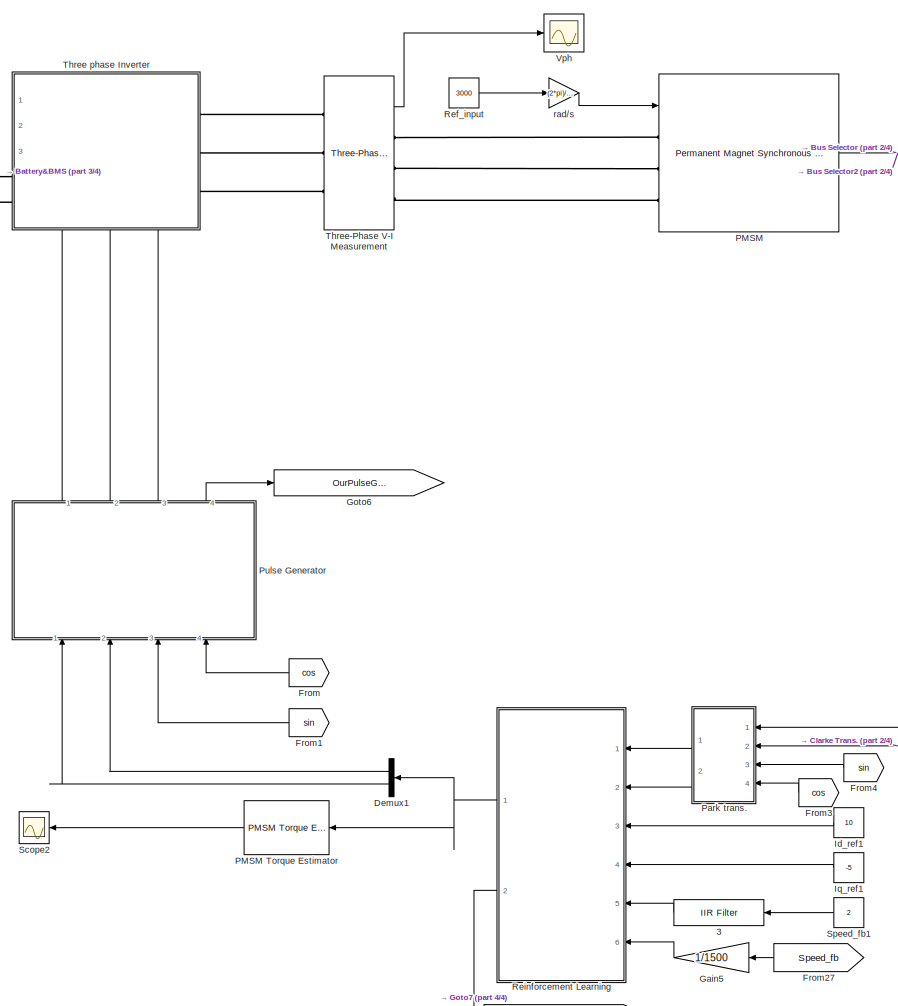
[diagram: root canvas - part 1/4, central region]
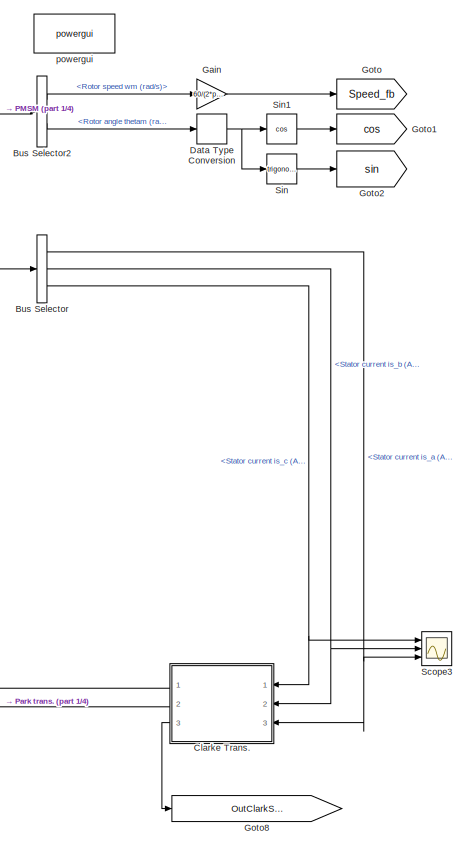
[diagram: root canvas - part 2/4, middle right region]
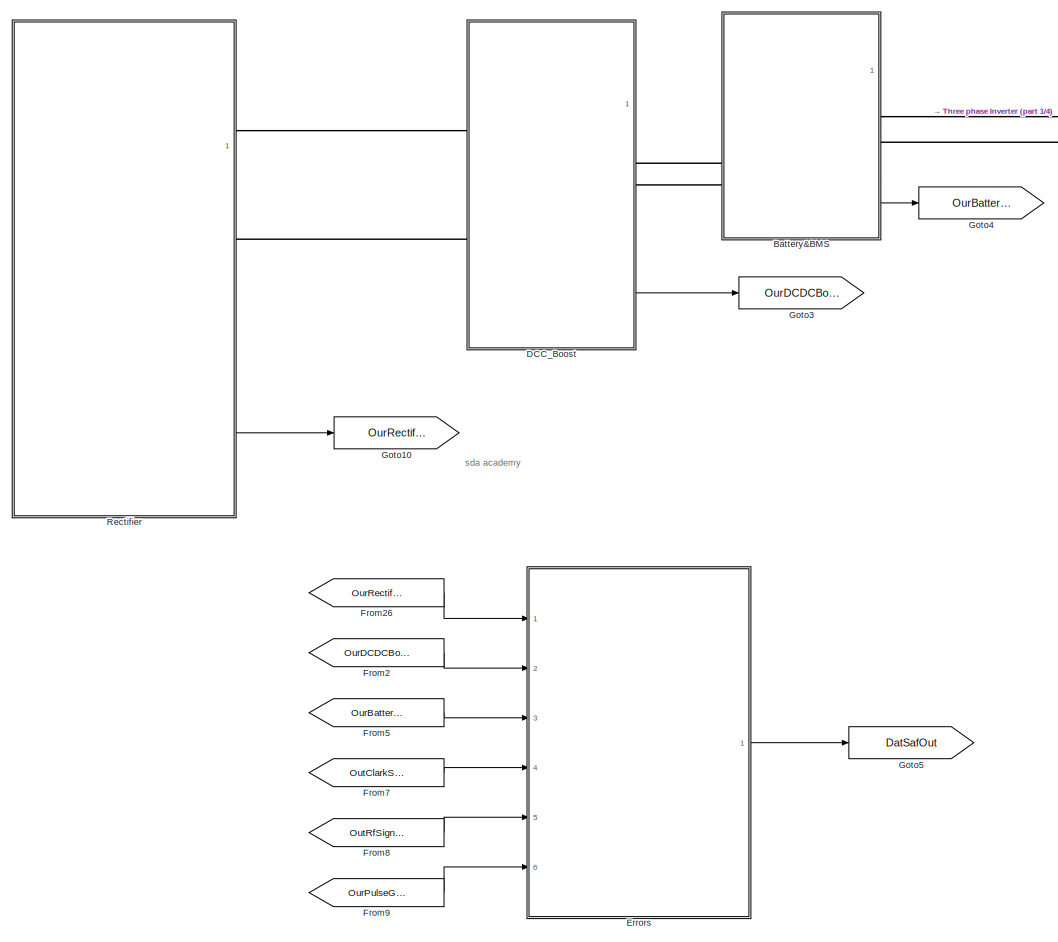
[diagram: root canvas - part 3/4, middle left region]
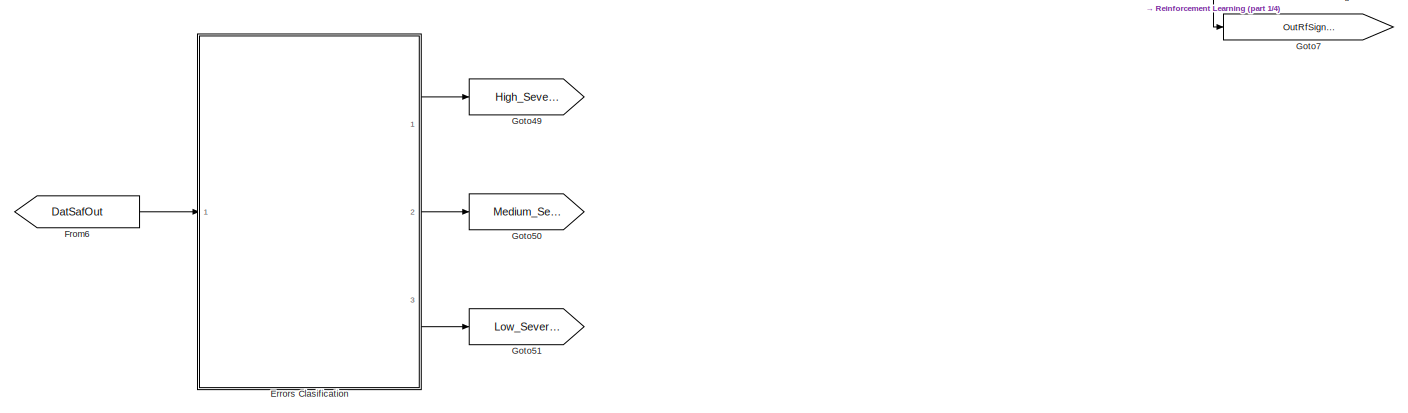
[diagram: root canvas - part 4/4, bottom center region]
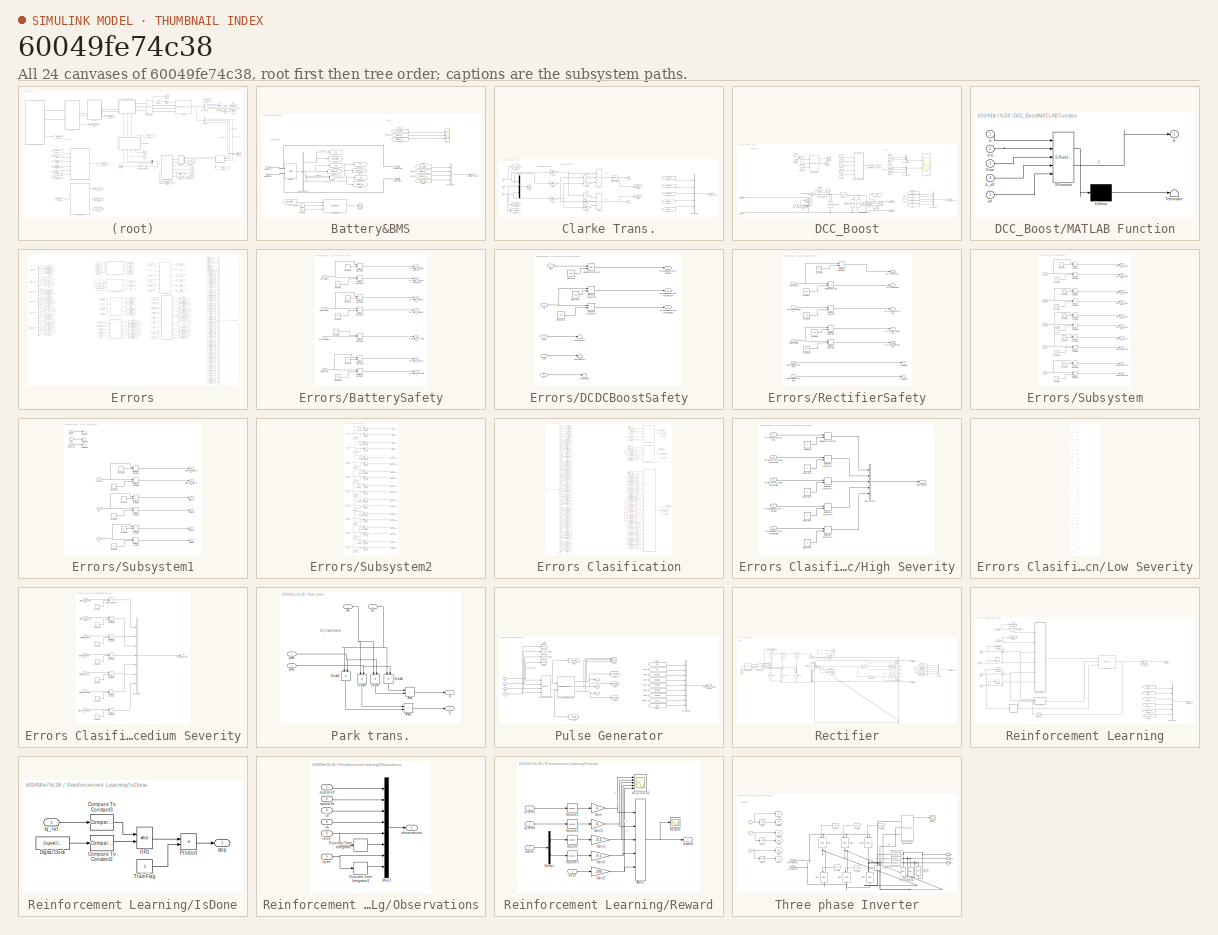
[diagram: thumbnail index - all 24 canvases of the model, root first then tree order]
MODEL slx_60049fe74c38
KIND model
CONFIG AbsTol = auto
CONFIG EnableMultiTasking = off
CONFIG FixedStep = auto
CONFIG MaxStep = auto
CONFIG MinStep = auto
CONFIG RelTol = 1e-3
CONFIG SampleTimeConstraint = Unconstrained
CONFIG SolverName = VariableStepAuto
CONFIG StartTime = 0.0
CONFIG StopTime = 10.0
BLOCK [Reference]    3  REF=mcbcontrolslib/IIR Filter
  Ports = [1, 1]
  SourceBlock = mcbcontrolslib/IIR Filter
  SourceType = IIR Filter
BLOCK [SubSystem] Battery&BMS
  PortSchema = {"entries":[{"content":{"sides":[{"content":{"connectorIds":["LConn1","LConn2"]},"type":"ConnectorPlacement.EquallySpacedRectSide","uuid":"cbc0bb53-0b94-40dd-8246-9b05db34f507"},{"content":{"connectorIds":["RConn1","RConn2","Out1"],"side":"RIGHT"},"type":"ConnectorPlacement.EquallySpacedRectSide","uuid":"2d021873-454e-497b-a321-1833202da2b2"},{"content":{"connectorIds":[],"side":"TOP"},"type":"Con...<+270ch>
  Ports = [0, 1, 0, 0, 0, 2, 2]
BLOCK [PMIOPort] Battery&BMS/+BatteryInput
  Side = Left
BLOCK [PMIOPort] Battery&BMS/+BatteryOutput
  Port = 3
  Side = Right
BLOCK [PMIOPort] Battery&BMS/-BatteryInput
  Port = 2
  Side = Left
BLOCK [PMIOPort] Battery&BMS/-BatteryOutput
  Port = 4
  Side = Right
BLOCK [Reference] Battery&BMS/Battery1  REF=spsBatteryLib/Battery
  Ports = [0, 1, 0, 0, 0, 2]
  SourceBlock = spsBatteryLib/Battery
  SourceType = Battery
BLOCK [BusCreator] Battery&BMS/Bus Creator1
  DisplayOption = bar
  InheritFromInputs = on
  Inputs = 4
  Ports = [4, 1]
BLOCK [BusSelector] Battery&BMS/Bus Selector3
  OutputSignals = SOC (%),Current (A),Voltage (V)
  Ports = [1, 3]
BLOCK [Constant] Battery&BMS/Constant
  SampleTime = -1
  Value = 25
BLOCK [Constant] Battery&BMS/Constant1
  SampleTime = -1
  Value = 0.01
BLOCK [Display] Battery&BMS/Display1
  Decimation = 1
  Ports = [1]
BLOCK [Display] Battery&BMS/Display3
  Decimation = 1
  Ports = [1]
BLOCK [Display] Battery&BMS/Display4
  Decimation = 1
  Ports = [1]
BLOCK [Display] Battery&BMS/Display8
  Decimation = 1
  Ports = [1]
BLOCK [From] Battery&BMS/From
  GotoTag = SOC_Battery
BLOCK [From] Battery&BMS/From1
  GotoTag = Power_Battery
BLOCK [From] Battery&BMS/From28
  GotoTag = Voltage_Battery
BLOCK [From] Battery&BMS/From3
  GotoTag = Voltage_Battery
BLOCK [From] Battery&BMS/From30
  GotoTag = SOC_Battery
BLOCK [From] Battery&BMS/From31
  GotoTag = Current_Battery
BLOCK [From] Battery&BMS/From4
  GotoTag = SOC_Battery
BLOCK [From] Battery&BMS/From5
  GotoTag = Current_Battery
BLOCK [Goto] Battery&BMS/Goto10
  GotoTag = Current_Battery
BLOCK [Goto] Battery&BMS/Goto11
  GotoTag = Voltage_Battery
BLOCK [Goto] Battery&BMS/Goto17
  GotoTag = Power_Battery
BLOCK [Goto] Battery&BMS/Goto9
  GotoTag = SOC_Battery
BLOCK [Outport] Battery&BMS/OurBatterySignals
BLOCK [Product] Battery&BMS/Product3
  Ports = [2, 1]
BLOCK [Reference] Battery&BMS/SOH Estimator  REF=BatteryEstimators/SOH Estimator
  Ports = [3, 1]
  SourceBlock = BatteryEstimators/SOH Estimator
  SourceType = SOH Estimator
BLOCK [Scope] Battery&BMS/Scope
  Floating = off
  NumInputPorts = 3
  Ports = [3]
  ScopeSpecificationString = Simulink.scopes.TimeScopeBlockCfg('CurrentConfiguration', extmgr.ConfigurationSet(extmgr.Configuration('Core','General UI',true),extmgr.Configuration('Core','Source UI',true),extmgr.Configuration('Sources','WiredSimulink',true,'DataLoggingVariableName','ScopeData1'),extmgr.Configuration('Visuals','Time Domain',true,'SerializedDisplays',{struct('MinYLimReal','98.08979','MaxYLimReal','100.21225','YL...<+2834ch>
BLOCK [Scope] Battery&BMS/Scope1
  Floating = off
  NumInputPorts = 1
  Ports = [1]
  ScopeSpecificationString = Simulink.scopes.TimeScopeBlockCfg('CurrentConfiguration', extmgr.ConfigurationSet(extmgr.Configuration('Core','General UI',true),extmgr.Configuration('Core','Source UI',true),extmgr.Configuration('Sources','WiredSimulink',true,'DataLoggingVariableName','ScopeData1'),extmgr.Configuration('Visuals','Time Domain',true,'SerializedDisplays',{struct('MinYLimReal','0.9','MaxYLimReal','1.1','YLabelReal','...<+1338ch>
BLOCK [BusSelector] Bus Selector
  OutputSignals = Stator current is_a (A),Stator current is_b (A),Stator current is_c (A)
  Ports = [1, 3]
BLOCK [BusSelector] Bus Selector2
  OutputSignals = Rotor speed wm (rad/s),Rotor angle thetam (rad)
  Ports = [1, 2]
BLOCK [SubSystem] Clarke Trans.
  Ports = [3, 3]
BLOCK [Sum] Clarke Trans./Add
  AccumDataTypeStr = single
  IconShape = rectangular
  Inputs = +--
  Ports = [3, 1]
BLOCK [Sum] Clarke Trans./Add1
  AccumDataTypeStr = double
  IconShape = rectangular
  Inputs = ++-
  Ports = [3, 1]
BLOCK [Outport] Clarke Trans./Alpha
BLOCK [Outport] Clarke Trans./Beta
  Port = 2
BLOCK [BusCreator] Clarke Trans./Bus Creator1
  DisplayOption = bar
  InheritFromInputs = on
  Inputs = 5
  Ports = [5, 1]
BLOCK [DataTypeConversion] Clarke Trans./Data Type Conversion
  OutDataTypeStr = single
  RndMeth = Floor
  SaturateOnIntegerOverflow = off
BLOCK [From] Clarke Trans./From1
  GotoTag = VbPSMS
BLOCK [From] Clarke Trans./From2
  GotoTag = VcPSMS
BLOCK [From] Clarke Trans./From3
  GotoTag = Valpha_
BLOCK [From] Clarke Trans./From6
  GotoTag = VaPSMS
BLOCK [From] Clarke Trans./From7
  GotoTag = Vbeta_
BLOCK [Gain] Clarke Trans./Gain
  Gain = sqrt(2/3)
BLOCK [Gain] Clarke Trans./Gain1
  Gain = sqrt(2/3)
BLOCK [Gain] Clarke Trans./Gain2
  Gain = sqrt(2/3)
BLOCK [Gain] Clarke Trans./Gain3
  Gain = 1/2
BLOCK [Gain] Clarke Trans./Gain4
  Gain = 1/2
BLOCK [Gain] Clarke Trans./Gain5
  Gain = 0
BLOCK [Gain] Clarke Trans./Gain6
  Gain = (sqrt(3))/2
BLOCK [Gain] Clarke Trans./Gain7
  Gain = (sqrt(3))/2
BLOCK [Goto] Clarke Trans./Goto
  GotoTag = Valpha_
BLOCK [Goto] Clarke Trans./Goto1
  GotoTag = Vbeta_
BLOCK [Goto] Clarke Trans./Goto2
  GotoTag = VcPSMS
BLOCK [Goto] Clarke Trans./Goto3
  GotoTag = VaPSMS
BLOCK [Goto] Clarke Trans./Goto4
  GotoTag = VbPSMS
BLOCK [Mux] Clarke Trans./Mux
  DisplayOption = bar
  Inputs = 3
  Ports = [3, 1]
BLOCK [Outport] Clarke Trans./OutClarkSignals
  Port = 3
BLOCK [Scope] Clarke Trans./Scope
  Floating = off
  NumInputPorts = 1
  Ports = [1]
  ScopeSpecificationString = Simulink.scopes.TimeScopeBlockCfg('CurrentConfiguration', extmgr.ConfigurationSet(extmgr.Configuration('Core','General UI',true),extmgr.Configuration('Core','Source UI',true),extmgr.Configuration('Sources','WiredSimulink',true,'DataLoggingVariableName','ScopeData2'),extmgr.Configuration('Visuals','Time Domain',true,'SerializedDisplays',{struct('MinYLimReal','-1.2435','MaxYLimReal','1.07088','YLabe...<+1391ch>
BLOCK [Inport] Clarke Trans./a
  Port = 3
BLOCK [Inport] Clarke Trans./b
  Port = 2
BLOCK [Inport] Clarke Trans./c
BLOCK [SubSystem] DCC_Boost
  PortSchema = {"entries":[{"content":{"sides":[{"content":{"connectorIds":["LConn1","LConn2"]},"type":"ConnectorPlacement.EquallySpacedRectSide","uuid":"cbc0bb53-0b94-40dd-8246-9b05db34f507"},{"content":{"connectorIds":["RConn1","RConn2","Out1"],"side":"RIGHT"},"type":"ConnectorPlacement.EquallySpacedRectSide","uuid":"2d021873-454e-497b-a321-1833202da2b2"},{"content":{"connectorIds":[],"side":"TOP"},"type":"Con...<+270ch>
  Ports = [0, 1, 0, 0, 0, 2, 2]
BLOCK [PMIOPort] DCC_Boost/+DCCInput
  Side = Left
BLOCK [PMIOPort] DCC_Boost/+DCCOutput
  Port = 3
  Side = Right
BLOCK [PMIOPort] DCC_Boost/-DCCInput
  Port = 2
  Side = Left
BLOCK [PMIOPort] DCC_Boost/-DCCOutput
  Port = 4
  Side = Right
BLOCK [Sum] DCC_Boost/Add2
  IconShape = rectangular
  Inputs = +-
  Ports = [2, 1]
BLOCK [BusCreator] DCC_Boost/Bus Creator1
  DisplayOption = bar
  InheritFromInputs = on
  Inputs = 5
  Ports = [5, 1]
BLOCK [BusCreator] DCC_Boost/Bus Creator2
  DisplayOption = bar
  InheritFromInputs = on
  Inputs = 2
  Ports = [2, 1]
BLOCK [BusCreator] DCC_Boost/Bus Creator3
  DisplayOption = bar
  InheritFromInputs = on
  Inputs = 3
  Ports = [3, 1]
BLOCK [Reference] DCC_Boost/Compare To Zero  REF=simulink/Logic and Bit
Operations/Compare
To Zero
  Ports = [1, 1]
  SourceBlock = simulink/Logic and Bit\nOperations/Compare\nTo Zero
  SourceType = Compare To Zero
BLOCK [Constant] DCC_Boost/Constant6
  Value = 0.3
BLOCK [Constant] DCC_Boost/Constant7
  Value = 10
BLOCK [Constant] DCC_Boost/Constant8
BLOCK [Reference] DCC_Boost/Current Measurement1  REF=spsCurrentMeasurementLib/Current Measurement
  Ports = [0, 1, 0, 0, 0, 1, 1]
  SourceBlock = spsCurrentMeasurementLib/Current Measurement
  SourceType = Current Measurement
  UserDataPersistent = on
BLOCK [Reference] DCC_Boost/Diode8  REF=spsDiodeLib/Diode
  Ports = [0, 0, 0, 0, 0, 1, 1]
  SourceBlock = spsDiodeLib/Diode
  SourceType = Diode
BLOCK [Display] DCC_Boost/Display3
  Decimation = 1
  Ports = [1]
BLOCK [From] DCC_Boost/From1
  GotoTag = Vref
BLOCK [From] DCC_Boost/From2
  GotoTag = S
BLOCK [From] DCC_Boost/From26
  GotoTag = S
BLOCK [From] DCC_Boost/From27
  GotoTag = iL
BLOCK [From] DCC_Boost/From28
  GotoTag = Vref
BLOCK [From] DCC_Boost/From29
  GotoTag = iLref
BLOCK [From] DCC_Boost/From3
  GotoTag = iLref
BLOCK [From] DCC_Boost/From30
  GotoTag = Vin
BLOCK [From] DCC_Boost/From31
  GotoTag = Vout
BLOCK [From] DCC_Boost/From32
  GotoTag = iL
BLOCK [From] DCC_Boost/From33
  GotoTag = Vout
BLOCK [From] DCC_Boost/From34
  GotoTag = Vin
BLOCK [From] DCC_Boost/From35
  GotoTag = iLref
BLOCK [From] DCC_Boost/From36
  GotoTag = Vout
BLOCK [From] DCC_Boost/From4
  GotoTag = Vout
BLOCK [From] DCC_Boost/From5
  GotoTag = Vin
BLOCK [Goto] DCC_Boost/Goto12
  GotoTag = iLref
BLOCK [Goto] DCC_Boost/Goto13
  GotoTag = S
  NameLocation = top
BLOCK [Goto] DCC_Boost/Goto14
  GotoTag = Vin
BLOCK [Goto] DCC_Boost/Goto15
  GotoTag = iL
BLOCK [Goto] DCC_Boost/Goto16
  GotoTag = Vout
BLOCK [Reference] DCC_Boost/IGBT//Diode  REF=spsIGBTDiodeLib/IGBT//Diode
  NameLocation = left
  Ports = [1, 0, 0, 0, 0, 1, 1]
  SourceBlock = spsIGBTDiodeLib/IGBT//Diode
  SourceType = IGBT/Diode
BLOCK [SubSystem] DCC_Boost/MATLAB Function
  ErrorFcn = Stateflow.Translate.translate
  PermitHierarchicalResolution = ExplicitOnly
  Ports = [5, 1]
  SFBlockType = MATLAB Function
  TreatAsAtomicUnit = on
BLOCK [Demux] DCC_Boost/MATLAB Function/ Demux 
  Outputs = 1
  Ports = [1, 1]
BLOCK [S-Function] DCC_Boost/MATLAB Function/ SFunction 
  EnableBusSupport = on
  FunctionName = sf_sfun
  PortCounts = [5 2]
  Ports = [5, 2]
  SFcnIsStateOwnerBlock = off
  SFunctionDeploymentMode = off
  Tag = Stateflow S-Function 2
BLOCK [Terminator] DCC_Boost/MATLAB Function/ Terminator 
BLOCK [Outport] DCC_Boost/MATLAB Function/S
BLOCK [Inport] DCC_Boost/MATLAB Function/Vin
  Port = 2
BLOCK [Inport] DCC_Boost/MATLAB Function/Vout
  Port = 3
BLOCK [Inport] DCC_Boost/MATLAB Function/iL
BLOCK [Inport] DCC_Boost/MATLAB Function/iL_ref
  Port = 4
BLOCK [Inport] DCC_Boost/MATLAB Function/wf
  Port = 5
BLOCK [Outport] DCC_Boost/OurDCDCBoostSignals
BLOCK [Reference] DCC_Boost/PID Controller5  REF=slpidlib/PID Controller
  Ports = [3, 1]
  SourceBlock = slpidlib/PID Controller
  SourceType = PID 1dof
BLOCK [Scope] DCC_Boost/Scope
  Floating = off
  NumInputPorts = 1
  Ports = [1]
  ScopeSpecificationString = Simulink.scopes.TimeScopeBlockCfg('CurrentConfiguration', extmgr.ConfigurationSet(extmgr.Configuration('Core','General UI',true),extmgr.Configuration('Core','Source UI',true),extmgr.Configuration('Sources','WiredSimulink',true,'DataLoggingVariableName','ScopeData1'),extmgr.Configuration('Visuals','Time Domain',true,'SerializedDisplays',{struct('MinYLimReal','478.14255','MaxYLimReal','572.38359','Y...<+1472ch>
BLOCK [Scope] DCC_Boost/Scope1
  Floating = off
  NumInputPorts = 2
  Ports = [2]
  ScopeSpecificationString = Simulink.scopes.TimeScopeBlockCfg('CurrentConfiguration', extmgr.ConfigurationSet(extmgr.Configuration('Core','General UI',true),extmgr.Configuration('Core','Source UI',true),extmgr.Configuration('Sources','WiredSimulink',true,'DataLoggingVariableName','ScopeData2'),extmgr.Configuration('Visuals','Time Domain',true,'SerializedDisplays',{struct('MinYLimReal','-292.21362','MaxYLimReal','117.74429','...<+2871ch>
BLOCK [Scope] DCC_Boost/Scope3
  Floating = off
  NumInputPorts = 1
  Ports = [1]
  ScopeSpecificationString = Simulink.scopes.TimeScopeBlockCfg('CurrentConfiguration', extmgr.ConfigurationSet(extmgr.Configuration('Core','General UI',true),extmgr.Configuration('Core','Source UI',true),extmgr.Configuration('Sources','WiredSimulink',true,'DataLoggingVariableName','ScopeData3'),extmgr.Configuration('Visuals','Time Domain',true,'SerializedDisplays',{struct('MinYLimReal','-2857.92111','MaxYLimReal','1147.35417'...<+1429ch>
BLOCK [Scope] DCC_Boost/Scope7
  Floating = off
  NumInputPorts = 1
  Ports = [1]
  ScopeSpecificationString = Simulink.scopes.TimeScopeBlockCfg('CurrentConfiguration', extmgr.ConfigurationSet(extmgr.Configuration('Core','General UI',true),extmgr.Configuration('Core','Source UI',true),extmgr.Configuration('Sources','WiredSimulink',true,'DataLoggingVariableName','ScopeData10'),extmgr.Configuration('Visuals','Time Domain',true,'SerializedDisplays',{struct('MinYLimReal','-39.10274','MaxYLimReal','985.22764','...<+1719ch>
BLOCK [Reference] DCC_Boost/Series RLC Branch4  REF=spsSeriesRLCBranchLib/Series RLC Branch
  Ports = [0, 0, 0, 0, 0, 1, 1]
  SourceBlock = spsSeriesRLCBranchLib/Series RLC Branch
  SourceType = Series RLC Branch
BLOCK [Reference] DCC_Boost/Series RLC Branch5  REF=spsSeriesRLCBranchLib/Series RLC Branch
  NameLocation = left
  Ports = [0, 0, 0, 0, 0, 1, 1]
  SourceBlock = spsSeriesRLCBranchLib/Series RLC Branch
  SourceType = Series RLC Branch
BLOCK [Reference] DCC_Boost/Series RLC Branch6  REF=spsSeriesRLCBranchLib/Series RLC Branch
  NameLocation = left
  Ports = [0, 0, 0, 0, 0, 1, 1]
  SourceBlock = spsSeriesRLCBranchLib/Series RLC Branch
  SourceType = Series RLC Branch
BLOCK [Reference] DCC_Boost/Voltage Measurement1  REF=spsVoltageMeasurementLib/Voltage Measurement
  Ports = [0, 1, 0, 0, 0, 2]
  SourceBlock = spsVoltageMeasurementLib/Voltage Measurement
  SourceType = Voltage Measurement
  UserDataPersistent = on
BLOCK [Reference] DCC_Boost/Voltage Measurement3  REF=spsVoltageMeasurementLib/Voltage Measurement
  NameLocation = top
  Ports = [0, 1, 0, 0, 0, 2]
  SourceBlock = spsVoltageMeasurementLib/Voltage Measurement
  SourceType = Voltage Measurement
  UserDataPersistent = on
BLOCK [Constant] DCC_Boost/Vref
  Value = 810
BLOCK [DataTypeConversion] Data Type Conversion
  OutDataTypeStr = single
  RndMeth = Floor
  SaturateOnIntegerOverflow = off
BLOCK [Demux] Demux1
  Outputs = 2
  Ports = [1, 2]
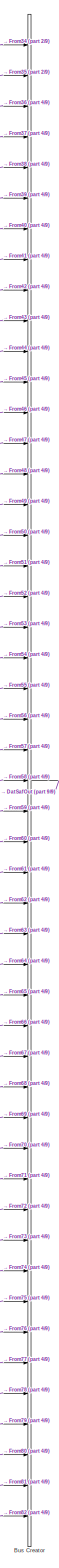
[diagram: Errors - part 1/9, right side, full height]
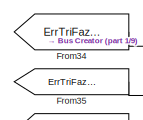
[diagram: Errors - part 2/9, top right region]
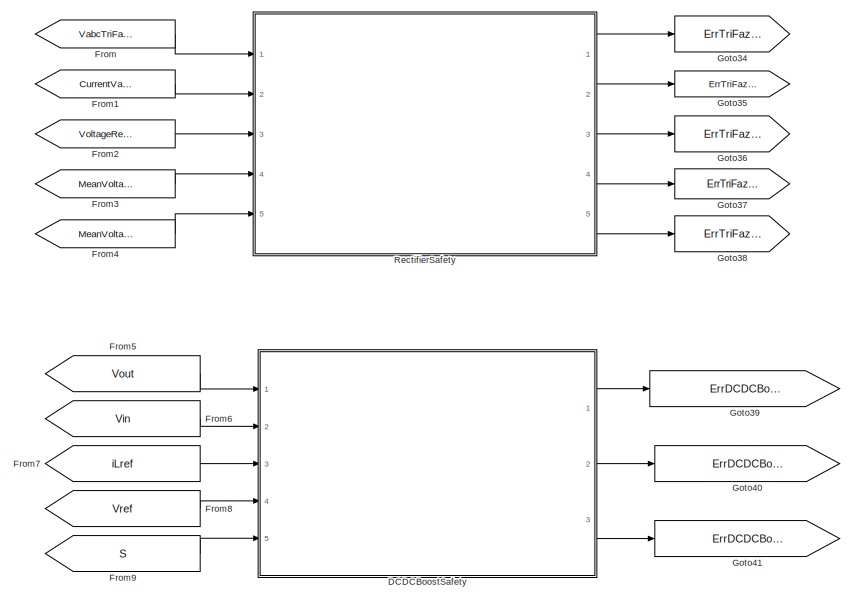
[diagram: Errors - part 3/9, top center region]
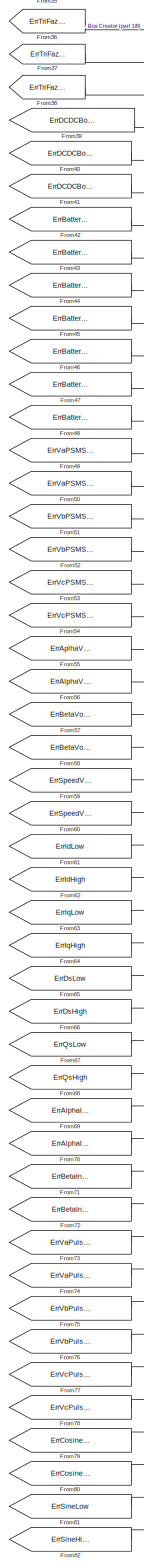
[diagram: Errors - part 4/9, right side, full height]
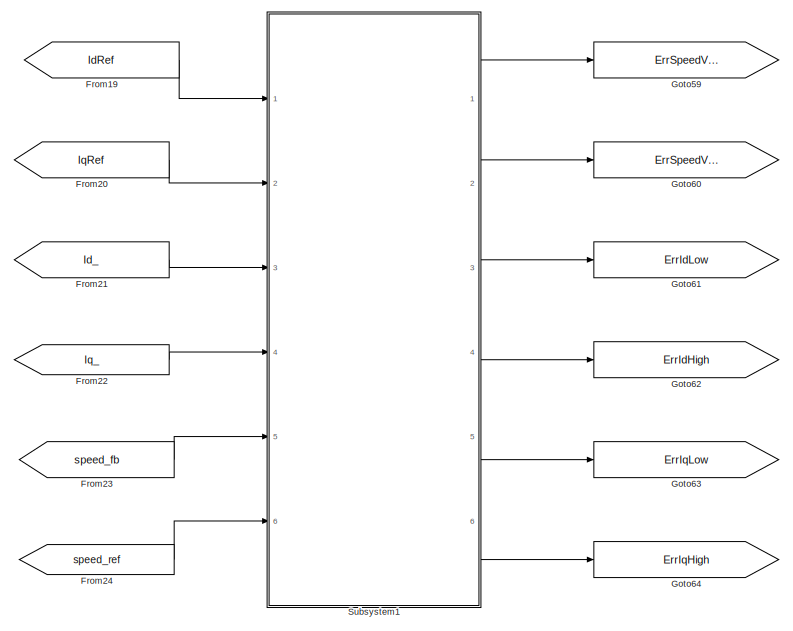
[diagram: Errors - part 5/9, top center region]
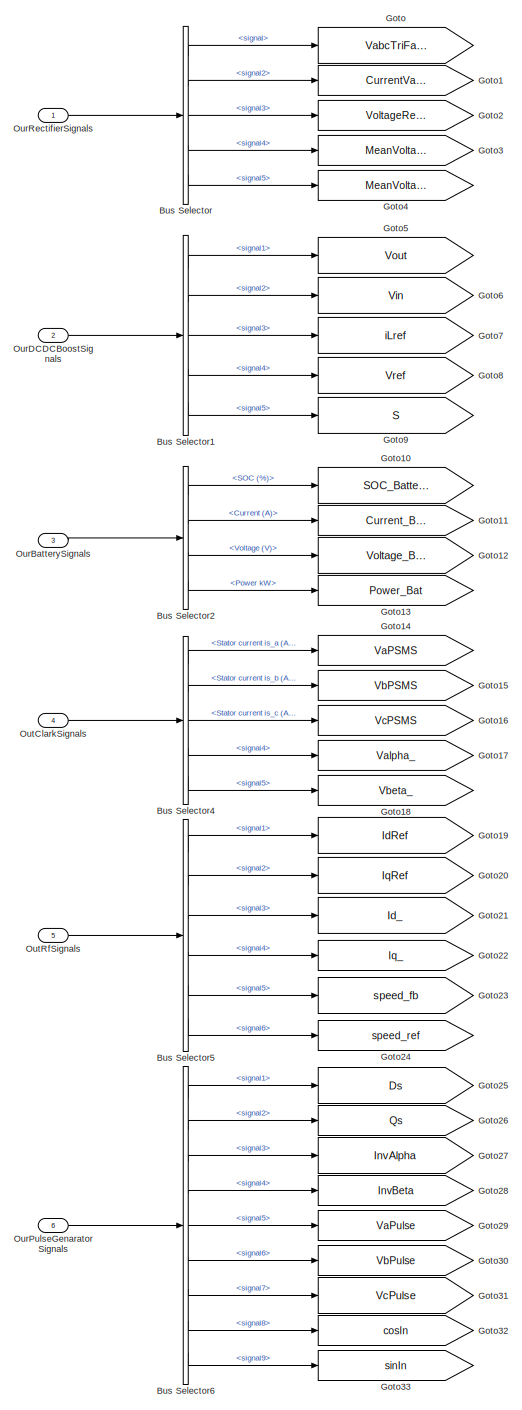
[diagram: Errors - part 6/9, middle left region]
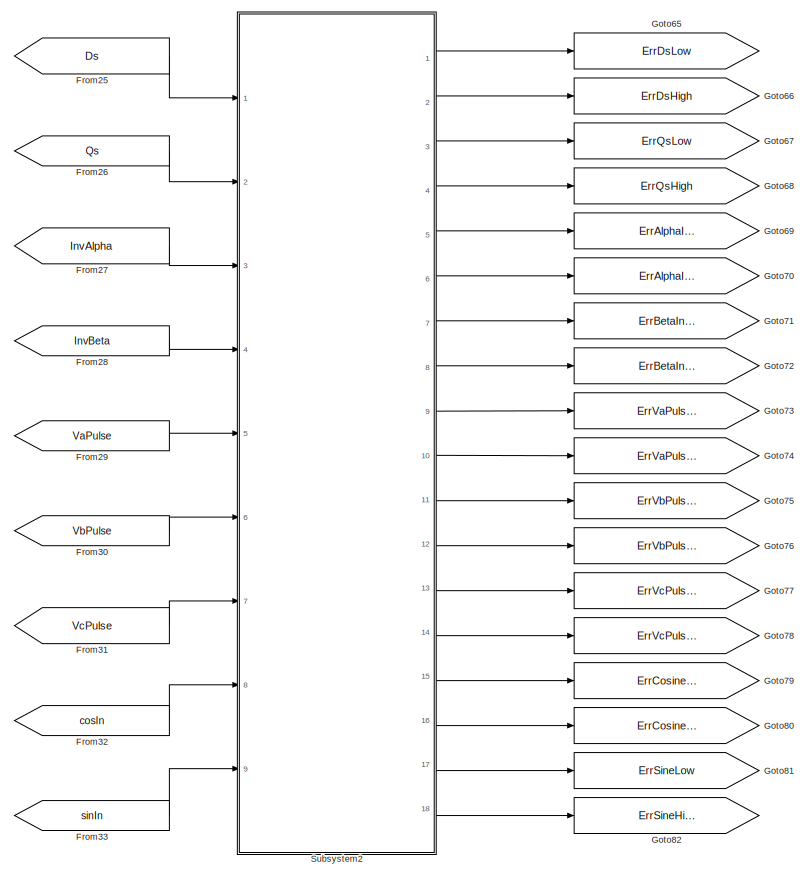
[diagram: Errors - part 7/9, middle right region]
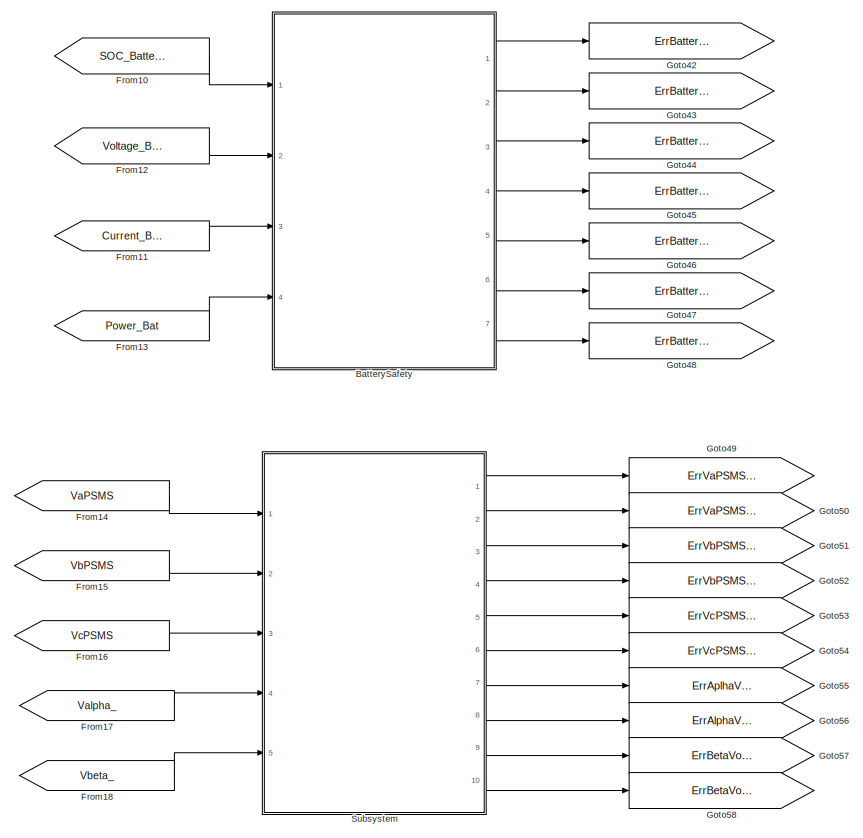
[diagram: Errors - part 8/9, central region]
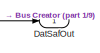
[diagram: Errors - part 9/9, middle right region]
BLOCK [SubSystem] Errors
  Ports = [6, 1]
BLOCK [SubSystem] Errors Clasification
  Ports = [1, 3]
BLOCK [BusSelector] Errors Clasification/Bus Selector
  OutputSignals = signal1,signal2,signal3,signal4,signal5,signal6,signal7,signal8,signal9,signal10,signal11,signal12,signal13,signal14,signal15,signal16,signal17,signal18,signal19,signal20,signal21,signal22,signal23,signal24,signal25,signal26,signal27,signal28,signal29,signal30,signal31,signal32,signal33,signal34,signal35,signal36,signal37,signal38,signal39,signal40,signal41,signal42,signal43,signal44,signal45,sign...<+31ch>
  Ports = [1, 49]
BLOCK [From] Errors Clasification/From
  GotoTag = ErrTriFazicLow
BLOCK [From] Errors Clasification/From1
  GotoTag = ErrTriFazicHigh
BLOCK [From] Errors Clasification/From10
  GotoTag = ErrBatteryVoltageLow
BLOCK [From] Errors Clasification/From11
  GotoTag = ErrBatteryVoltageHigh
BLOCK [From] Errors Clasification/From12
  GotoTag = ErrBatteryCurrentLow
BLOCK [From] Errors Clasification/From13
  GotoTag = ErrBatteryPowerLow
BLOCK [From] Errors Clasification/From14
  GotoTag = ErrVaPSMSVoltageLow
BLOCK [From] Errors Clasification/From15
  GotoTag = ErrVaPSMSVoltageHigh
BLOCK [From] Errors Clasification/From16
  GotoTag = ErrVbPSMSVoltageLow
BLOCK [From] Errors Clasification/From17
  GotoTag = ErrVbPSMSVoltageHigh
BLOCK [From] Errors Clasification/From18
  GotoTag = ErrVcPSMSVoltageLow
BLOCK [From] Errors Clasification/From19
  GotoTag = ErrSpeedVoltageLow
  NameLocation = top
BLOCK [From] Errors Clasification/From2
  GotoTag = ErrTriFazicOverCurrent
BLOCK [From] Errors Clasification/From20
  GotoTag = ErrSpeedVoltageHigh
BLOCK [From] Errors Clasification/From21
  GotoTag = ErrIdLow
BLOCK [From] Errors Clasification/From22
  GotoTag = ErrIdHigh
BLOCK [From] Errors Clasification/From23
  GotoTag = ErrIqLow
BLOCK [From] Errors Clasification/From24
  GotoTag = ErrIqHigh
BLOCK [From] Errors Clasification/From25
  GotoTag = ErrDsLow
BLOCK [From] Errors Clasification/From26
  GotoTag = ErrDsHigh
BLOCK [From] Errors Clasification/From27
  GotoTag = ErrQsLow
BLOCK [From] Errors Clasification/From28
  GotoTag = ErrQsHigh
BLOCK [From] Errors Clasification/From29
  GotoTag = ErrAlphaInvLow
BLOCK [From] Errors Clasification/From3
  GotoTag = ErrTriFazicLowVoltage
BLOCK [From] Errors Clasification/From30
  GotoTag = ErrAlphaInvHigh
BLOCK [From] Errors Clasification/From31
  GotoTag = ErrBetaInvLow
BLOCK [From] Errors Clasification/From32
  GotoTag = ErrBetaInvHigh
BLOCK [From] Errors Clasification/From33
  GotoTag = ErrVaPulseLow
BLOCK [From] Errors Clasification/From34
  GotoTag = ErrBatteryPowerHigh
BLOCK [From] Errors Clasification/From35
  GotoTag = ErrVcPSMSVoltageHigh
BLOCK [From] Errors Clasification/From36
  GotoTag = ErrAplhaVoltageLow
BLOCK [From] Errors Clasification/From37
  GotoTag = ErrAlphaVoltageHigh
BLOCK [From] Errors Clasification/From38
  GotoTag = ErrBetaVoltageLow
BLOCK [From] Errors Clasification/From39
  GotoTag = ErrBetaVoltageHigh
BLOCK [From] Errors Clasification/From4
  GotoTag = ErrTriFazicHighVoltage
BLOCK [From] Errors Clasification/From40
  GotoTag = ErrVaPulseHigh
BLOCK [From] Errors Clasification/From41
  GotoTag = ErrVbPulseLow
BLOCK [From] Errors Clasification/From42
  GotoTag = ErrVbPulseHigh
BLOCK [From] Errors Clasification/From43
  GotoTag = ErrVcPulseLow
BLOCK [From] Errors Clasification/From44
  GotoTag = ErrVcPulseHigh
BLOCK [From] Errors Clasification/From45
  GotoTag = ErrCosineLow
BLOCK [From] Errors Clasification/From46
  GotoTag = ErrCosineHigh
BLOCK [From] Errors Clasification/From47
  GotoTag = ErrSineLow
BLOCK [From] Errors Clasification/From48
  GotoTag = ErrSineHigh
BLOCK [From] Errors Clasification/From5
  GotoTag = ErrDCDCBoostOverVoltage
BLOCK [From] Errors Clasification/From6
  GotoTag = ErrDCDCBoostInputVoltageLow
BLOCK [From] Errors Clasification/From7
  GotoTag = ErrDCDCBoostInputVoltageHigh
BLOCK [From] Errors Clasification/From8
  GotoTag = ErrBatterySOCMallfunctionLow
BLOCK [From] Errors Clasification/From9
  GotoTag = ErrBatterySOCMallfunctionHigh
BLOCK [Goto] Errors Clasification/Goto
  GotoTag = ErrTriFazicLow
BLOCK [Goto] Errors Clasification/Goto1
  GotoTag = ErrTriFazicHigh
BLOCK [Goto] Errors Clasification/Goto10
  GotoTag = ErrBatteryVoltageLow
BLOCK [Goto] Errors Clasification/Goto11
  GotoTag = ErrBatteryVoltageHigh
BLOCK [Goto] Errors Clasification/Goto12
  GotoTag = ErrBatteryCurrentLow
BLOCK [Goto] Errors Clasification/Goto13
  GotoTag = ErrBatteryPowerLow
BLOCK [Goto] Errors Clasification/Goto14
  GotoTag = ErrBatteryPowerHigh
BLOCK [Goto] Errors Clasification/Goto15
  GotoTag = ErrVaPSMSVoltageLow
BLOCK [Goto] Errors Clasification/Goto16
  GotoTag = ErrVaPSMSVoltageHigh
BLOCK [Goto] Errors Clasification/Goto17
  GotoTag = ErrVbPSMSVoltageLow
BLOCK [Goto] Errors Clasification/Goto18
  GotoTag = ErrVbPSMSVoltageHigh
BLOCK [Goto] Errors Clasification/Goto19
  GotoTag = ErrVcPSMSVoltageLow
BLOCK [Goto] Errors Clasification/Goto2
  GotoTag = ErrTriFazicOverCurrent
BLOCK [Goto] Errors Clasification/Goto20
  GotoTag = ErrVcPSMSVoltageHigh
BLOCK [Goto] Errors Clasification/Goto21
  GotoTag = ErrAplhaVoltageLow
BLOCK [Goto] Errors Clasification/Goto22
  GotoTag = ErrAlphaVoltageHigh
BLOCK [Goto] Errors Clasification/Goto23
  GotoTag = ErrBetaVoltageLow
BLOCK [Goto] Errors Clasification/Goto24
  GotoTag = ErrBetaVoltageHigh
BLOCK [Goto] Errors Clasification/Goto25
  GotoTag = ErrSpeedVoltageLow
BLOCK [Goto] Errors Clasification/Goto26
  GotoTag = ErrSpeedVoltageHigh
BLOCK [Goto] Errors Clasification/Goto27
  GotoTag = ErrIdLow
BLOCK [Goto] Errors Clasification/Goto28
  GotoTag = ErrIdHigh
BLOCK [Goto] Errors Clasification/Goto29
  GotoTag = ErrIqLow
BLOCK [Goto] Errors Clasification/Goto3
  GotoTag = ErrTriFazicLowVoltage
BLOCK [Goto] Errors Clasification/Goto30
  GotoTag = ErrIqHigh
BLOCK [Goto] Errors Clasification/Goto31
  GotoTag = ErrDsLow
BLOCK [Goto] Errors Clasification/Goto32
  GotoTag = ErrDsHigh
BLOCK [Goto] Errors Clasification/Goto33
  GotoTag = ErrQsLow
BLOCK [Goto] Errors Clasification/Goto34
  GotoTag = ErrQsHigh
BLOCK [Goto] Errors Clasification/Goto35
  GotoTag = ErrAlphaInvLow
BLOCK [Goto] Errors Clasification/Goto36
  GotoTag = ErrAlphaInvHigh
BLOCK [Goto] Errors Clasification/Goto37
  GotoTag = ErrBetaInvLow
BLOCK [Goto] Errors Clasification/Goto38
  GotoTag = ErrBetaInvHigh
BLOCK [Goto] Errors Clasification/Goto39
  GotoTag = ErrVaPulseLow
BLOCK [Goto] Errors Clasification/Goto4
  GotoTag = ErrTriFazicHighVoltage
BLOCK [Goto] Errors Clasification/Goto40
  GotoTag = ErrVaPulseHigh
BLOCK [Goto] Errors Clasification/Goto41
  GotoTag = ErrVbPulseLow
BLOCK [Goto] Errors Clasification/Goto42
  GotoTag = ErrVbPulseHigh
BLOCK [Goto] Errors Clasification/Goto43
  GotoTag = ErrVcPulseLow
BLOCK [Goto] Errors Clasification/Goto44
  GotoTag = ErrVcPulseHigh
BLOCK [Goto] Errors Clasification/Goto45
  GotoTag = ErrCosineLow
BLOCK [Goto] Errors Clasification/Goto46
  GotoTag = ErrCosineHigh
BLOCK [Goto] Errors Clasification/Goto47
  GotoTag = ErrSineLow
BLOCK [Goto] Errors Clasification/Goto48
  GotoTag = ErrSineHigh
BLOCK [Goto] Errors Clasification/Goto49
  GotoTag = High_Severity
BLOCK [Goto] Errors Clasification/Goto5
  GotoTag = ErrDCDCBoostOverVoltage
BLOCK [Goto] Errors Clasification/Goto50
  GotoTag = Medium_Severity
BLOCK [Goto] Errors Clasification/Goto51
  GotoTag = Low_Severity
BLOCK [Goto] Errors Clasification/Goto6
  GotoTag = ErrDCDCBoostInputVoltageLow
BLOCK [Goto] Errors Clasification/Goto7
  GotoTag = ErrDCDCBoostInputVoltageHigh
BLOCK [Goto] Errors Clasification/Goto8
  GotoTag = ErrBatterySOCMallfunctionLow
BLOCK [Goto] Errors Clasification/Goto9
  GotoTag = ErrBatterySOCMallfunctionHigh
BLOCK [SubSystem] Errors Clasification/High Severity
  Ports = [5, 1]
BLOCK [BusCreator] Errors Clasification/High Severity/Bus Creator
  DisplayOption = bar
  InheritFromInputs = on
  Inputs = 5
  Ports = [5, 1]
BLOCK [Constant] Errors Clasification/High Severity/Constant
  SampleTime = -1
  Value = 0
BLOCK [Constant] Errors Clasification/High Severity/Constant1
  SampleTime = -1
  Value = 0
BLOCK [Constant] Errors Clasification/High Severity/Constant2
  SampleTime = -1
  Value = 0
BLOCK [Constant] Errors Clasification/High Severity/Constant3
  SampleTime = -1
  Value = 0
BLOCK [Constant] Errors Clasification/High Severity/Constant4
  SampleTime = -1
  Value = 0
BLOCK [Inport] Errors Clasification/High Severity/ErrBatterySOCMallfunctionHigh
  Port = 3
BLOCK [Inport] Errors Clasification/High Severity/ErrBatterySOCMallfunctionLow
  Port = 2
BLOCK [Inport] Errors Clasification/High Severity/ErrDCDCBoostInputVoltageHigh
  Port = 5
BLOCK [Inport] Errors Clasification/High Severity/ErrDCDCBoostOverVoltage
  Port = 4
BLOCK [Inport] Errors Clasification/High Severity/ErrTriFazicOverCurrent
BLOCK [Outport] Errors Clasification/High Severity/High_Severity
BLOCK [RelationalOperator] Errors Clasification/High Severity/Relational Operator
  InputSameDT = off
  Operator = >
  OutDataTypeStr = boolean
  Ports = [2, 1]
  RndMeth = Simplest
BLOCK [RelationalOperator] Errors Clasification/High Severity/Relational Operator1
  InputSameDT = off
  Operator = >
  OutDataTypeStr = boolean
  Ports = [2, 1]
  RndMeth = Simplest
BLOCK [RelationalOperator] Errors Clasification/High Severity/Relational Operator2
  InputSameDT = off
  Operator = >
  OutDataTypeStr = boolean
  Ports = [2, 1]
  RndMeth = Simplest
BLOCK [RelationalOperator] Errors Clasification/High Severity/Relational Operator3
  InputSameDT = off
  Operator = >
  OutDataTypeStr = boolean
  Ports = [2, 1]
  RndMeth = Simplest
BLOCK [RelationalOperator] Errors Clasification/High Severity/Relational Operator4
  InputSameDT = off
  Operator = >
  OutDataTypeStr = boolean
  Ports = [2, 1]
  RndMeth = Simplest
BLOCK [Outport] Errors Clasification/High_Severity
BLOCK [Inport] Errors Clasification/In1
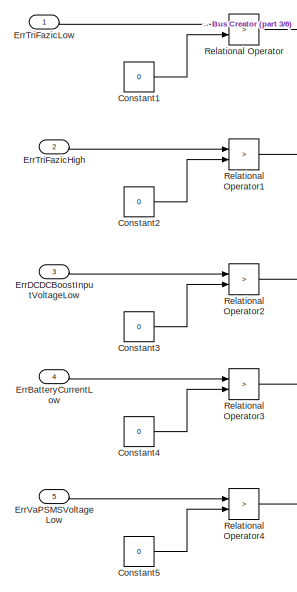
[diagram: Errors Clasification/Low Severity - part 1/6, top left region]
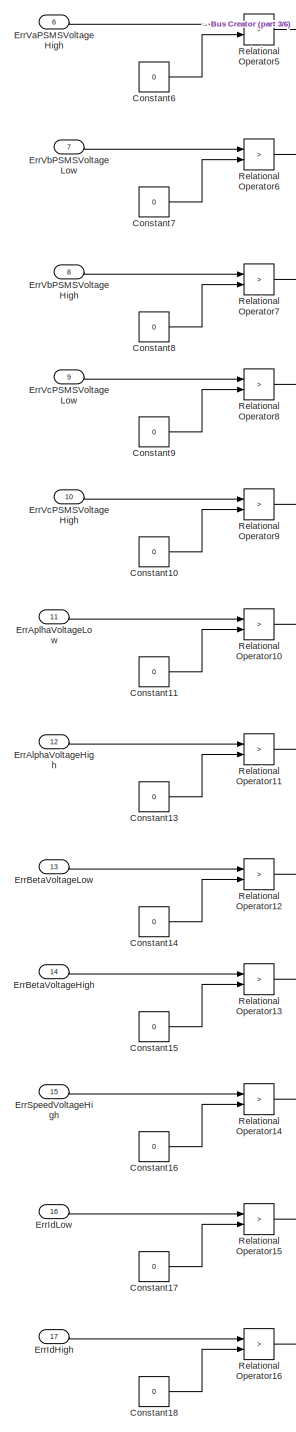
[diagram: Errors Clasification/Low Severity - part 2/6, top left region]
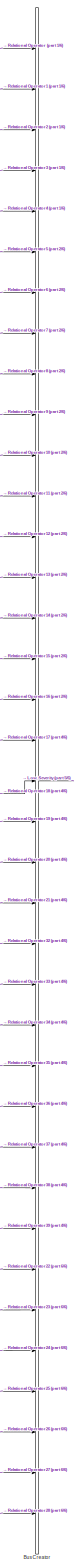
[diagram: Errors Clasification/Low Severity - part 3/6, middle right region]
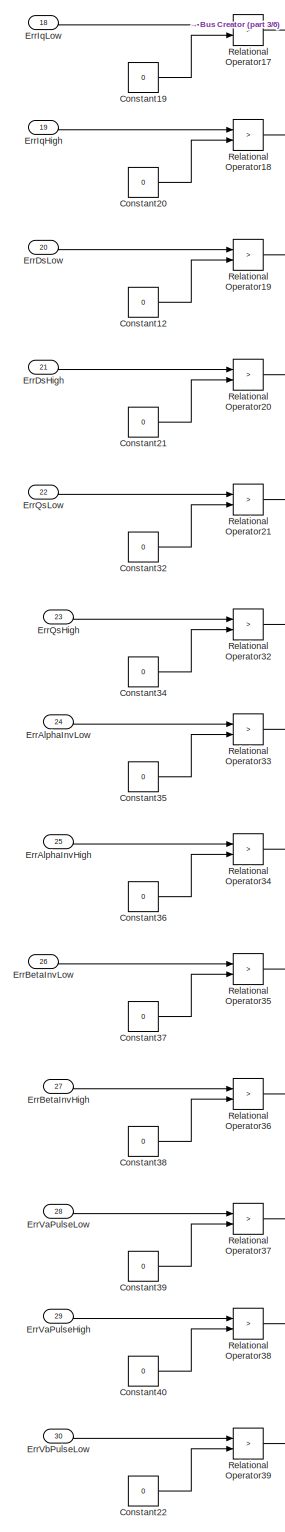
[diagram: Errors Clasification/Low Severity - part 4/6, middle left region]
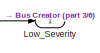
[diagram: Errors Clasification/Low Severity - part 5/6, middle right region]
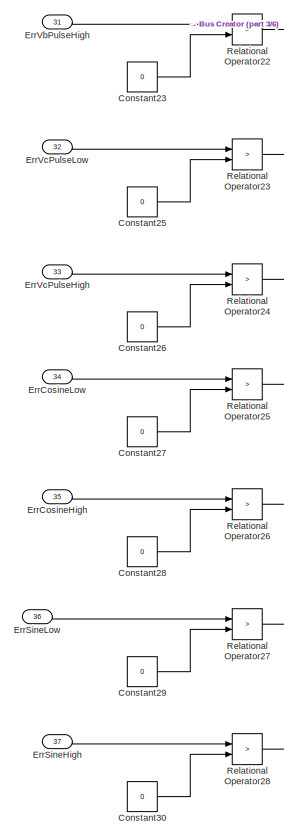
[diagram: Errors Clasification/Low Severity - part 6/6, bottom left region]
BLOCK [SubSystem] Errors Clasification/Low Severity
  Ports = [37, 1]
BLOCK [BusCreator] Errors Clasification/Low Severity/Bus Creator
  DisplayOption = bar
  InheritFromInputs = on
  Inputs = 37
  Ports = [37, 1]
BLOCK [Constant] Errors Clasification/Low Severity/Constant1
  SampleTime = -1
  Value = 0
BLOCK [Constant] Errors Clasification/Low Severity/Constant10
  SampleTime = -1
  Value = 0
BLOCK [Constant] Errors Clasification/Low Severity/Constant11
  SampleTime = -1
  Value = 0
BLOCK [Constant] Errors Clasification/Low Severity/Constant12
  SampleTime = -1
  Value = 0
BLOCK [Constant] Errors Clasification/Low Severity/Constant13
  SampleTime = -1
  Value = 0
BLOCK [Constant] Errors Clasification/Low Severity/Constant14
  SampleTime = -1
  Value = 0
BLOCK [Constant] Errors Clasification/Low Severity/Constant15
  SampleTime = -1
  Value = 0
BLOCK [Constant] Errors Clasification/Low Severity/Constant16
  SampleTime = -1
  Value = 0
BLOCK [Constant] Errors Clasification/Low Severity/Constant17
  SampleTime = -1
  Value = 0
BLOCK [Constant] Errors Clasification/Low Severity/Constant18
  SampleTime = -1
  Value = 0
BLOCK [Constant] Errors Clasification/Low Severity/Constant19
  SampleTime = -1
  Value = 0
BLOCK [Constant] Errors Clasification/Low Severity/Constant2
  SampleTime = -1
  Value = 0
BLOCK [Constant] Errors Clasification/Low Severity/Constant20
  SampleTime = -1
  Value = 0
BLOCK [Constant] Errors Clasification/Low Severity/Constant21
  SampleTime = -1
  Value = 0
BLOCK [Constant] Errors Clasification/Low Severity/Constant22
  SampleTime = -1
  Value = 0
BLOCK [Constant] Errors Clasification/Low Severity/Constant23
  SampleTime = -1
  Value = 0
BLOCK [Constant] Errors Clasification/Low Severity/Constant25
  SampleTime = -1
  Value = 0
BLOCK [Constant] Errors Clasification/Low Severity/Constant26
  SampleTime = -1
  Value = 0
BLOCK [Constant] Errors Clasification/Low Severity/Constant27
  SampleTime = -1
  Value = 0
BLOCK [Constant] Errors Clasification/Low Severity/Constant28
  SampleTime = -1
  Value = 0
BLOCK [Constant] Errors Clasification/Low Severity/Constant29
  SampleTime = -1
  Value = 0
BLOCK [Constant] Errors Clasification/Low Severity/Constant3
  SampleTime = -1
  Value = 0
BLOCK [Constant] Errors Clasification/Low Severity/Constant30
  SampleTime = -1
  Value = 0
BLOCK [Constant] Errors Clasification/Low Severity/Constant32
  SampleTime = -1
  Value = 0
BLOCK [Constant] Errors Clasification/Low Severity/Constant34
  SampleTime = -1
  Value = 0
BLOCK [Constant] Errors Clasification/Low Severity/Constant35
  SampleTime = -1
  Value = 0
BLOCK [Constant] Errors Clasification/Low Severity/Constant36
  SampleTime = -1
  Value = 0
BLOCK [Constant] Errors Clasification/Low Severity/Constant37
  SampleTime = -1
  Value = 0
BLOCK [Constant] Errors Clasification/Low Severity/Constant38
  SampleTime = -1
  Value = 0
BLOCK [Constant] Errors Clasification/Low Severity/Constant39
  SampleTime = -1
  Value = 0
BLOCK [Constant] Errors Clasification/Low Severity/Constant4
  SampleTime = -1
  Value = 0
BLOCK [Constant] Errors Clasification/Low Severity/Constant40
  SampleTime = -1
  Value = 0
BLOCK [Constant] Errors Clasification/Low Severity/Constant5
  SampleTime = -1
  Value = 0
BLOCK [Constant] Errors Clasification/Low Severity/Constant6
  SampleTime = -1
  Value = 0
BLOCK [Constant] Errors Clasification/Low Severity/Constant7
  SampleTime = -1
  Value = 0
BLOCK [Constant] Errors Clasification/Low Severity/Constant8
  SampleTime = -1
  Value = 0
BLOCK [Constant] Errors Clasification/Low Severity/Constant9
  SampleTime = -1
  Value = 0
BLOCK [Inport] Errors Clasification/Low Severity/ErrAlphaInvHigh
  Port = 25
BLOCK [Inport] Errors Clasification/Low Severity/ErrAlphaInvLow
  Port = 24
BLOCK [Inport] Errors Clasification/Low Severity/ErrAlphaVoltageHigh
  Port = 12
BLOCK [Inport] Errors Clasification/Low Severity/ErrAplhaVoltageLow
  Port = 11
BLOCK [Inport] Errors Clasification/Low Severity/ErrBatteryCurrentLow
  Port = 4
BLOCK [Inport] Errors Clasification/Low Severity/ErrBetaInvHigh
  Port = 27
BLOCK [Inport] Errors Clasification/Low Severity/ErrBetaInvLow
  Port = 26
BLOCK [Inport] Errors Clasification/Low Severity/ErrBetaVoltageHigh
  Port = 14
BLOCK [Inport] Errors Clasification/Low Severity/ErrBetaVoltageLow
  Port = 13
BLOCK [Inport] Errors Clasification/Low Severity/ErrCosineHigh
  Port = 35
BLOCK [Inport] Errors Clasification/Low Severity/ErrCosineLow
  Port = 34
BLOCK [Inport] Errors Clasification/Low Severity/ErrDCDCBoostInputVoltageLow
  Port = 3
BLOCK [Inport] Errors Clasification/Low Severity/ErrDsHigh
  Port = 21
BLOCK [Inport] Errors Clasification/Low Severity/ErrDsLow
  Port = 20
BLOCK [Inport] Errors Clasification/Low Severity/ErrIdHigh
  Port = 17
BLOCK [Inport] Errors Clasification/Low Severity/ErrIdLow
  Port = 16
BLOCK [Inport] Errors Clasification/Low Severity/ErrIqHigh
  Port = 19
BLOCK [Inport] Errors Clasification/Low Severity/ErrIqLow
  Port = 18
BLOCK [Inport] Errors Clasification/Low Severity/ErrQsHigh
  Port = 23
BLOCK [Inport] Errors Clasification/Low Severity/ErrQsLow
  Port = 22
BLOCK [Inport] Errors Clasification/Low Severity/ErrSineHigh
  Port = 37
BLOCK [Inport] Errors Clasification/Low Severity/ErrSineLow
  Port = 36
BLOCK [Inport] Errors Clasification/Low Severity/ErrSpeedVoltageHigh
  Port = 15
BLOCK [Inport] Errors Clasification/Low Severity/ErrTriFazicHigh
  Port = 2
BLOCK [Inport] Errors Clasification/Low Severity/ErrTriFazicLow
BLOCK [Inport] Errors Clasification/Low Severity/ErrVaPSMSVoltageHigh
  Port = 6
BLOCK [Inport] Errors Clasification/Low Severity/ErrVaPSMSVoltageLow
  Port = 5
BLOCK [Inport] Errors Clasification/Low Severity/ErrVaPulseHigh
  Port = 29
BLOCK [Inport] Errors Clasification/Low Severity/ErrVaPulseLow
  Port = 28
BLOCK [Inport] Errors Clasification/Low Severity/ErrVbPSMSVoltageHigh
  Port = 8
BLOCK [Inport] Errors Clasification/Low Severity/ErrVbPSMSVoltageLow
  Port = 7
BLOCK [Inport] Errors Clasification/Low Severity/ErrVbPulseHigh
  Port = 31
BLOCK [Inport] Errors Clasification/Low Severity/ErrVbPulseLow
  Port = 30
BLOCK [Inport] Errors Clasification/Low Severity/ErrVcPSMSVoltageHigh
  Port = 10
BLOCK [Inport] Errors Clasification/Low Severity/ErrVcPSMSVoltageLow
  Port = 9
BLOCK [Inport] Errors Clasification/Low Severity/ErrVcPulseHigh
  Port = 33
BLOCK [Inport] Errors Clasification/Low Severity/ErrVcPulseLow
  Port = 32
BLOCK [Outport] Errors Clasification/Low Severity/Low_Severity
BLOCK [RelationalOperator] Errors Clasification/Low Severity/Relational Operator
  InputSameDT = off
  Operator = >
  OutDataTypeStr = boolean
  Ports = [2, 1]
  RndMeth = Simplest
BLOCK [RelationalOperator] Errors Clasification/Low Severity/Relational Operator1
  InputSameDT = off
  Operator = >
  OutDataTypeStr = boolean
  Ports = [2, 1]
  RndMeth = Simplest
BLOCK [RelationalOperator] Errors Clasification/Low Severity/Relational Operator10
  InputSameDT = off
  Operator = >
  OutDataTypeStr = boolean
  Ports = [2, 1]
  RndMeth = Simplest
BLOCK [RelationalOperator] Errors Clasification/Low Severity/Relational Operator11
  InputSameDT = off
  Operator = >
  OutDataTypeStr = boolean
  Ports = [2, 1]
  RndMeth = Simplest
BLOCK [RelationalOperator] Errors Clasification/Low Severity/Relational Operator12
  InputSameDT = off
  Operator = >
  OutDataTypeStr = boolean
  Ports = [2, 1]
  RndMeth = Simplest
BLOCK [RelationalOperator] Errors Clasification/Low Severity/Relational Operator13
  InputSameDT = off
  Operator = >
  OutDataTypeStr = boolean
  Ports = [2, 1]
  RndMeth = Simplest
BLOCK [RelationalOperator] Errors Clasification/Low Severity/Relational Operator14
  InputSameDT = off
  Operator = >
  OutDataTypeStr = boolean
  Ports = [2, 1]
  RndMeth = Simplest
BLOCK [RelationalOperator] Errors Clasification/Low Severity/Relational Operator15
  InputSameDT = off
  Operator = >
  OutDataTypeStr = boolean
  Ports = [2, 1]
  RndMeth = Simplest
BLOCK [RelationalOperator] Errors Clasification/Low Severity/Relational Operator16
  InputSameDT = off
  Operator = >
  OutDataTypeStr = boolean
  Ports = [2, 1]
  RndMeth = Simplest
BLOCK [RelationalOperator] Errors Clasification/Low Severity/Relational Operator17
  InputSameDT = off
  Operator = >
  OutDataTypeStr = boolean
  Ports = [2, 1]
  RndMeth = Simplest
BLOCK [RelationalOperator] Errors Clasification/Low Severity/Relational Operator18
  InputSameDT = off
  Operator = >
  OutDataTypeStr = boolean
  Ports = [2, 1]
  RndMeth = Simplest
BLOCK [RelationalOperator] Errors Clasification/Low Severity/Relational Operator19
  InputSameDT = off
  Operator = >
  OutDataTypeStr = boolean
  Ports = [2, 1]
  RndMeth = Simplest
BLOCK [RelationalOperator] Errors Clasification/Low Severity/Relational Operator2
  InputSameDT = off
  Operator = >
  OutDataTypeStr = boolean
  Ports = [2, 1]
  RndMeth = Simplest
BLOCK [RelationalOperator] Errors Clasification/Low Severity/Relational Operator20
  InputSameDT = off
  Operator = >
  OutDataTypeStr = boolean
  Ports = [2, 1]
  RndMeth = Simplest
BLOCK [RelationalOperator] Errors Clasification/Low Severity/Relational Operator21
  InputSameDT = off
  Operator = >
  OutDataTypeStr = boolean
  Ports = [2, 1]
  RndMeth = Simplest
BLOCK [RelationalOperator] Errors Clasification/Low Severity/Relational Operator22
  InputSameDT = off
  Operator = >
  OutDataTypeStr = boolean
  Ports = [2, 1]
  RndMeth = Simplest
BLOCK [RelationalOperator] Errors Clasification/Low Severity/Relational Operator23
  InputSameDT = off
  Operator = >
  OutDataTypeStr = boolean
  Ports = [2, 1]
  RndMeth = Simplest
BLOCK [RelationalOperator] Errors Clasification/Low Severity/Relational Operator24
  InputSameDT = off
  Operator = >
  OutDataTypeStr = boolean
  Ports = [2, 1]
  RndMeth = Simplest
BLOCK [RelationalOperator] Errors Clasification/Low Severity/Relational Operator25
  InputSameDT = off
  Operator = >
  OutDataTypeStr = boolean
  Ports = [2, 1]
  RndMeth = Simplest
BLOCK [RelationalOperator] Errors Clasification/Low Severity/Relational Operator26
  InputSameDT = off
  Operator = >
  OutDataTypeStr = boolean
  Ports = [2, 1]
  RndMeth = Simplest
BLOCK [RelationalOperator] Errors Clasification/Low Severity/Relational Operator27
  InputSameDT = off
  Operator = >
  OutDataTypeStr = boolean
  Ports = [2, 1]
  RndMeth = Simplest
BLOCK [RelationalOperator] Errors Clasification/Low Severity/Relational Operator28
  InputSameDT = off
  Operator = >
  OutDataTypeStr = boolean
  Ports = [2, 1]
  RndMeth = Simplest
BLOCK [RelationalOperator] Errors Clasification/Low Severity/Relational Operator3
  InputSameDT = off
  Operator = >
  OutDataTypeStr = boolean
  Ports = [2, 1]
  RndMeth = Simplest
BLOCK [RelationalOperator] Errors Clasification/Low Severity/Relational Operator32
  InputSameDT = off
  Operator = >
  OutDataTypeStr = boolean
  Ports = [2, 1]
  RndMeth = Simplest
BLOCK [RelationalOperator] Errors Clasification/Low Severity/Relational Operator33
  InputSameDT = off
  Operator = >
  OutDataTypeStr = boolean
  Ports = [2, 1]
  RndMeth = Simplest
BLOCK [RelationalOperator] Errors Clasification/Low Severity/Relational Operator34
  InputSameDT = off
  Operator = >
  OutDataTypeStr = boolean
  Ports = [2, 1]
  RndMeth = Simplest
BLOCK [RelationalOperator] Errors Clasification/Low Severity/Relational Operator35
  InputSameDT = off
  Operator = >
  OutDataTypeStr = boolean
  Ports = [2, 1]
  RndMeth = Simplest
BLOCK [RelationalOperator] Errors Clasification/Low Severity/Relational Operator36
  InputSameDT = off
  Operator = >
  OutDataTypeStr = boolean
  Ports = [2, 1]
  RndMeth = Simplest
BLOCK [RelationalOperator] Errors Clasification/Low Severity/Relational Operator37
  InputSameDT = off
  Operator = >
  OutDataTypeStr = boolean
  Ports = [2, 1]
  RndMeth = Simplest
BLOCK [RelationalOperator] Errors Clasification/Low Severity/Relational Operator38
  InputSameDT = off
  Operator = >
  OutDataTypeStr = boolean
  Ports = [2, 1]
  RndMeth = Simplest
BLOCK [RelationalOperator] Errors Clasification/Low Severity/Relational Operator39
  InputSameDT = off
  Operator = >
  OutDataTypeStr = boolean
  Ports = [2, 1]
  RndMeth = Simplest
BLOCK [RelationalOperator] Errors Clasification/Low Severity/Relational Operator4
  InputSameDT = off
  Operator = >
  OutDataTypeStr = boolean
  Ports = [2, 1]
  RndMeth = Simplest
BLOCK [RelationalOperator] Errors Clasification/Low Severity/Relational Operator5
  InputSameDT = off
  Operator = >
  OutDataTypeStr = boolean
  Ports = [2, 1]
  RndMeth = Simplest
BLOCK [RelationalOperator] Errors Clasification/Low Severity/Relational Operator6
  InputSameDT = off
  Operator = >
  OutDataTypeStr = boolean
  Ports = [2, 1]
  RndMeth = Simplest
BLOCK [RelationalOperator] Errors Clasification/Low Severity/Relational Operator7
  InputSameDT = off
  Operator = >
  OutDataTypeStr = boolean
  Ports = [2, 1]
  RndMeth = Simplest
BLOCK [RelationalOperator] Errors Clasification/Low Severity/Relational Operator8
  InputSameDT = off
  Operator = >
  OutDataTypeStr = boolean
  Ports = [2, 1]
  RndMeth = Simplest
BLOCK [RelationalOperator] Errors Clasification/Low Severity/Relational Operator9
  InputSameDT = off
  Operator = >
  OutDataTypeStr = boolean
  Ports = [2, 1]
  RndMeth = Simplest
BLOCK [Outport] Errors Clasification/Low_Severity
  Port = 3
BLOCK [SubSystem] Errors Clasification/Medium Severity
  Ports = [7, 1]
BLOCK [BusCreator] Errors Clasification/Medium Severity/Bus Creator
  DisplayOption = bar
  InheritFromInputs = on
  Inputs = 7
  Ports = [7, 1]
BLOCK [Constant] Errors Clasification/Medium Severity/Constant1
  SampleTime = -1
  Value = 0
BLOCK [Constant] Errors Clasification/Medium Severity/Constant2
  SampleTime = -1
  Value = 0
BLOCK [Constant] Errors Clasification/Medium Severity/Constant3
  SampleTime = -1
  Value = 0
BLOCK [Constant] Errors Clasification/Medium Severity/Constant4
  SampleTime = -1
  Value = 0
BLOCK [Constant] Errors Clasification/Medium Severity/Constant5
  SampleTime = -1
  Value = 0
BLOCK [Constant] Errors Clasification/Medium Severity/Constant6
  SampleTime = -1
  Value = 0
BLOCK [Constant] Errors Clasification/Medium Severity/Constant7
  SampleTime = -1
  Value = 0
BLOCK [Inport] Errors Clasification/Medium Severity/ErrBatteryPowerHigh
  Port = 6
BLOCK [Inport] Errors Clasification/Medium Severity/ErrBatteryPowerLow
  Port = 5
BLOCK [Inport] Errors Clasification/Medium Severity/ErrBatteryVoltageHigh
  Port = 4
BLOCK [Inport] Errors Clasification/Medium Severity/ErrBatteryVoltageLow
  Port = 3
BLOCK [Inport] Errors Clasification/Medium Severity/ErrSpeedVoltageLow
  Port = 7
BLOCK [Inport] Errors Clasification/Medium Severity/ErrTriFazicHighVoltage
  Port = 2
BLOCK [Inport] Errors Clasification/Medium Severity/ErrTriFazicLowVoltage
BLOCK [Outport] Errors Clasification/Medium Severity/Medium_Severity
BLOCK [RelationalOperator] Errors Clasification/Medium Severity/Relational Operator
  InputSameDT = off
  Operator = >
  OutDataTypeStr = boolean
  Ports = [2, 1]
  RndMeth = Simplest
BLOCK [RelationalOperator] Errors Clasification/Medium Severity/Relational Operator1
  InputSameDT = off
  Operator = >
  OutDataTypeStr = boolean
  Ports = [2, 1]
  RndMeth = Simplest
BLOCK [RelationalOperator] Errors Clasification/Medium Severity/Relational Operator2
  InputSameDT = off
  Operator = >
  OutDataTypeStr = boolean
  Ports = [2, 1]
  RndMeth = Simplest
BLOCK [RelationalOperator] Errors Clasification/Medium Severity/Relational Operator3
  InputSameDT = off
  Operator = >
  OutDataTypeStr = boolean
  Ports = [2, 1]
  RndMeth = Simplest
BLOCK [RelationalOperator] Errors Clasification/Medium Severity/Relational Operator4
  InputSameDT = off
  Operator = >
  OutDataTypeStr = boolean
  Ports = [2, 1]
  RndMeth = Simplest
BLOCK [RelationalOperator] Errors Clasification/Medium Severity/Relational Operator5
  InputSameDT = off
  Operator = >
  OutDataTypeStr = boolean
  Ports = [2, 1]
  RndMeth = Simplest
BLOCK [RelationalOperator] Errors Clasification/Medium Severity/Relational Operator6
  InputSameDT = off
  Operator = >
  OutDataTypeStr = boolean
  Ports = [2, 1]
  RndMeth = Simplest
BLOCK [Outport] Errors Clasification/Medium_Severity
  Port = 2
BLOCK [ToWorkspace] Errors Clasification/To Workspace
  FixptAsFi = on
  MaxDataPoints = inf
  Ports = [1]
  SampleTime = -1
  SaveFormat = Timeseries
  VariableName = simout
BLOCK [ToWorkspace] Errors Clasification/To Workspace1
  FixptAsFi = on
  MaxDataPoints = inf
  Ports = [1]
  SampleTime = -1
  SaveFormat = Timeseries
  VariableName = simout1
BLOCK [ToWorkspace] Errors Clasification/To Workspace2
  FixptAsFi = on
  MaxDataPoints = inf
  Ports = [1]
  SampleTime = -1
  SaveFormat = Timeseries
  VariableName = simout2
BLOCK [SubSystem] Errors/BatterySafety
  Ports = [4, 7]
BLOCK [Constant] Errors/BatterySafety/Constant1
  SampleTime = -1
  Value = 101
BLOCK [Constant] Errors/BatterySafety/Constant2
  SampleTime = -1
  Value = -1
BLOCK [Constant] Errors/BatterySafety/Constant3
  SampleTime = -1
  Value = 900
BLOCK [Constant] Errors/BatterySafety/Constant4
  SampleTime = -1
  Value = 0
BLOCK [Constant] Errors/BatterySafety/Constant6
  SampleTime = -1
  Value = 0
BLOCK [Constant] Errors/BatterySafety/Constant7
  SampleTime = -1
  Value = 700
BLOCK [Constant] Errors/BatterySafety/Constant8
  SampleTime = -1
  Value = 0
BLOCK [Inport] Errors/BatterySafety/Current_Battery
  Port = 3
BLOCK [Outport] Errors/BatterySafety/ErrBatteryCurrentLow
  Port = 5
BLOCK [Outport] Errors/BatterySafety/ErrBatteryPowerHigh
  Port = 7
BLOCK [Outport] Errors/BatterySafety/ErrBatteryPowerLow
  Port = 6
BLOCK [Outport] Errors/BatterySafety/ErrBatterySOCMallfunctionHigh
  Port = 2
BLOCK [Outport] Errors/BatterySafety/ErrBatterySOCMallfunctionLow
BLOCK [Outport] Errors/BatterySafety/ErrBatteryVoltageHigh
  Port = 4
BLOCK [Outport] Errors/BatterySafety/ErrBatteryVoltageLow
  Port = 3
BLOCK [Inport] Errors/BatterySafety/Power_Bat
  Port = 4
BLOCK [RelationalOperator] Errors/BatterySafety/Relational Operator1
  InputSameDT = off
  Operator = >
  OutDataTypeStr = boolean
  Ports = [2, 1]
  RndMeth = Simplest
BLOCK [RelationalOperator] Errors/BatterySafety/Relational Operator2
  InputSameDT = off
  Operator = <
  OutDataTypeStr = boolean
  Ports = [2, 1]
  RndMeth = Simplest
BLOCK [RelationalOperator] Errors/BatterySafety/Relational Operator3
  InputSameDT = off
  Operator = >
  OutDataTypeStr = boolean
  Ports = [2, 1]
  RndMeth = Simplest
BLOCK [RelationalOperator] Errors/BatterySafety/Relational Operator4
  InputSameDT = off
  Operator = <
  OutDataTypeStr = boolean
  Ports = [2, 1]
  RndMeth = Simplest
BLOCK [RelationalOperator] Errors/BatterySafety/Relational Operator6
  InputSameDT = off
  Operator = <
  OutDataTypeStr = boolean
  Ports = [2, 1]
  RndMeth = Simplest
BLOCK [RelationalOperator] Errors/BatterySafety/Relational Operator7
  InputSameDT = off
  Operator = >
  OutDataTypeStr = boolean
  Ports = [2, 1]
  RndMeth = Simplest
BLOCK [RelationalOperator] Errors/BatterySafety/Relational Operator8
  InputSameDT = off
  Operator = <
  OutDataTypeStr = boolean
  Ports = [2, 1]
  RndMeth = Simplest
BLOCK [Inport] Errors/BatterySafety/SOC_Battery
BLOCK [Inport] Errors/BatterySafety/Voltage_Battery
  Port = 2
BLOCK [BusCreator] Errors/Bus Creator
  DisplayOption = bar
  InheritFromInputs = on
  Inputs = 49
  Ports = [49, 1]
BLOCK [BusSelector] Errors/Bus Selector
  OutputSignals = signal,signal2,signal3,signal4,signal5
  Ports = [1, 5]
BLOCK [BusSelector] Errors/Bus Selector1
  OutputSignals = signal1,signal2,signal3,signal4,signal5
  Ports = [1, 5]
BLOCK [BusSelector] Errors/Bus Selector2
  OutputSignals = SOC (%),Current (A),Voltage (V),Power kW
  Ports = [1, 4]
BLOCK [BusSelector] Errors/Bus Selector4
  OutputSignals = Stator current is_a (A),Stator current is_b (A),Stator current is_c (A),signal4,signal5
  Ports = [1, 5]
BLOCK [BusSelector] Errors/Bus Selector5
  OutputSignals = signal1,signal2,signal3,signal4,signal5,signal6
  Ports = [1, 6]
BLOCK [BusSelector] Errors/Bus Selector6
  OutputSignals = signal1,signal2,signal3,signal4,signal5,signal6,signal7,signal8,signal9
  Ports = [1, 9]
BLOCK [SubSystem] Errors/DCDCBoostSafety
  Ports = [5, 3]
BLOCK [Constant] Errors/DCDCBoostSafety/Constant
  Value = 900
BLOCK [Constant] Errors/DCDCBoostSafety/Constant1
  SampleTime = -1
  Value = 570
BLOCK [Constant] Errors/DCDCBoostSafety/Constant2
  SampleTime = -1
  Value = 480
BLOCK [Outport] Errors/DCDCBoostSafety/ErrDCDCBoostInputVoltageHigh
  Port = 3
BLOCK [Outport] Errors/DCDCBoostSafety/ErrDCDCBoostInputVoltageLow
  Port = 2
BLOCK [Outport] Errors/DCDCBoostSafety/ErrDCDCBoostOverVoltage
BLOCK [RelationalOperator] Errors/DCDCBoostSafety/Relational Operator
  InputSameDT = off
  OutDataTypeStr = boolean
  Ports = [2, 1]
  RndMeth = Simplest
BLOCK [RelationalOperator] Errors/DCDCBoostSafety/Relational Operator1
  InputSameDT = off
  Operator = >
  OutDataTypeStr = boolean
  Ports = [2, 1]
  RndMeth = Simplest
BLOCK [RelationalOperator] Errors/DCDCBoostSafety/Relational Operator2
  InputSameDT = off
  Operator = <
  OutDataTypeStr = boolean
  Ports = [2, 1]
  RndMeth = Simplest
BLOCK [Inport] Errors/DCDCBoostSafety/S
  Port = 5
BLOCK [Terminator] Errors/DCDCBoostSafety/Terminator
BLOCK [Terminator] Errors/DCDCBoostSafety/Terminator1
BLOCK [Terminator] Errors/DCDCBoostSafety/Terminator2
BLOCK [Inport] Errors/DCDCBoostSafety/Vin
  Port = 2
BLOCK [Inport] Errors/DCDCBoostSafety/Vout
BLOCK [Inport] Errors/DCDCBoostSafety/Vref
  Port = 4
BLOCK [Inport] Errors/DCDCBoostSafety/iLref
  Port = 3
BLOCK [Outport] Errors/DatSafOut
BLOCK [From] Errors/From
  GotoTag = VabcTriFazic
BLOCK [From] Errors/From1
  GotoTag = CurrentValueRectifier
BLOCK [From] Errors/From10
  GotoTag = SOC_Battery
BLOCK [From] Errors/From11
  GotoTag = Current_Battery
BLOCK [From] Errors/From12
  GotoTag = Voltage_Battery
BLOCK [From] Errors/From13
  GotoTag = Power_Bat
BLOCK [From] Errors/From14
  GotoTag = VaPSMS
BLOCK [From] Errors/From15
  GotoTag = VbPSMS
BLOCK [From] Errors/From16
  GotoTag = VcPSMS
BLOCK [From] Errors/From17
  GotoTag = Valpha_
BLOCK [From] Errors/From18
  GotoTag = Vbeta_
BLOCK [From] Errors/From19
  GotoTag = IdRef
BLOCK [From] Errors/From2
  GotoTag = VoltageRectifier
BLOCK [From] Errors/From20
  GotoTag = IqRef
BLOCK [From] Errors/From21
  GotoTag = Id_
BLOCK [From] Errors/From22
  GotoTag = Iq_
BLOCK [From] Errors/From23
  GotoTag = speed_fb
BLOCK [From] Errors/From24
  GotoTag = speed_ref
BLOCK [From] Errors/From25
  GotoTag = Ds
BLOCK [From] Errors/From26
  GotoTag = Qs
BLOCK [From] Errors/From27
  GotoTag = InvAlpha
BLOCK [From] Errors/From28
  GotoTag = InvBeta
BLOCK [From] Errors/From29
  GotoTag = VaPulse
BLOCK [From] Errors/From3
  GotoTag = MeanVoltageFromRec2
BLOCK [From] Errors/From30
  GotoTag = VbPulse
BLOCK [From] Errors/From31
  GotoTag = VcPulse
BLOCK [From] Errors/From32
  GotoTag = cosIn
BLOCK [From] Errors/From33
  GotoTag = sinIn
BLOCK [From] Errors/From34
  GotoTag = ErrTriFazicLow
BLOCK [From] Errors/From35
  GotoTag = ErrTriFazicHigh
BLOCK [From] Errors/From36
  GotoTag = ErrTriFazicOverCurrent
BLOCK [From] Errors/From37
  GotoTag = ErrTriFazicLowVoltage
BLOCK [From] Errors/From38
  GotoTag = ErrTriFazicHighVoltage
BLOCK [From] Errors/From39
  GotoTag = ErrDCDCBoostOverVoltage
BLOCK [From] Errors/From4
  GotoTag = MeanVoltageFromRec
BLOCK [From] Errors/From40
  GotoTag = ErrDCDCBoostInputVoltageLow
BLOCK [From] Errors/From41
  GotoTag = ErrDCDCBoostInputVoltageHigh
BLOCK [From] Errors/From42
  GotoTag = ErrBatterySOCMallfunctionLow
BLOCK [From] Errors/From43
  GotoTag = ErrBatterySOCMallfunctionHigh
BLOCK [From] Errors/From44
  GotoTag = ErrBatteryVoltageLow
BLOCK [From] Errors/From45
  GotoTag = ErrBatteryVoltageHigh
BLOCK [From] Errors/From46
  GotoTag = ErrBatteryCurrentLow
BLOCK [From] Errors/From47
  GotoTag = ErrBatteryPowerLow
BLOCK [From] Errors/From48
  GotoTag = ErrBatteryPowerHigh
BLOCK [From] Errors/From49
  GotoTag = ErrVaPSMSVoltageLow
BLOCK [From] Errors/From5
  GotoTag = Vout
BLOCK [From] Errors/From50
  GotoTag = ErrVaPSMSVoltageHigh
BLOCK [From] Errors/From51
  GotoTag = ErrVbPSMSVoltageLow
BLOCK [From] Errors/From52
  GotoTag = ErrVbPSMSVoltageHigh
BLOCK [From] Errors/From53
  GotoTag = ErrVcPSMSVoltageLow
BLOCK [From] Errors/From54
  GotoTag = ErrVcPSMSVoltageHigh
BLOCK [From] Errors/From55
  GotoTag = ErrAplhaVoltageLow
BLOCK [From] Errors/From56
  GotoTag = ErrAlphaVoltageHigh
BLOCK [From] Errors/From57
  GotoTag = ErrBetaVoltageLow
BLOCK [From] Errors/From58
  GotoTag = ErrBetaVoltageHigh
BLOCK [From] Errors/From59
  GotoTag = ErrSpeedVoltageLow
BLOCK [From] Errors/From6
  GotoTag = Vin
BLOCK [From] Errors/From60
  GotoTag = ErrSpeedVoltageHigh
BLOCK [From] Errors/From61
  GotoTag = ErrIdLow
BLOCK [From] Errors/From62
  GotoTag = ErrIdHigh
BLOCK [From] Errors/From63
  GotoTag = ErrIqLow
BLOCK [From] Errors/From64
  GotoTag = ErrIqHigh
BLOCK [From] Errors/From65
  GotoTag = ErrDsLow
BLOCK [From] Errors/From66
  GotoTag = ErrDsHigh
BLOCK [From] Errors/From67
  GotoTag = ErrQsLow
BLOCK [From] Errors/From68
  GotoTag = ErrQsHigh
BLOCK [From] Errors/From69
  GotoTag = ErrAlphaInvLow
BLOCK [From] Errors/From7
  GotoTag = iLref
BLOCK [From] Errors/From70
  GotoTag = ErrAlphaInvHigh
BLOCK [From] Errors/From71
  GotoTag = ErrBetaInvLow
BLOCK [From] Errors/From72
  GotoTag = ErrBetaInvHigh
BLOCK [From] Errors/From73
  GotoTag = ErrVaPulseLow
BLOCK [From] Errors/From74
  GotoTag = ErrVaPulseHigh
BLOCK [From] Errors/From75
  GotoTag = ErrVbPulseLow
BLOCK [From] Errors/From76
  GotoTag = ErrVbPulseHigh
BLOCK [From] Errors/From77
  GotoTag = ErrVcPulseLow
BLOCK [From] Errors/From78
  GotoTag = ErrVcPulseHigh
BLOCK [From] Errors/From79
  GotoTag = ErrCosineLow
BLOCK [From] Errors/From8
  GotoTag = Vref
BLOCK [From] Errors/From80
  GotoTag = ErrCosineHigh
BLOCK [From] Errors/From81
  GotoTag = ErrSineLow
BLOCK [From] Errors/From82
  GotoTag = ErrSineHigh
BLOCK [From] Errors/From9
  GotoTag = S
BLOCK [Goto] Errors/Goto
  GotoTag = VabcTriFazic
BLOCK [Goto] Errors/Goto1
  GotoTag = CurrentValueRectifier
BLOCK [Goto] Errors/Goto10
  GotoTag = SOC_Battery
BLOCK [Goto] Errors/Goto11
  GotoTag = Current_Battery
BLOCK [Goto] Errors/Goto12
  GotoTag = Voltage_Battery
BLOCK [Goto] Errors/Goto13
  GotoTag = Power_Bat
BLOCK [Goto] Errors/Goto14
  GotoTag = VaPSMS
BLOCK [Goto] Errors/Goto15
  GotoTag = VbPSMS
BLOCK [Goto] Errors/Goto16
  GotoTag = VcPSMS
BLOCK [Goto] Errors/Goto17
  GotoTag = Valpha_
BLOCK [Goto] Errors/Goto18
  GotoTag = Vbeta_
BLOCK [Goto] Errors/Goto19
  GotoTag = IdRef
BLOCK [Goto] Errors/Goto2
  GotoTag = VoltageRectifier
BLOCK [Goto] Errors/Goto20
  GotoTag = IqRef
BLOCK [Goto] Errors/Goto21
  GotoTag = Id_
BLOCK [Goto] Errors/Goto22
  GotoTag = Iq_
BLOCK [Goto] Errors/Goto23
  GotoTag = speed_fb
BLOCK [Goto] Errors/Goto24
  GotoTag = speed_ref
BLOCK [Goto] Errors/Goto25
  GotoTag = Ds
BLOCK [Goto] Errors/Goto26
  GotoTag = Qs
BLOCK [Goto] Errors/Goto27
  GotoTag = InvAlpha
BLOCK [Goto] Errors/Goto28
  GotoTag = InvBeta
BLOCK [Goto] Errors/Goto29
  GotoTag = VaPulse
BLOCK [Goto] Errors/Goto3
  GotoTag = MeanVoltageFromRec2
BLOCK [Goto] Errors/Goto30
  GotoTag = VbPulse
BLOCK [Goto] Errors/Goto31
  GotoTag = VcPulse
BLOCK [Goto] Errors/Goto32
  GotoTag = cosIn
BLOCK [Goto] Errors/Goto33
  GotoTag = sinIn
BLOCK [Goto] Errors/Goto34
  GotoTag = ErrTriFazicLow
BLOCK [Goto] Errors/Goto35
  GotoTag = ErrTriFazicHigh
BLOCK [Goto] Errors/Goto36
  GotoTag = ErrTriFazicOverCurrent
BLOCK [Goto] Errors/Goto37
  GotoTag = ErrTriFazicLowVoltage
BLOCK [Goto] Errors/Goto38
  GotoTag = ErrTriFazicHighVoltage
BLOCK [Goto] Errors/Goto39
  GotoTag = ErrDCDCBoostOverVoltage
BLOCK [Goto] Errors/Goto4
  GotoTag = MeanVoltageFromRec
BLOCK [Goto] Errors/Goto40
  GotoTag = ErrDCDCBoostInputVoltageLow
BLOCK [Goto] Errors/Goto41
  GotoTag = ErrDCDCBoostInputVoltageHigh
BLOCK [Goto] Errors/Goto42
  GotoTag = ErrBatterySOCMallfunctionLow
BLOCK [Goto] Errors/Goto43
  GotoTag = ErrBatterySOCMallfunctionHigh
BLOCK [Goto] Errors/Goto44
  GotoTag = ErrBatteryVoltageLow
BLOCK [Goto] Errors/Goto45
  GotoTag = ErrBatteryVoltageHigh
BLOCK [Goto] Errors/Goto46
  GotoTag = ErrBatteryCurrentLow
BLOCK [Goto] Errors/Goto47
  GotoTag = ErrBatteryPowerLow
BLOCK [Goto] Errors/Goto48
  GotoTag = ErrBatteryPowerHigh
BLOCK [Goto] Errors/Goto49
  GotoTag = ErrVaPSMSVoltageLow
BLOCK [Goto] Errors/Goto5
  GotoTag = Vout
BLOCK [Goto] Errors/Goto50
  GotoTag = ErrVaPSMSVoltageHigh
BLOCK [Goto] Errors/Goto51
  GotoTag = ErrVbPSMSVoltageLow
BLOCK [Goto] Errors/Goto52
  GotoTag = ErrVbPSMSVoltageHigh
BLOCK [Goto] Errors/Goto53
  GotoTag = ErrVcPSMSVoltageLow
BLOCK [Goto] Errors/Goto54
  GotoTag = ErrVcPSMSVoltageHigh
BLOCK [Goto] Errors/Goto55
  GotoTag = ErrAplhaVoltageLow
BLOCK [Goto] Errors/Goto56
  GotoTag = ErrAlphaVoltageHigh
BLOCK [Goto] Errors/Goto57
  GotoTag = ErrBetaVoltageLow
BLOCK [Goto] Errors/Goto58
  GotoTag = ErrBetaVoltageHigh
BLOCK [Goto] Errors/Goto59
  GotoTag = ErrSpeedVoltageLow
BLOCK [Goto] Errors/Goto6
  GotoTag = Vin
BLOCK [Goto] Errors/Goto60
  GotoTag = ErrSpeedVoltageHigh
BLOCK [Goto] Errors/Goto61
  GotoTag = ErrIdLow
BLOCK [Goto] Errors/Goto62
  GotoTag = ErrIdHigh
BLOCK [Goto] Errors/Goto63
  GotoTag = ErrIqLow
BLOCK [Goto] Errors/Goto64
  GotoTag = ErrIqHigh
BLOCK [Goto] Errors/Goto65
  GotoTag = ErrDsLow
BLOCK [Goto] Errors/Goto66
  GotoTag = ErrDsHigh
BLOCK [Goto] Errors/Goto67
  GotoTag = ErrQsLow
BLOCK [Goto] Errors/Goto68
  GotoTag = ErrQsHigh
BLOCK [Goto] Errors/Goto69
  GotoTag = ErrAlphaInvLow
BLOCK [Goto] Errors/Goto7
  GotoTag = iLref
BLOCK [Goto] Errors/Goto70
  GotoTag = ErrAlphaInvHigh
BLOCK [Goto] Errors/Goto71
  GotoTag = ErrBetaInvLow
BLOCK [Goto] Errors/Goto72
  GotoTag = ErrBetaInvHigh
BLOCK [Goto] Errors/Goto73
  GotoTag = ErrVaPulseLow
BLOCK [Goto] Errors/Goto74
  GotoTag = ErrVaPulseHigh
BLOCK [Goto] Errors/Goto75
  GotoTag = ErrVbPulseLow
BLOCK [Goto] Errors/Goto76
  GotoTag = ErrVbPulseHigh
BLOCK [Goto] Errors/Goto77
  GotoTag = ErrVcPulseLow
BLOCK [Goto] Errors/Goto78
  GotoTag = ErrVcPulseHigh
BLOCK [Goto] Errors/Goto79
  GotoTag = ErrCosineLow
BLOCK [Goto] Errors/Goto8
  GotoTag = Vref
BLOCK [Goto] Errors/Goto80
  GotoTag = ErrCosineHigh
BLOCK [Goto] Errors/Goto81
  GotoTag = ErrSineLow
BLOCK [Goto] Errors/Goto82
  GotoTag = ErrSineHigh
BLOCK [Goto] Errors/Goto9
  GotoTag = S
BLOCK [Inport] Errors/OurBatterySignals
  Port = 3
BLOCK [Inport] Errors/OurDCDCBoostSignals
  Port = 2
BLOCK [Inport] Errors/OurPulseGenaratorSignals
  Port = 6
BLOCK [Inport] Errors/OurRectifierSignals
BLOCK [Inport] Errors/OutClarkSignals
  Port = 4
BLOCK [Inport] Errors/OutRfSignals
  Port = 5
BLOCK [SubSystem] Errors/RectifierSafety
  Ports = [5, 5]
BLOCK [Constant] Errors/RectifierSafety/Constant
  SampleTime = -1
  Value = 350
BLOCK [Constant] Errors/RectifierSafety/Constant1
  SampleTime = -1
  Value = -350
BLOCK [Constant] Errors/RectifierSafety/Constant2
  SampleTime = -1
  Value = 700
BLOCK [Constant] Errors/RectifierSafety/Constant3
  SampleTime = -1
  Value = 600
BLOCK [Constant] Errors/RectifierSafety/Constant4
  SampleTime = -1
  Value = 450
BLOCK [Inport] Errors/RectifierSafety/CurrentValueRectifier
  Port = 2
BLOCK [Outport] Errors/RectifierSafety/ErrTriFazicHigh
  Port = 2
BLOCK [Outport] Errors/RectifierSafety/ErrTriFazicHighVoltage
  Port = 5
BLOCK [Outport] Errors/RectifierSafety/ErrTriFazicLow
BLOCK [Outport] Errors/RectifierSafety/ErrTriFazicLowVoltage
  Port = 4
BLOCK [Outport] Errors/RectifierSafety/ErrTriFazicOverCurrent
  Port = 3
BLOCK [Inport] Errors/RectifierSafety/MeanVoltageFromRec
  Port = 5
BLOCK [Inport] Errors/RectifierSafety/MeanVoltageFromRec2
  Port = 4
BLOCK [RelationalOperator] Errors/RectifierSafety/Relational Operator
  InputSameDT = off
  Operator = >
  OutDataTypeStr = boolean
  Ports = [2, 1]
  RndMeth = Simplest
BLOCK [RelationalOperator] Errors/RectifierSafety/Relational Operator1
  InputSameDT = off
  Operator = <
  OutDataTypeStr = boolean
  Ports = [2, 1]
  RndMeth = Simplest
BLOCK [RelationalOperator] Errors/RectifierSafety/Relational Operator2
  InputSameDT = off
  Operator = >
  OutDataTypeStr = boolean
  Ports = [2, 1]
  RndMeth = Simplest
BLOCK [RelationalOperator] Errors/RectifierSafety/Relational Operator3
  InputSameDT = off
  Operator = >
  OutDataTypeStr = boolean
  Ports = [2, 1]
  RndMeth = Simplest
BLOCK [RelationalOperator] Errors/RectifierSafety/Relational Operator4
  InputSameDT = off
  Operator = <
  OutDataTypeStr = boolean
  Ports = [2, 1]
  RndMeth = Simplest
BLOCK [Terminator] Errors/RectifierSafety/Terminator
BLOCK [Terminator] Errors/RectifierSafety/Terminator1
BLOCK [Inport] Errors/RectifierSafety/VabcTriFazic
BLOCK [Inport] Errors/RectifierSafety/VoltageRectifier
  Port = 3
BLOCK [SubSystem] Errors/Subsystem
  Ports = [5, 10]
BLOCK [Constant] Errors/Subsystem/Constant1
  SampleTime = -1
  Value = 0.5
BLOCK [Constant] Errors/Subsystem/Constant10
  SampleTime = -1
  Value = -1.5
BLOCK [Constant] Errors/Subsystem/Constant2
  SampleTime = -1
  Value = -0.5
BLOCK [Constant] Errors/Subsystem/Constant3
  SampleTime = -1
BLOCK [Constant] Errors/Subsystem/Constant4
  SampleTime = -1
  Value = -1
BLOCK [Constant] Errors/Subsystem/Constant5
  SampleTime = -1
BLOCK [Constant] Errors/Subsystem/Constant6
  SampleTime = -1
  Value = -1.5
BLOCK [Constant] Errors/Subsystem/Constant7
  SampleTime = -1
  Value = 0.5
BLOCK [Constant] Errors/Subsystem/Constant8
  SampleTime = -1
  Value = -0.5
BLOCK [Constant] Errors/Subsystem/Constant9
  SampleTime = -1
  Value = 1.5
BLOCK [Outport] Errors/Subsystem/ErrAlphaVoltageHigh
  Port = 8
BLOCK [Outport] Errors/Subsystem/ErrAplhaVoltageLow
  Port = 7
BLOCK [Outport] Errors/Subsystem/ErrBetaVoltageHigh
  Port = 10
BLOCK [Outport] Errors/Subsystem/ErrBetaVoltageLow
  Port = 9
BLOCK [Outport] Errors/Subsystem/ErrVaPSMSVoltageHigh
  Port = 2
BLOCK [Outport] Errors/Subsystem/ErrVaPSMSVoltageLow
BLOCK [Outport] Errors/Subsystem/ErrVbPSMSVoltageHigh
  Port = 4
BLOCK [Outport] Errors/Subsystem/ErrVbPSMSVoltageLow
  Port = 3
BLOCK [Outport] Errors/Subsystem/ErrVcPSMSVoltageHigh
  Port = 6
BLOCK [Outport] Errors/Subsystem/ErrVcPSMSVoltageLow
  Port = 5
BLOCK [RelationalOperator] Errors/Subsystem/Relational Operator1
  InputSameDT = off
  Operator = >
  OutDataTypeStr = boolean
  Ports = [2, 1]
  RndMeth = Simplest
BLOCK [RelationalOperator] Errors/Subsystem/Relational Operator10
  InputSameDT = off
  Operator = <
  OutDataTypeStr = boolean
  Ports = [2, 1]
  RndMeth = Simplest
BLOCK [RelationalOperator] Errors/Subsystem/Relational Operator2
  InputSameDT = off
  Operator = <
  OutDataTypeStr = boolean
  Ports = [2, 1]
  RndMeth = Simplest
BLOCK [RelationalOperator] Errors/Subsystem/Relational Operator3
  InputSameDT = off
  Operator = >
  OutDataTypeStr = boolean
  Ports = [2, 1]
  RndMeth = Simplest
BLOCK [RelationalOperator] Errors/Subsystem/Relational Operator4
  InputSameDT = off
  Operator = <
  OutDataTypeStr = boolean
  Ports = [2, 1]
  RndMeth = Simplest
BLOCK [RelationalOperator] Errors/Subsystem/Relational Operator5
  InputSameDT = off
  Operator = >
  OutDataTypeStr = boolean
  Ports = [2, 1]
  RndMeth = Simplest
BLOCK [RelationalOperator] Errors/Subsystem/Relational Operator6
  InputSameDT = off
  Operator = <
  OutDataTypeStr = boolean
  Ports = [2, 1]
  RndMeth = Simplest
BLOCK [RelationalOperator] Errors/Subsystem/Relational Operator7
  InputSameDT = off
  Operator = >
  OutDataTypeStr = boolean
  Ports = [2, 1]
  RndMeth = Simplest
BLOCK [RelationalOperator] Errors/Subsystem/Relational Operator8
  InputSameDT = off
  Operator = <
  OutDataTypeStr = boolean
  Ports = [2, 1]
  RndMeth = Simplest
BLOCK [RelationalOperator] Errors/Subsystem/Relational Operator9
  InputSameDT = off
  Operator = >
  OutDataTypeStr = boolean
  Ports = [2, 1]
  RndMeth = Simplest
BLOCK [Inport] Errors/Subsystem/VaPSMS
BLOCK [Inport] Errors/Subsystem/Valpha_
  Port = 4
BLOCK [Inport] Errors/Subsystem/VbPSMS
  Port = 2
BLOCK [Inport] Errors/Subsystem/Vbeta_
  Port = 5
BLOCK [Inport] Errors/Subsystem/VcPSMS
  Port = 3
BLOCK [SubSystem] Errors/Subsystem1
  Ports = [6, 6]
BLOCK [Constant] Errors/Subsystem1/Constant1
  SampleTime = -1
  Value = -1
BLOCK [Constant] Errors/Subsystem1/Constant10
  SampleTime = -1
BLOCK [Constant] Errors/Subsystem1/Constant2
  SampleTime = -1
BLOCK [Constant] Errors/Subsystem1/Constant3
  SampleTime = -1
  Value = -1.5
BLOCK [Constant] Errors/Subsystem1/Constant4
  SampleTime = -1
  Value = 1.5
BLOCK [Constant] Errors/Subsystem1/Constant9
  SampleTime = -1
  Value = 3
BLOCK [Outport] Errors/Subsystem1/ErrIdHigh
  Port = 4
BLOCK [Outport] Errors/Subsystem1/ErrIdLow
  Port = 3
BLOCK [Outport] Errors/Subsystem1/ErrIqHigh
  Port = 6
BLOCK [Outport] Errors/Subsystem1/ErrIqLow
  Port = 5
BLOCK [Outport] Errors/Subsystem1/ErrSpeedVoltageHigh
  Port = 2
BLOCK [Outport] Errors/Subsystem1/ErrSpeedVoltageLow
BLOCK [Inport] Errors/Subsystem1/IdRef
BLOCK [Inport] Errors/Subsystem1/Id_
  Port = 3
BLOCK [Inport] Errors/Subsystem1/IqRef
  Port = 2
BLOCK [Inport] Errors/Subsystem1/Iq_
  Port = 4
BLOCK [RelationalOperator] Errors/Subsystem1/Relational Operator1
  InputSameDT = off
  Operator = <
  OutDataTypeStr = boolean
  Ports = [2, 1]
  RndMeth = Simplest
BLOCK [RelationalOperator] Errors/Subsystem1/Relational Operator10
  InputSameDT = off
  Operator = <
  OutDataTypeStr = boolean
  Ports = [2, 1]
  RndMeth = Simplest
BLOCK [RelationalOperator] Errors/Subsystem1/Relational Operator2
  InputSameDT = off
  Operator = >
  OutDataTypeStr = boolean
  Ports = [2, 1]
  RndMeth = Simplest
BLOCK [RelationalOperator] Errors/Subsystem1/Relational Operator3
  InputSameDT = off
  Operator = <
  OutDataTypeStr = boolean
  Ports = [2, 1]
  RndMeth = Simplest
BLOCK [RelationalOperator] Errors/Subsystem1/Relational Operator4
  InputSameDT = off
  Operator = >
  OutDataTypeStr = boolean
  Ports = [2, 1]
  RndMeth = Simplest
BLOCK [RelationalOperator] Errors/Subsystem1/Relational Operator9
  InputSameDT = off
  Operator = >
  OutDataTypeStr = boolean
  Ports = [2, 1]
  RndMeth = Simplest
BLOCK [Terminator] Errors/Subsystem1/Terminator
BLOCK [Terminator] Errors/Subsystem1/Terminator1
BLOCK [Terminator] Errors/Subsystem1/Terminator2
BLOCK [Inport] Errors/Subsystem1/speed_fb
  Port = 5
BLOCK [Inport] Errors/Subsystem1/speed_ref
  Port = 6
BLOCK [SubSystem] Errors/Subsystem2
  Ports = [9, 18]
BLOCK [Constant] Errors/Subsystem2/Constant1
  SampleTime = -1
  Value = -1.5
BLOCK [Constant] Errors/Subsystem2/Constant10
  SampleTime = -1
  Value = 1.5
BLOCK [Constant] Errors/Subsystem2/Constant11
  SampleTime = -1
  Value = -1.5
BLOCK [Constant] Errors/Subsystem2/Constant12
  SampleTime = -1
  Value = 1.5
BLOCK [Constant] Errors/Subsystem2/Constant13
  SampleTime = -1
  Value = -1.5
BLOCK [Constant] Errors/Subsystem2/Constant14
  SampleTime = -1
  Value = 1.5
BLOCK [Constant] Errors/Subsystem2/Constant15
  SampleTime = -1
  Value = -1.5
BLOCK [Constant] Errors/Subsystem2/Constant16
  SampleTime = -1
  Value = 1.5
BLOCK [Constant] Errors/Subsystem2/Constant17
  SampleTime = -1
  Value = -1.5
BLOCK [Constant] Errors/Subsystem2/Constant18
  SampleTime = -1
  Value = 1.5
BLOCK [Constant] Errors/Subsystem2/Constant2
  SampleTime = -1
  Value = 1.5
BLOCK [Constant] Errors/Subsystem2/Constant3
  SampleTime = -1
  Value = -1.5
BLOCK [Constant] Errors/Subsystem2/Constant4
  SampleTime = -1
  Value = 1.5
BLOCK [Constant] Errors/Subsystem2/Constant5
  SampleTime = -1
  Value = -1.5
BLOCK [Constant] Errors/Subsystem2/Constant6
  SampleTime = -1
  Value = 1.5
BLOCK [Constant] Errors/Subsystem2/Constant7
  SampleTime = -1
  Value = -1.5
BLOCK [Constant] Errors/Subsystem2/Constant8
  SampleTime = -1
  Value = 1.5
BLOCK [Constant] Errors/Subsystem2/Constant9
  SampleTime = -1
  Value = -1.5
BLOCK [Inport] Errors/Subsystem2/Ds
BLOCK [Outport] Errors/Subsystem2/ErrAlphaInvHigh
  Port = 6
BLOCK [Outport] Errors/Subsystem2/ErrAlphaInvLow
  Port = 5
BLOCK [Outport] Errors/Subsystem2/ErrBetaInvHigh
  Port = 8
BLOCK [Outport] Errors/Subsystem2/ErrBetaInvLow
  Port = 7
BLOCK [Outport] Errors/Subsystem2/ErrCosineHigh
  Port = 16
BLOCK [Outport] Errors/Subsystem2/ErrCosineLow
  Port = 15
BLOCK [Outport] Errors/Subsystem2/ErrDsHigh
  Port = 2
BLOCK [Outport] Errors/Subsystem2/ErrDsLow
BLOCK [Outport] Errors/Subsystem2/ErrQsHigh
  Port = 4
BLOCK [Outport] Errors/Subsystem2/ErrQsLow
  Port = 3
BLOCK [Outport] Errors/Subsystem2/ErrSineHigh
  Port = 18
BLOCK [Outport] Errors/Subsystem2/ErrSineLow
  Port = 17
BLOCK [Outport] Errors/Subsystem2/ErrVaPulseHigh
  Port = 10
BLOCK [Outport] Errors/Subsystem2/ErrVaPulseLow
  Port = 9
BLOCK [Outport] Errors/Subsystem2/ErrVbPulseHigh
  Port = 12
BLOCK [Outport] Errors/Subsystem2/ErrVbPulseLow
  Port = 11
BLOCK [Outport] Errors/Subsystem2/ErrVcPulseHigh
  Port = 14
BLOCK [Outport] Errors/Subsystem2/ErrVcPulseLow
  Port = 13
BLOCK [Inport] Errors/Subsystem2/InvAlpha
  Port = 3
BLOCK [Inport] Errors/Subsystem2/InvBeta
  Port = 4
BLOCK [Inport] Errors/Subsystem2/Qs
  Port = 2
BLOCK [RelationalOperator] Errors/Subsystem2/Relational Operator1
  InputSameDT = off
  Operator = <
  OutDataTypeStr = boolean
  Ports = [2, 1]
  RndMeth = Simplest
BLOCK [RelationalOperator] Errors/Subsystem2/Relational Operator10
  InputSameDT = off
  Operator = >
  OutDataTypeStr = boolean
  Ports = [2, 1]
  RndMeth = Simplest
BLOCK [RelationalOperator] Errors/Subsystem2/Relational Operator11
  InputSameDT = off
  Operator = <
  OutDataTypeStr = boolean
  Ports = [2, 1]
  RndMeth = Simplest
BLOCK [RelationalOperator] Errors/Subsystem2/Relational Operator12
  InputSameDT = off
  Operator = >
  OutDataTypeStr = boolean
  Ports = [2, 1]
  RndMeth = Simplest
BLOCK [RelationalOperator] Errors/Subsystem2/Relational Operator13
  InputSameDT = off
  Operator = <
  OutDataTypeStr = boolean
  Ports = [2, 1]
  RndMeth = Simplest
BLOCK [RelationalOperator] Errors/Subsystem2/Relational Operator14
  InputSameDT = off
  Operator = >
  OutDataTypeStr = boolean
  Ports = [2, 1]
  RndMeth = Simplest
BLOCK [RelationalOperator] Errors/Subsystem2/Relational Operator15
  InputSameDT = off
  Operator = <
  OutDataTypeStr = boolean
  Ports = [2, 1]
  RndMeth = Simplest
BLOCK [RelationalOperator] Errors/Subsystem2/Relational Operator16
  InputSameDT = off
  Operator = >
  OutDataTypeStr = boolean
  Ports = [2, 1]
  RndMeth = Simplest
BLOCK [RelationalOperator] Errors/Subsystem2/Relational Operator17
  InputSameDT = off
  Operator = <
  OutDataTypeStr = boolean
  Ports = [2, 1]
  RndMeth = Simplest
BLOCK [RelationalOperator] Errors/Subsystem2/Relational Operator18
  InputSameDT = off
  Operator = >
  OutDataTypeStr = boolean
  Ports = [2, 1]
  RndMeth = Simplest
BLOCK [RelationalOperator] Errors/Subsystem2/Relational Operator2
  InputSameDT = off
  Operator = >
  OutDataTypeStr = boolean
  Ports = [2, 1]
  RndMeth = Simplest
BLOCK [RelationalOperator] Errors/Subsystem2/Relational Operator3
  InputSameDT = off
  Operator = <
  OutDataTypeStr = boolean
  Ports = [2, 1]
  RndMeth = Simplest
BLOCK [RelationalOperator] Errors/Subsystem2/Relational Operator4
  InputSameDT = off
  Operator = >
  OutDataTypeStr = boolean
  Ports = [2, 1]
  RndMeth = Simplest
BLOCK [RelationalOperator] Errors/Subsystem2/Relational Operator5
  InputSameDT = off
  Operator = <
  OutDataTypeStr = boolean
  Ports = [2, 1]
  RndMeth = Simplest
BLOCK [RelationalOperator] Errors/Subsystem2/Relational Operator6
  InputSameDT = off
  Operator = >
  OutDataTypeStr = boolean
  Ports = [2, 1]
  RndMeth = Simplest
BLOCK [RelationalOperator] Errors/Subsystem2/Relational Operator7
  InputSameDT = off
  Operator = <
  OutDataTypeStr = boolean
  Ports = [2, 1]
  RndMeth = Simplest
BLOCK [RelationalOperator] Errors/Subsystem2/Relational Operator8
  InputSameDT = off
  Operator = >
  OutDataTypeStr = boolean
  Ports = [2, 1]
  RndMeth = Simplest
BLOCK [RelationalOperator] Errors/Subsystem2/Relational Operator9
  InputSameDT = off
  Operator = <
  OutDataTypeStr = boolean
  Ports = [2, 1]
  RndMeth = Simplest
BLOCK [Inport] Errors/Subsystem2/VaPulse
  Port = 5
BLOCK [Inport] Errors/Subsystem2/VbPulse
  Port = 6
BLOCK [Inport] Errors/Subsystem2/VcPulse
  Port = 7
BLOCK [Inport] Errors/Subsystem2/cosIn
  Port = 8
BLOCK [Inport] Errors/Subsystem2/sinIn
  Port = 9
BLOCK [From] From
  GotoTag = cos
BLOCK [From] From1
  GotoTag = sin
BLOCK [From] From2
  GotoTag = OurDCDCBoostSignals
BLOCK [From] From26
  GotoTag = OurRectifierSignals
BLOCK [From] From27
  GotoTag = Speed_fb
BLOCK [From] From3
  GotoTag = cos
BLOCK [From] From4
  GotoTag = sin
BLOCK [From] From5
  GotoTag = OurBatterySignals
BLOCK [From] From6
  GotoTag = DatSafOut
BLOCK [From] From7
  GotoTag = OutClarkSignals
BLOCK [From] From8
  GotoTag = OutRfSignals
BLOCK [From] From9
  GotoTag = OurPulseGenaratorSignals
BLOCK [Gain] Gain
  Gain = 60/(2*pi)
  OutDataTypeStr = double
BLOCK [Gain] Gain5
  Gain = 1/1500
BLOCK [Goto] Goto
  GotoTag = Speed_fb
BLOCK [Goto] Goto1
  GotoTag = cos
BLOCK [Goto] Goto10
  GotoTag = OurRectifierSignals
BLOCK [Goto] Goto2
  GotoTag = sin
BLOCK [Goto] Goto3
  GotoTag = OurDCDCBoostSignals
BLOCK [Goto] Goto4
  GotoTag = OurBatterySignals
BLOCK [Goto] Goto49
  GotoTag = High_Severity
BLOCK [Goto] Goto5
  GotoTag = DatSafOut
BLOCK [Goto] Goto50
  GotoTag = Medium_Severity
BLOCK [Goto] Goto51
  GotoTag = Low_Severity
BLOCK [Goto] Goto6
  GotoTag = OurPulseGenaratorSignals
BLOCK [Goto] Goto7
  GotoTag = OutRfSignals
BLOCK [Goto] Goto8
  GotoTag = OutClarkSignals
BLOCK [Constant] Id_ref1
  NameLocation = right
  OutDataTypeStr = double
  SampleTime = Ts_speed
  Value = 10
BLOCK [Constant] Iq_ref1
  NameLocation = right
  OutDataTypeStr = double
  SampleTime = Ts_speed
  Value = -5
BLOCK [Reference] PMSM  REF=spsPermanentMagnetSynchronousMachineLib/Permanent Magnet
Synchronous Machine
  Ports = [1, 1, 0, 0, 0, 3]
  SourceBlock = spsPermanentMagnetSynchronousMachineLib/Permanent Magnet\nSynchronous Machine
  SourceType = Permanent Magnet Synchronous Machine
BLOCK [Reference] PMSM Torque Estimator  REF=eePmsmTorqueEstimator/PMSM Torque
Estimator
  Ports = [1, 1]
  SourceBlock = eePmsmTorqueEstimator/PMSM Torque\nEstimator
  SourceType = PMSM Torque Estimator
BLOCK [SubSystem] Park trans.
  NameLocation = top
  Ports = [4, 2]
BLOCK [Sum] Park trans./Add
  IconShape = rectangular
  Ports = [2, 1]
BLOCK [Sum] Park trans./Add1
  IconShape = rectangular
  Inputs = -+
  Ports = [2, 1]
BLOCK [Inport] Park trans./Beta
  Port = 2
BLOCK [Outport] Park trans./D
BLOCK [Product] Park trans./Divide
  Inputs = **
  NameLocation = left
  Ports = [2, 1]
BLOCK [Product] Park trans./Divide1
  Inputs = **
  NameLocation = left
  Ports = [2, 1]
BLOCK [Product] Park trans./Divide2
  Inputs = **
  NameLocation = left
  Ports = [2, 1]
BLOCK [Product] Park trans./Divide3
  Inputs = **
  NameLocation = left
  Ports = [2, 1]
BLOCK [Outport] Park trans./Q
  Port = 2
BLOCK [Inport] Park trans./alpha
BLOCK [Inport] Park trans./cos
  Port = 4
BLOCK [Inport] Park trans./sin
  Port = 3
BLOCK [SubSystem] Pulse Generator
  NameLocation = left
  Ports = [4, 4]
BLOCK [BusCreator] Pulse Generator/Bus Creator1
  DisplayOption = bar
  InheritFromInputs = on
  Inputs = 9
  Ports = [9, 1]
BLOCK [Inport] Pulse Generator/Ds
  Port = 2
BLOCK [From] Pulse Generator/From1
  GotoTag = Qs
BLOCK [From] Pulse Generator/From10
  GotoTag = cosIn
BLOCK [From] Pulse Generator/From2
  GotoTag = InvAlpha
BLOCK [From] Pulse Generator/From3
  GotoTag = InvBeta
BLOCK [From] Pulse Generator/From4
  GotoTag = Ds
BLOCK [From] Pulse Generator/From5
  GotoTag = VcPulse
BLOCK [From] Pulse Generator/From6
  GotoTag = VbPulse
BLOCK [From] Pulse Generator/From7
  GotoTag = VaPulse
BLOCK [From] Pulse Generator/From9
  GotoTag = sinIn
BLOCK [Goto] Pulse Generator/Goto
  GotoTag = VcPulse
BLOCK [Goto] Pulse Generator/Goto1
  GotoTag = VbPulse
BLOCK [Goto] Pulse Generator/Goto2
  GotoTag = VaPulse
BLOCK [Goto] Pulse Generator/Goto3
  GotoTag = cosIn
BLOCK [Goto] Pulse Generator/Goto4
  GotoTag = sinIn
BLOCK [Goto] Pulse Generator/Goto5
  GotoTag = Qs
BLOCK [Goto] Pulse Generator/Goto6
  GotoTag = Ds
BLOCK [Goto] Pulse Generator/Goto7
  GotoTag = InvAlpha
BLOCK [Goto] Pulse Generator/Goto8
  GotoTag = InvBeta
BLOCK [Reference] Pulse Generator/Inverse Park Transform  REF=mcbcontrolslib/Inverse Park Transform
  Ports = [4, 2]
  SourceBlock = mcbcontrolslib/Inverse Park Transform
  SourceType = Inverse Park Transform
BLOCK [Outport] Pulse Generator/OurPulseGenaratorSignals
  Port = 4
BLOCK [Inport] Pulse Generator/Qs
BLOCK [Scope] Pulse Generator/Scope
  Floating = off
  NumInputPorts = 3
  Ports = [3]
  ScopeSpecificationString = Simulink.scopes.TimeScopeBlockCfg('CurrentConfiguration', extmgr.ConfigurationSet(extmgr.Configuration('Core','General UI',true),extmgr.Configuration('Core','Source UI',true),extmgr.Configuration('Sources','WiredSimulink',true,'DataLoggingVariableName','ScopeData1'),extmgr.Configuration('Visuals','Time Domain',true,'SerializedDisplays',{struct('MinYLimReal','-1.76776','MaxYLimReal','1.76776','YLab...<+2811ch>
BLOCK [Reference] Pulse Generator/Sinusoidal PWM Generator  REF=mcbcontrolslib/PWM Reference Generator
  Ports = [2, 3]
  SourceBlock = mcbcontrolslib/PWM Reference Generator
  SourceType = PWM Modulation
BLOCK [Outport] Pulse Generator/Va
BLOCK [Outport] Pulse Generator/Vb
  Port = 2
BLOCK [Outport] Pulse Generator/Vc
  Port = 3
BLOCK [Inport] Pulse Generator/cos
  Port = 4
BLOCK [Inport] Pulse Generator/sin
  Port = 3
BLOCK [SubSystem] Rectifier
  PortSchema = {"entries":[{"content":{"sides":[{"content":{"connectorIds":[]},"type":"ConnectorPlacement.EquallySpacedRectSide","uuid":"7d3ba707-0ee8-4d26-a752-be0b8f38d830"},{"content":{"connectorIds":["RConn1","RConn2","Out1"],"side":"RIGHT"},"type":"ConnectorPlacement.EquallySpacedRectSide","uuid":"4da73b4e-8794-485b-9d0a-8f3b9b630819"},{"content":{"connectorIds":[],"side":"TOP"},"type":"ConnectorPlacement.E...<+253ch>
  Ports = [0, 1, 0, 0, 0, 0, 2]
BLOCK [PMIOPort] Rectifier/+RectifierOutput
  Side = Right
BLOCK [PMIOPort] Rectifier/-RectifierOutput
  Port = 2
  Side = Right
BLOCK [BusCreator] Rectifier/Bus Creator3
  DisplayOption = bar
  InheritFromInputs = on
  Inputs = 5
  Ports = [5, 1]
BLOCK [Reference] Rectifier/Current1  REF=spsCurrentMeasurementLib/Current Measurement
  NameLocation = right
  Ports = [0, 1, 0, 0, 0, 1, 1]
  SourceBlock = spsCurrentMeasurementLib/Current Measurement
  SourceType = Current Measurement
BLOCK [Reference] Rectifier/Diode  REF=spsDiodeLib/Diode
  NameLocation = right
  Ports = [0, 0, 0, 0, 0, 1, 1]
  SourceBlock = spsDiodeLib/Diode
  SourceType = Diode
BLOCK [Reference] Rectifier/Diode1  REF=spsDiodeLib/Diode
  NameLocation = right
  Ports = [0, 0, 0, 0, 0, 1, 1]
  SourceBlock = spsDiodeLib/Diode
  SourceType = Diode
BLOCK [Reference] Rectifier/Diode2  REF=spsDiodeLib/Diode
  NameLocation = right
  Ports = [0, 0, 0, 0, 0, 1, 1]
  SourceBlock = spsDiodeLib/Diode
  SourceType = Diode
BLOCK [Reference] Rectifier/Diode3  REF=spsDiodeLib/Diode
  NameLocation = right
  Ports = [0, 0, 0, 0, 0, 1, 1]
  SourceBlock = spsDiodeLib/Diode
  SourceType = Diode
BLOCK [Reference] Rectifier/Diode4  REF=spsDiodeLib/Diode
  NameLocation = right
  Ports = [0, 0, 0, 0, 0, 1, 1]
  SourceBlock = spsDiodeLib/Diode
  SourceType = Diode
BLOCK [Reference] Rectifier/Diode5  REF=spsDiodeLib/Diode
  NameLocation = right
  Ports = [0, 0, 0, 0, 0, 1, 1]
  SourceBlock = spsDiodeLib/Diode
  SourceType = Diode
BLOCK [Display] Rectifier/Display6
  Decimation = 1
  Ports = [1]
BLOCK [Display] Rectifier/Display7
  Decimation = 1
  Ports = [1]
BLOCK [Display] Rectifier/Display8
  Decimation = 1
  Ports = [1]
BLOCK [From] Rectifier/From1
  GotoTag = MeanVoltageFromRec2
BLOCK [From] Rectifier/From2
  GotoTag = MeanVoltageFromRec
BLOCK [From] Rectifier/From28
  GotoTag = VoltageRectifier
BLOCK [From] Rectifier/From30
  GotoTag = VabcTriFazic
BLOCK [From] Rectifier/From31
  GotoTag = CurrentValueRectifier
BLOCK [Goto] Rectifier/Goto1
  GotoTag = VabcTriFazic
BLOCK [Goto] Rectifier/Goto10
  GotoTag = MeanVoltageFromRec2
BLOCK [Goto] Rectifier/Goto11
  GotoTag = CurrentValueRectifier
BLOCK [Goto] Rectifier/Goto12
  GotoTag = VoltageRectifier
BLOCK [Goto] Rectifier/Goto9
  GotoTag = MeanVoltageFromRec
BLOCK [Reference] Rectifier/Ground  REF=spsGroundLib/Ground
  NameLocation = right
  Ports = [0, 0, 0, 0, 0, 1]
  SourceBlock = spsGroundLib/Ground
  SourceType = Ground
BLOCK [Reference] Rectifier/Mean  REF=spsMeanLib/Mean
  Ports = [1, 1]
  SourceBlock = spsMeanLib/Mean
  SourceType = Mean
BLOCK [Reference] Rectifier/Mean Value1  REF=powerlib_extras/Measurements/Mean Value
  Ports = [1, 1]
  SourceBlock = powerlib_extras/Measurements/Mean Value
  SourceType = Mean value
BLOCK [Outport] Rectifier/OurRectifierSignals
BLOCK [Scope] Rectifier/Scope1
  Floating = off
  NumInputPorts = 1
  Ports = [1]
  ScopeSpecificationString = Simulink.scopes.TimeScopeBlockCfg('CurrentConfiguration', extmgr.ConfigurationSet(extmgr.Configuration('Core','General UI',true),extmgr.Configuration('Core','Source UI',true),extmgr.Configuration('Sources','WiredSimulink',true,'DataLoggingVariableName','ScopeData1'),extmgr.Configuration('Visuals','Time Domain',true,'SerializedDisplays',{struct('MinYLimReal','467.94425','MaxYLimReal','664.01464','Y...<+1477ch>
BLOCK [Scope] Rectifier/Scope2
  Floating = off
  NumInputPorts = 1
  Ports = [1]
  ScopeSpecificationString = Simulink.scopes.TimeScopeBlockCfg('CurrentConfiguration', extmgr.ConfigurationSet(extmgr.Configuration('Core','General UI',true),extmgr.Configuration('Core','Source UI',true),extmgr.Configuration('Sources','WiredSimulink',true,'DataLoggingVariableName','ScopeData4'),extmgr.Configuration('Visuals','Time Domain',true,'SerializedDisplays',{struct('MinYLimReal','478.14255','MaxYLimReal','572.38359','Y...<+1485ch>
BLOCK [Scope] Rectifier/Scope3
  Floating = off
  NumInputPorts = 1
  Ports = [1]
  ScopeSpecificationString = Simulink.scopes.TimeScopeBlockCfg('CurrentConfiguration', extmgr.ConfigurationSet(extmgr.Configuration('Core','General UI',true),extmgr.Configuration('Core','Source UI',true),extmgr.Configuration('Sources','WiredSimulink',true,'DataLoggingSaveFormat','StructureWithTime','DataLoggingDecimation','1','DataLoggingDecimateData',true,'DataLoggingVariableName','ScopeData6'),extmgr.Configuration('Visuals'...<+1694ch>
BLOCK [Scope] Rectifier/Scope4
  Floating = off
  NumInputPorts = 1
  Ports = [1]
  ScopeSpecificationString = Simulink.scopes.TimeScopeBlockCfg('CurrentConfiguration', extmgr.ConfigurationSet(extmgr.Configuration('Core','General UI',true),extmgr.Configuration('Core','Source UI',true),extmgr.Configuration('Sources','WiredSimulink',true,'DataLoggingVariableName','ScopeData7','DataLoggingSaveFormat','StructureWithTime','DataLoggingDecimation','1','DataLoggingDecimateData',true),extmgr.Configuration('Visuals'...<+1809ch>
BLOCK [Scope] Rectifier/Scope9
  Floating = off
  NumInputPorts = 1
  Ports = [1]
  ScopeSpecificationString = Simulink.scopes.TimeScopeBlockCfg('CurrentConfiguration', extmgr.ConfigurationSet(extmgr.Configuration('Core','General UI',true),extmgr.Configuration('Core','Source UI',true),extmgr.Configuration('Sources','WiredSimulink',true,'DataLoggingVariableName','ScopeData9','DataLoggingSaveFormat','StructureWithTime','DataLoggingDecimation','1','DataLoggingDecimateData',true),extmgr.Configuration('Visuals'...<+2531ch>
BLOCK [Reference] Rectifier/Series RLC Branch1  REF=spsSeriesRLCBranchLib/Series RLC Branch
  NameLocation = left
  Ports = [0, 0, 0, 0, 0, 1, 1]
  SourceBlock = spsSeriesRLCBranchLib/Series RLC Branch
  SourceType = Series RLC Branch
BLOCK [Terminator] Rectifier/Terminator7
BLOCK [Reference] Rectifier/Three-Phase Programmable Voltage Source  REF=spsThreePhaseProgrammableVoltageSourceLib/Three-Phase
Programmable
Voltage Source
  Ports = [0, 0, 0, 0, 0, 1, 3]
  SourceBlock = spsThreePhaseProgrammableVoltageSourceLib/Three-Phase\nProgrammable\nVoltage Source
  SourceType = Three-Phase Programmable Voltage Source
BLOCK [Reference] Rectifier/Three-Phase V-I Measurement  REF=spsThreePhaseVIMeasurementLib/Three-Phase
V-I Measurement
  Ports = [0, 2, 0, 0, 0, 3, 3]
  SourceBlock = spsThreePhaseVIMeasurementLib/Three-Phase\nV-I Measurement
  SourceType = Three-Phase VI Measurement
BLOCK [Reference] Rectifier/Voltage1  REF=spsVoltageMeasurementLib/Voltage Measurement
  Ports = [0, 1, 0, 0, 0, 2]
  SourceBlock = spsVoltageMeasurementLib/Voltage Measurement
  SourceType = Voltage Measurement
BLOCK [Constant] Ref_input
  NameLocation = top
  SampleTime = 0.0005
  Value = 3000
BLOCK [SubSystem] Reinforcement Learning
  NameLocation = top
  Ports = [6, 2]
BLOCK [BusCreator] Reinforcement Learning/Bus Creator1
  DisplayOption = bar
  InheritFromInputs = on
  Inputs = 6
  Ports = [6, 1]
BLOCK [DataTypeConversion] Reinforcement Learning/Data Type Conversion
  OutDataTypeStr = dataType
  RndMeth = Floor
  SaturateOnIntegerOverflow = off
BLOCK [DataTypeConversion] Reinforcement Learning/Data Type Conversion1
  OutDataTypeStr = double
  RndMeth = Floor
  SaturateOnIntegerOverflow = off
BLOCK [From] Reinforcement Learning/From1
  GotoTag = IqRef
BLOCK [From] Reinforcement Learning/From2
  GotoTag = Id_
BLOCK [From] Reinforcement Learning/From3
  GotoTag = Iq_
BLOCK [From] Reinforcement Learning/From4
  GotoTag = IdRef
BLOCK [From] Reinforcement Learning/From6
  GotoTag = speed_ref
BLOCK [From] Reinforcement Learning/From7
  GotoTag = speed_fb
BLOCK [Goto] Reinforcement Learning/Goto
  GotoTag = speed_ref
BLOCK [Goto] Reinforcement Learning/Goto1
  GotoTag = speed_fb
BLOCK [Goto] Reinforcement Learning/Goto2
  GotoTag = IdRef
BLOCK [Goto] Reinforcement Learning/Goto3
  GotoTag = Id_
BLOCK [Goto] Reinforcement Learning/Goto4
  GotoTag = IqRef
BLOCK [Goto] Reinforcement Learning/Goto5
  GotoTag = Iq_
BLOCK [SubSystem] Reinforcement Learning/IsDone
  Ports = [1, 1]
BLOCK [Reference] Reinforcement Learning/IsDone/Compare To Constant2  REF=simulink/Logic and Bit
Operations/Compare
To Constant
  Ports = [1, 1]
  SourceBlock = simulink/Logic and Bit\nOperations/Compare\nTo Constant
  SourceType = Compare To Constant
BLOCK [Reference] Reinforcement Learning/IsDone/Compare To Constant3  REF=simulink/Logic and Bit
Operations/Compare
To Constant
  Ports = [1, 1]
  SourceBlock = simulink/Logic and Bit\nOperations/Compare\nTo Constant
  SourceType = Compare To Constant
BLOCK [DigitalClock] Reinforcement Learning/IsDone/Digital Clock
  SampleTime = Ts_agent
BLOCK [Inport] Reinforcement Learning/IsDone/Iq_ref
BLOCK [Logic] Reinforcement Learning/IsDone/OR1
  AllPortsSameDT = off
  IconShape = distinctive
  OutDataTypeStr = boolean
  Ports = [2, 1]
BLOCK [Product] Reinforcement Learning/IsDone/Product
  Ports = [2, 1]
BLOCK [Constant] Reinforcement Learning/IsDone/TrainFlag
  OutDataTypeStr = double
BLOCK [Outport] Reinforcement Learning/IsDone/stop
BLOCK [SubSystem] Reinforcement Learning/Observations
  Ports = [6, 1]
BLOCK [DiscreteIntegrator] Reinforcement Learning/Observations/Discrete-Time Integrator
  ICPrevOutput = DiscIntNeverNeededParam
  ICPrevScaledInput = DiscIntNeverNeededParam
  InitialConditionSetting = Auto
  Ports = [1, 1]
  SampleTime = -1
BLOCK [DiscreteIntegrator] Reinforcement Learning/Observations/Discrete-Time Integrator1
  ICPrevOutput = DiscIntNeverNeededParam
  ICPrevScaledInput = DiscIntNeverNeededParam
  InitialConditionSetting = Auto
  Ports = [1, 1]
  SampleTime = -1
BLOCK [Mux] Reinforcement Learning/Observations/Mux1
  DisplayOption = bar
  Inputs = 8
  Ports = [8, 1]
BLOCK [Inport] Reinforcement Learning/Observations/id
  Port = 4
BLOCK [Inport] Reinforcement Learning/Observations/id err
  Port = 3
BLOCK [Inport] Reinforcement Learning/Observations/iq
  Port = 6
BLOCK [Inport] Reinforcement Learning/Observations/iq err
  Port = 5
BLOCK [Outport] Reinforcement Learning/Observations/observations
  VectorParamsAs1DForOutWhenUnconnected = off
BLOCK [Inport] Reinforcement Learning/Observations/speed fb
  Port = 2
BLOCK [Inport] Reinforcement Learning/Observations/speed ref
BLOCK [Outport] Reinforcement Learning/OutRfSignals
  Port = 2
BLOCK [Reference] Reinforcement Learning/RL Agent  REF=rllib/RL Agent
  Ports = [3, 1]
  SourceBlock = rllib/RL Agent
  SourceType = RL Agent
BLOCK [SubSystem] Reinforcement Learning/Reward
  Ports = [4, 1]
BLOCK [Scope] Reinforcement Learning/Reward/ r(1,2,3,4,5)
  Floating = off
  NumInputPorts = 5
  Ports = [5]
  ScopeSpecificationString = Simulink.scopes.TimeScopeBlockCfg('CurrentConfiguration', extmgr.ConfigurationSet(extmgr.Configuration('Core','General UI',true),extmgr.Configuration('Core','Source UI',true),extmgr.Configuration('Sources','WiredSimulink',true,'DataLoggingVariableName','ScopeData2'),extmgr.Configuration('Visuals','Time Domain',true,'SerializedDisplays',{struct('MinYLimReal','-621.82951','MaxYLimReal','69.09217','Y...<+1576ch>
BLOCK [Sum] Reinforcement Learning/Reward/Add1
  IconShape = rectangular
  Inputs = +++++
  Ports = [5, 1]
BLOCK [Demux] Reinforcement Learning/Reward/Demux
  Outputs = 2
  Ports = [1, 2]
BLOCK [Gain] Reinforcement Learning/Reward/Gain
  Gain = -5
BLOCK [Gain] Reinforcement Learning/Reward/Gain1
  Gain = -0.1
BLOCK [Gain] Reinforcement Learning/Reward/Gain2
  Gain = -100
BLOCK [Gain] Reinforcement Learning/Reward/Gain3
  Gain = -5
BLOCK [Gain] Reinforcement Learning/Reward/Gain5
  Gain = -0.1
BLOCK [Scope] Reinforcement Learning/Reward/Reward
  Floating = off
  NumInputPorts = 1
  Ports = [1]
  ScopeSpecificationString = Simulink.scopes.TimeScopeBlockCfg('CurrentConfiguration', extmgr.ConfigurationSet(extmgr.Configuration('Core','General UI',true),extmgr.Configuration('Core','Source UI',true),extmgr.Configuration('Sources','WiredSimulink',true,'DataLoggingVariableName','ScopeData2'),extmgr.Configuration('Visuals','Time Domain',true,'SerializedDisplays',{struct('MinYLimReal','-791.1215','MaxYLimReal','-453.57393','...<+1402ch>
BLOCK [Math] Reinforcement Learning/Reward/Square
  Operator = square
  Ports = [1, 1]
BLOCK [Math] Reinforcement Learning/Reward/Square1
  Operator = square
  Ports = [1, 1]
BLOCK [Math] Reinforcement Learning/Reward/Square2
  Operator = square
  Ports = [1, 1]
BLOCK [Math] Reinforcement Learning/Reward/Square3
  Operator = square
  Ports = [1, 1]
BLOCK [Inport] Reinforcement Learning/Reward/action
  Port = 4
BLOCK [Inport] Reinforcement Learning/Reward/done
  Port = 3
BLOCK [Inport] Reinforcement Learning/Reward/id error
BLOCK [Inport] Reinforcement Learning/Reward/iq error
  Port = 2
BLOCK [Outport] Reinforcement Learning/Reward/reward
  VectorParamsAs1DForOutWhenUnconnected = off
BLOCK [Sum] Reinforcement Learning/Sum
  Inputs = |+-
  OutDataTypeStr = Inherit: Inherit via back propagation
  Ports = [2, 1]
BLOCK [Sum] Reinforcement Learning/Sum1
  Inputs = |+-
  OutDataTypeStr = Inherit: Inherit via back propagation
  Ports = [2, 1]
BLOCK [UnitDelay] Reinforcement Learning/Unit Delay2
  HasFrameUpgradeWarning = on
  SampleTime = -1
BLOCK [Outport] Reinforcement Learning/action
BLOCK [Inport] Reinforcement Learning/id
BLOCK [Inport] Reinforcement Learning/id ref
  Port = 3
BLOCK [Inport] Reinforcement Learning/iq
  Port = 2
BLOCK [Inport] Reinforcement Learning/iq ref
  Port = 4
BLOCK [Inport] Reinforcement Learning/speed fb
  Port = 6
BLOCK [Inport] Reinforcement Learning/speed ref
  Port = 5
BLOCK [Scope] Scope2
  Floating = off
  NumInputPorts = 1
  Ports = [1]
  ScopeSpecificationString = Simulink.scopes.TimeScopeBlockCfg('CurrentConfiguration', extmgr.ConfigurationSet(extmgr.Configuration('Core','General UI',true),extmgr.Configuration('Core','Source UI',true),extmgr.Configuration('Sources','WiredSimulink',true,'DataLoggingVariableName','ScopeData2'),extmgr.Configuration('Visuals','Time Domain',true,'SerializedDisplays',{struct('MinYLimReal','0.3289','MaxYLimReal','0.49679','YLabel...<+1401ch>
BLOCK [Scope] Scope3
  Floating = off
  NumInputPorts = 3
  Ports = [3]
  ScopeSpecificationString = Simulink.scopes.TimeScopeBlockCfg('CurrentConfiguration', extmgr.ConfigurationSet(extmgr.Configuration('Core','General UI',true),extmgr.Configuration('Core','Source UI',true),extmgr.Configuration('Sources','WiredSimulink',true,'DataLoggingVariableName','ScopeData2'),extmgr.Configuration('Visuals','Time Domain',true,'SerializedDisplays',{struct('MinYLimReal','-1.24346','MaxYLimReal','1.07088','YLab...<+1596ch>
BLOCK [Trigonometry] Sin
  NumberOfDataPoints = double
  Ports = [1, 1]
BLOCK [Trigonometry] Sin1
  Operator = cos
  Ports = [1, 1]
BLOCK [Constant] Speed_fb1
  SampleTime = Ts_speed
  Value = 2
BLOCK [SubSystem] Three phase Inverter
  NameLocation = top
  PortSchema = {"entries":[{"content":{"sides":[{"content":{"connectorIds":["LConn1","LConn2"]},"type":"ConnectorPlacement.EquallySpacedRectSide","uuid":"7b196236-775e-42c1-83d0-0d6d250710e6"},{"content":{"connectorIds":["RConn1","RConn2","RConn3"],"side":"RIGHT"},"type":"ConnectorPlacement.EquallySpacedRectSide","uuid":"b457e177-0c4c-43e7-9cb7-fdd2074136b6"},{"content":{"connectorIds":[],"side":"TOP"},"type":"C...<+433ch>
  Ports = [3, 0, 0, 0, 0, 2, 3]
BLOCK [PMIOPort] Three phase Inverter/+InverterInput
  Side = Left
BLOCK [PMIOPort] Three phase Inverter/-InverterInput
  Port = 2
  Side = Left
BLOCK [Inport] Three phase Inverter/1
BLOCK [Inport] Three phase Inverter/2
  Port = 2
BLOCK [Inport] Three phase Inverter/3
  Port = 3
BLOCK [PMIOPort] Three phase Inverter/A
  Port = 3
  Side = Right
BLOCK [PMIOPort] Three phase Inverter/B
  Port = 4
  Side = Right
BLOCK [PMIOPort] Three phase Inverter/C
  Port = 5
  Side = Right
BLOCK [From] Three phase Inverter/From
  GotoTag = S1
BLOCK [From] Three phase Inverter/From1
  GotoTag = S3
BLOCK [From] Three phase Inverter/From2
  GotoTag = S5
BLOCK [From] Three phase Inverter/From3
  GotoTag = S2
BLOCK [From] Three phase Inverter/From4
  GotoTag = S6
BLOCK [From] Three phase Inverter/From5
  GotoTag = S4
BLOCK [Goto] Three phase Inverter/Goto
  GotoTag = S1
BLOCK [Goto] Three phase Inverter/Goto1
  GotoTag = S4
BLOCK [Goto] Three phase Inverter/Goto2
  GotoTag = S3
BLOCK [Goto] Three phase Inverter/Goto3
  GotoTag = S6
BLOCK [Goto] Three phase Inverter/Goto4
  GotoTag = S5
BLOCK [Goto] Three phase Inverter/Goto5
  GotoTag = S2
BLOCK [Reference] Three phase Inverter/IGBT 1  REF=spsIGBTLib/IGBT
  NameLocation = left
  Ports = [1, 0, 0, 0, 0, 1, 1]
  SourceBlock = spsIGBTLib/IGBT
  SourceType = IGBT
BLOCK [Reference] Three phase Inverter/IGBT 2  REF=spsIGBTLib/IGBT
  NameLocation = left
  Ports = [1, 0, 0, 0, 0, 1, 1]
  SourceBlock = spsIGBTLib/IGBT
  SourceType = IGBT
BLOCK [Reference] Three phase Inverter/IGBT 3  REF=spsIGBTLib/IGBT
  NameLocation = left
  Ports = [1, 0, 0, 0, 0, 1, 1]
  SourceBlock = spsIGBTLib/IGBT
  SourceType = IGBT
BLOCK [Reference] Three phase Inverter/IGBT 5  REF=spsIGBTLib/IGBT
  NameLocation = left
  Ports = [1, 0, 0, 0, 0, 1, 1]
  SourceBlock = spsIGBTLib/IGBT
  SourceType = IGBT
BLOCK [Reference] Three phase Inverter/IGBT 6  REF=spsIGBTLib/IGBT
  NameLocation = left
  Ports = [1, 0, 0, 0, 0, 1, 1]
  SourceBlock = spsIGBTLib/IGBT
  SourceType = IGBT
BLOCK [Reference] Three phase Inverter/IGBT 7  REF=spsIGBTLib/IGBT
  NameLocation = left
  Ports = [1, 0, 0, 0, 0, 1, 1]
  SourceBlock = spsIGBTLib/IGBT
  SourceType = IGBT
BLOCK [Logic] Three phase Inverter/NOT
  AllPortsSameDT = off
  IconShape = distinctive
  Operator = NOT
  OutDataTypeStr = boolean
  Ports = [1, 1]
BLOCK [Logic] Three phase Inverter/NOT1
  AllPortsSameDT = off
  IconShape = distinctive
  Operator = NOT
  OutDataTypeStr = boolean
  Ports = [1, 1]
BLOCK [Logic] Three phase Inverter/NOT2
  AllPortsSameDT = off
  IconShape = distinctive
  Operator = NOT
  OutDataTypeStr = boolean
  Ports = [1, 1]
BLOCK [Scope] Three phase Inverter/Scope
  Floating = off
  NumInputPorts = 1
  Ports = [1]
  ScopeSpecificationString = Simulink.scopes.TimeScopeBlockCfg('CurrentConfiguration', extmgr.ConfigurationSet(extmgr.Configuration('Core','General UI',true),extmgr.Configuration('Core','Source UI',true),extmgr.Configuration('Sources','WiredSimulink',true,'DataLoggingVariableName','ScopeData1'),extmgr.Configuration('Visuals','Time Domain',true),extmgr.Configuration('Tools','Plot Navigation',true),extmgr.Configuration('Tools',...<+40ch>
BLOCK [Reference] Three phase Inverter/Series RLC Branch  REF=spsSeriesRLCBranchLib/Series RLC Branch
  Ports = [0, 0, 0, 0, 0, 1, 1]
  SourceBlock = spsSeriesRLCBranchLib/Series RLC Branch
  SourceType = Series RLC Branch
BLOCK [Reference] Three phase Inverter/Series RLC Branch1  REF=spsSeriesRLCBranchLib/Series RLC Branch
  Ports = [0, 0, 0, 0, 0, 1, 1]
  SourceBlock = spsSeriesRLCBranchLib/Series RLC Branch
  SourceType = Series RLC Branch
BLOCK [Reference] Three phase Inverter/Series RLC Branch2  REF=spsSeriesRLCBranchLib/Series RLC Branch
  Ports = [0, 0, 0, 0, 0, 1, 1]
  SourceBlock = spsSeriesRLCBranchLib/Series RLC Branch
  SourceType = Series RLC Branch
BLOCK [Reference] Three phase Inverter/Series RLC Branch3  REF=spsSeriesRLCBranchLib/Series RLC Branch
  NameLocation = left
  Ports = [0, 0, 0, 0, 0, 1, 1]
  SourceBlock = spsSeriesRLCBranchLib/Series RLC Branch
  SourceType = Series RLC Branch
BLOCK [Reference] Three phase Inverter/Series RLC Branch4  REF=spsSeriesRLCBranchLib/Series RLC Branch
  NameLocation = left
  Ports = [0, 0, 0, 0, 0, 1, 1]
  SourceBlock = spsSeriesRLCBranchLib/Series RLC Branch
  SourceType = Series RLC Branch
BLOCK [Reference] Three phase Inverter/Series RLC Branch5  REF=spsSeriesRLCBranchLib/Series RLC Branch
  NameLocation = left
  Ports = [0, 0, 0, 0, 0, 1, 1]
  SourceBlock = spsSeriesRLCBranchLib/Series RLC Branch
  SourceType = Series RLC Branch
BLOCK [Reference] Three phase Inverter/Three-Phase V-I Measurement   REF=spsThreePhaseVIMeasurementLib/Three-Phase
V-I Measurement
  Ports = [0, 1, 0, 0, 0, 3, 3]
  SourceBlock = spsThreePhaseVIMeasurementLib/Three-Phase\nV-I Measurement
  SourceType = Three-Phase VI Measurement
BLOCK [Reference] Three-Phase V-I Measurement   REF=spsThreePhaseVIMeasurementLib/Three-Phase
V-I Measurement
  Ports = [0, 1, 0, 0, 0, 3, 3]
  SourceBlock = spsThreePhaseVIMeasurementLib/Three-Phase\nV-I Measurement
  SourceType = Three-Phase VI Measurement
BLOCK [Scope] Vph
  Floating = off
  NameLocation = top
  NumInputPorts = 1
  Ports = [1]
  ScopeSpecificationString = Simulink.scopes.TimeScopeBlockCfg('CurrentConfiguration', extmgr.ConfigurationSet(extmgr.Configuration('Core','General UI',true),extmgr.Configuration('Core','Source UI',true),extmgr.Configuration('Sources','WiredSimulink',true,'DataLoggingVariableName','ScopeData1'),extmgr.Configuration('Visuals','Time Domain',true,'SerializedDisplays',{struct('MinYLimReal','-745.56336','MaxYLimReal','744.04186','...<+1573ch>
BLOCK [Reference] powergui  REF=spspowerguiLib/powergui
  Ports = []
  Priority = 1
  SourceBlock = spspowerguiLib/powergui
  SourceType = PSB option menu block
BLOCK [Gain] rad//s
  Gain = (2*pi)/60
  NameLocation = top
  OutDataTypeStr = double
ANNOTATION (root): sda academy
ANNOTATION Battery&BMS: Battery Charger
ANNOTATION Battery&BMS: Scope
ANNOTATION Clarke Trans.: alpha
ANNOTATION Clarke Trans.: beta
ANNOTATION Clarke Trans.: ABC
ANNOTATION Clarke Trans.: Alpha and Beta Calcul
ANNOTATION Clarke Trans.: Normalization the output
ANNOTATION DCC_Boost: DC-DC Boost
ANNOTATION DCC_Boost: Scope
ANNOTATION Park trans.: DQ transformation
ANNOTATION Pulse Generator: PWM Generator
ANNOTATION Rectifier: Rectifier
ANNOTATION Three phase Inverter: 3L Inverter
ANNOTATION Three phase Inverter: Filter
LINE    3:1 -> Reinforcement Learning:5
LINE Battery&BMS/Battery1:1 -> Battery&BMS/Bus Selector3:1
LINE Battery&BMS/Bus Creator1:1 -> Battery&BMS/OurBatterySignals:1
NET Battery&BMS/Bus Selector3:1 -> Battery&BMS/Display4:1, Battery&BMS/Goto9:1
NET Battery&BMS/Bus Selector3:2 -> Battery&BMS/Display3:1, Battery&BMS/Goto10:1, Battery&BMS/Product3:1
NET Battery&BMS/Bus Selector3:3 -> Battery&BMS/Display8:1, Battery&BMS/Goto11:1, Battery&BMS/Product3:2
LINE Battery&BMS/Constant1:1 -> Battery&BMS/SOH Estimator:3
LINE Battery&BMS/Constant:1 -> Battery&BMS/SOH Estimator:2
LINE Battery&BMS/From1:1 -> Battery&BMS/Bus Creator1:4
LINE Battery&BMS/From28:1 -> Battery&BMS/Scope:3
LINE Battery&BMS/From30:1 -> Battery&BMS/Scope:1
LINE Battery&BMS/From31:1 -> Battery&BMS/Scope:2
LINE Battery&BMS/From3:1 -> Battery&BMS/Bus Creator1:3
LINE Battery&BMS/From4:1 -> Battery&BMS/Bus Creator1:1
LINE Battery&BMS/From5:1 -> Battery&BMS/Bus Creator1:2
LINE Battery&BMS/From:1 -> Battery&BMS/SOH Estimator:1
NET Battery&BMS/Product3:1 -> Battery&BMS/Display1:1, Battery&BMS/Goto17:1
LINE Battery&BMS/SOH Estimator:1 -> Battery&BMS/Scope1:1
LINE Battery&BMS:1 -> Goto4:1
LINE Bus Selector2:1 -> Gain:1
LINE Bus Selector2:2 -> Data Type Conversion:1
NET Bus Selector:1 -> Clarke Trans.:3, Scope3:3
NET Bus Selector:2 -> Clarke Trans.:2, Scope3:2
NET Bus Selector:3 -> Clarke Trans.:1, Scope3:1
NET Clarke Trans./Add1:1 -> Clarke Trans./Beta:1, Clarke Trans./Goto1:1
LINE Clarke Trans./Add:1 -> Clarke Trans./Data Type Conversion:1
LINE Clarke Trans./Bus Creator1:1 -> Clarke Trans./OutClarkSignals:1
NET Clarke Trans./Data Type Conversion:1 -> Clarke Trans./Alpha:1, Clarke Trans./Goto:1
LINE Clarke Trans./From1:1 -> Clarke Trans./Bus Creator1:2
LINE Clarke Trans./From2:1 -> Clarke Trans./Bus Creator1:3
LINE Clarke Trans./From3:1 -> Clarke Trans./Bus Creator1:4
LINE Clarke Trans./From6:1 -> Clarke Trans./Bus Creator1:1
LINE Clarke Trans./From7:1 -> Clarke Trans./Bus Creator1:5
NET Clarke Trans./Gain1:1 -> Clarke Trans./Gain3:1, Clarke Trans./Gain6:1
NET Clarke Trans./Gain2:1 -> Clarke Trans./Gain4:1, Clarke Trans./Gain7:1
LINE Clarke Trans./Gain3:1 -> Clarke Trans./Add:2
LINE Clarke Trans./Gain4:1 -> Clarke Trans./Add:3
LINE Clarke Trans./Gain5:1 -> Clarke Trans./Add1:1
LINE Clarke Trans./Gain6:1 -> Clarke Trans./Add1:2
LINE Clarke Trans./Gain7:1 -> Clarke Trans./Add1:3
NET Clarke Trans./Gain:1 -> Clarke Trans./Add:1, Clarke Trans./Gain5:1
LINE Clarke Trans./Mux:1 -> Clarke Trans./Scope:1
NET Clarke Trans./a:1 -> Clarke Trans./Gain:1, Clarke Trans./Goto3:1, Clarke Trans./Mux:1
NET Clarke Trans./b:1 -> Clarke Trans./Gain1:1, Clarke Trans./Goto4:1, Clarke Trans./Mux:2
NET Clarke Trans./c:1 -> Clarke Trans./Gain2:1, Clarke Trans./Goto2:1, Clarke Trans./Mux:3
LINE Clarke Trans.:1 -> Park trans.:1
LINE Clarke Trans.:2 -> Park trans.:2
LINE Clarke Trans.:3 -> Goto8:1
LINE DCC_Boost/Add2:1 -> DCC_Boost/PID Controller5:1
LINE DCC_Boost/Bus Creator1:1 -> DCC_Boost/OurDCDCBoostSignals:1
LINE DCC_Boost/Bus Creator2:1 -> DCC_Boost/Scope1:1
LINE DCC_Boost/Bus Creator3:1 -> DCC_Boost/Scope1:2
LINE DCC_Boost/Compare To Zero:1 -> DCC_Boost/Goto13:1
LINE DCC_Boost/Constant6:1 -> DCC_Boost/MATLAB Function:5
LINE DCC_Boost/Constant7:1 -> DCC_Boost/PID Controller5:3
LINE DCC_Boost/Constant8:1 -> DCC_Boost/PID Controller5:2
LINE DCC_Boost/Current Measurement1:1 -> DCC_Boost/Goto15:1
LINE DCC_Boost/From1:1 -> DCC_Boost/Bus Creator1:4
LINE DCC_Boost/From26:1 -> DCC_Boost/IGBT//Diode:1
LINE DCC_Boost/From27:1 -> DCC_Boost/Bus Creator2:1
LINE DCC_Boost/From28:1 -> DCC_Boost/Bus Creator3:3
LINE DCC_Boost/From29:1 -> DCC_Boost/Bus Creator2:2
LINE DCC_Boost/From2:1 -> DCC_Boost/Bus Creator1:5
LINE DCC_Boost/From30:1 -> DCC_Boost/Bus Creator3:1
LINE DCC_Boost/From31:1 -> DCC_Boost/Bus Creator3:2
LINE DCC_Boost/From32:1 -> DCC_Boost/MATLAB Function:1
LINE DCC_Boost/From33:1 -> DCC_Boost/MATLAB Function:3
LINE DCC_Boost/From34:1 -> DCC_Boost/MATLAB Function:2
LINE DCC_Boost/From35:1 -> DCC_Boost/MATLAB Function:4
LINE DCC_Boost/From36:1 -> DCC_Boost/Add2:2
LINE DCC_Boost/From3:1 -> DCC_Boost/Bus Creator1:3
LINE DCC_Boost/From4:1 -> DCC_Boost/Bus Creator1:1
LINE DCC_Boost/From5:1 -> DCC_Boost/Bus Creator1:2
LINE DCC_Boost/MATLAB Function:1 -> DCC_Boost/Compare To Zero:1
NET DCC_Boost/PID Controller5:1 -> DCC_Boost/Goto12:1, DCC_Boost/Scope3:1
NET DCC_Boost/Voltage Measurement1:1 -> DCC_Boost/Display3:1, DCC_Boost/Goto16:1, DCC_Boost/Scope7:1
NET DCC_Boost/Voltage Measurement3:1 -> DCC_Boost/Goto14:1, DCC_Boost/Scope:1
LINE DCC_Boost/Vref:1 -> DCC_Boost/Add2:1
LINE DCC_Boost:1 -> Goto3:1
NET Data Type Conversion:1 -> Sin1:1, Sin:1
LINE Demux1:1 -> Pulse Generator:2
LINE Demux1:2 -> Pulse Generator:1
LINE Errors Clasification/Bus Selector:1 -> Errors Clasification/Goto:1
LINE Errors Clasification/Bus Selector:10 -> Errors Clasification/Goto9:1
LINE Errors Clasification/Bus Selector:11 -> Errors Clasification/Goto10:1
LINE Errors Clasification/Bus Selector:12 -> Errors Clasification/Goto11:1
LINE Errors Clasification/Bus Selector:13 -> Errors Clasification/Goto12:1
LINE Errors Clasification/Bus Selector:14 -> Errors Clasification/Goto13:1
LINE Errors Clasification/Bus Selector:15 -> Errors Clasification/Goto14:1
LINE Errors Clasification/Bus Selector:16 -> Errors Clasification/Goto15:1
LINE Errors Clasification/Bus Selector:17 -> Errors Clasification/Goto16:1
LINE Errors Clasification/Bus Selector:18 -> Errors Clasification/Goto17:1
LINE Errors Clasification/Bus Selector:19 -> Errors Clasification/Goto18:1
LINE Errors Clasification/Bus Selector:2 -> Errors Clasification/Goto1:1
LINE Errors Clasification/Bus Selector:20 -> Errors Clasification/Goto19:1
LINE Errors Clasification/Bus Selector:21 -> Errors Clasification/Goto20:1
LINE Errors Clasification/Bus Selector:22 -> Errors Clasification/Goto21:1
LINE Errors Clasification/Bus Selector:23 -> Errors Clasification/Goto22:1
LINE Errors Clasification/Bus Selector:24 -> Errors Clasification/Goto23:1
LINE Errors Clasification/Bus Selector:25 -> Errors Clasification/Goto24:1
LINE Errors Clasification/Bus Selector:26 -> Errors Clasification/Goto25:1
LINE Errors Clasification/Bus Selector:27 -> Errors Clasification/Goto26:1
LINE Errors Clasification/Bus Selector:28 -> Errors Clasification/Goto27:1
LINE Errors Clasification/Bus Selector:29 -> Errors Clasification/Goto28:1
LINE Errors Clasification/Bus Selector:3 -> Errors Clasification/Goto2:1
LINE Errors Clasification/Bus Selector:30 -> Errors Clasification/Goto29:1
LINE Errors Clasification/Bus Selector:31 -> Errors Clasification/Goto30:1
LINE Errors Clasification/Bus Selector:32 -> Errors Clasification/Goto31:1
LINE Errors Clasification/Bus Selector:33 -> Errors Clasification/Goto32:1
LINE Errors Clasification/Bus Selector:34 -> Errors Clasification/Goto33:1
LINE Errors Clasification/Bus Selector:35 -> Errors Clasification/Goto34:1
LINE Errors Clasification/Bus Selector:36 -> Errors Clasification/Goto35:1
LINE Errors Clasification/Bus Selector:37 -> Errors Clasification/Goto36:1
LINE Errors Clasification/Bus Selector:38 -> Errors Clasification/Goto37:1
LINE Errors Clasification/Bus Selector:39 -> Errors Clasification/Goto38:1
LINE Errors Clasification/Bus Selector:4 -> Errors Clasification/Goto3:1
LINE Errors Clasification/Bus Selector:40 -> Errors Clasification/Goto39:1
LINE Errors Clasification/Bus Selector:41 -> Errors Clasification/Goto40:1
LINE Errors Clasification/Bus Selector:42 -> Errors Clasification/Goto41:1
LINE Errors Clasification/Bus Selector:43 -> Errors Clasification/Goto42:1
LINE Errors Clasification/Bus Selector:44 -> Errors Clasification/Goto43:1
LINE Errors Clasification/Bus Selector:45 -> Errors Clasification/Goto44:1
LINE Errors Clasification/Bus Selector:46 -> Errors Clasification/Goto45:1
LINE Errors Clasification/Bus Selector:47 -> Errors Clasification/Goto46:1
LINE Errors Clasification/Bus Selector:48 -> Errors Clasification/Goto47:1
LINE Errors Clasification/Bus Selector:49 -> Errors Clasification/Goto48:1
LINE Errors Clasification/Bus Selector:5 -> Errors Clasification/Goto4:1
LINE Errors Clasification/Bus Selector:6 -> Errors Clasification/Goto5:1
LINE Errors Clasification/Bus Selector:7 -> Errors Clasification/Goto6:1
LINE Errors Clasification/Bus Selector:8 -> Errors Clasification/Goto7:1
LINE Errors Clasification/Bus Selector:9 -> Errors Clasification/Goto8:1
LINE Errors Clasification/From10:1 -> Errors Clasification/Medium Severity:3
LINE Errors Clasification/From11:1 -> Errors Clasification/Medium Severity:4
LINE Errors Clasification/From12:1 -> Errors Clasification/Low Severity:4
LINE Errors Clasification/From13:1 -> Errors Clasification/Medium Severity:5
LINE Errors Clasification/From14:1 -> Errors Clasification/Low Severity:5
LINE Errors Clasification/From15:1 -> Errors Clasification/Low Severity:6
LINE Errors Clasification/From16:1 -> Errors Clasification/Low Severity:7
LINE Errors Clasification/From17:1 -> Errors Clasification/Low Severity:8
LINE Errors Clasification/From18:1 -> Errors Clasification/Low Severity:9
LINE Errors Clasification/From19:1 -> Errors Clasification/Medium Severity:7
LINE Errors Clasification/From1:1 -> Errors Clasification/Low Severity:2
LINE Errors Clasification/From20:1 -> Errors Clasification/Low Severity:15
LINE Errors Clasification/From21:1 -> Errors Clasification/Low Severity:16
LINE Errors Clasification/From22:1 -> Errors Clasification/Low Severity:17
LINE Errors Clasification/From23:1 -> Errors Clasification/Low Severity:18
LINE Errors Clasification/From24:1 -> Errors Clasification/Low Severity:19
LINE Errors Clasification/From25:1 -> Errors Clasification/Low Severity:20
LINE Errors Clasification/From26:1 -> Errors Clasification/Low Severity:21
LINE Errors Clasification/From27:1 -> Errors Clasification/Low Severity:22
LINE Errors Clasification/From28:1 -> Errors Clasification/Low Severity:23
LINE Errors Clasification/From29:1 -> Errors Clasification/Low Severity:24
LINE Errors Clasification/From2:1 -> Errors Clasification/High Severity:1
LINE Errors Clasification/From30:1 -> Errors Clasification/Low Severity:25
LINE Errors Clasification/From31:1 -> Errors Clasification/Low Severity:26
LINE Errors Clasification/From32:1 -> Errors Clasification/Low Severity:27
LINE Errors Clasification/From33:1 -> Errors Clasification/Low Severity:28
LINE Errors Clasification/From34:1 -> Errors Clasification/Medium Severity:6
LINE Errors Clasification/From35:1 -> Errors Clasification/Low Severity:10
LINE Errors Clasification/From36:1 -> Errors Clasification/Low Severity:11
LINE Errors Clasification/From37:1 -> Errors Clasification/Low Severity:12
LINE Errors Clasification/From38:1 -> Errors Clasification/Low Severity:13
LINE Errors Clasification/From39:1 -> Errors Clasification/Low Severity:14
LINE Errors Clasification/From3:1 -> Errors Clasification/Medium Severity:1
LINE Errors Clasification/From40:1 -> Errors Clasification/Low Severity:29
LINE Errors Clasification/From41:1 -> Errors Clasification/Low Severity:30
LINE Errors Clasification/From42:1 -> Errors Clasification/Low Severity:31
LINE Errors Clasification/From43:1 -> Errors Clasification/Low Severity:32
LINE Errors Clasification/From44:1 -> Errors Clasification/Low Severity:33
LINE Errors Clasification/From45:1 -> Errors Clasification/Low Severity:34
LINE Errors Clasification/From46:1 -> Errors Clasification/Low Severity:35
LINE Errors Clasification/From47:1 -> Errors Clasification/Low Severity:36
LINE Errors Clasification/From48:1 -> Errors Clasification/Low Severity:37
LINE Errors Clasification/From4:1 -> Errors Clasification/Medium Severity:2
LINE Errors Clasification/From5:1 -> Errors Clasification/High Severity:4
LINE Errors Clasification/From6:1 -> Errors Clasification/Low Severity:3
LINE Errors Clasification/From7:1 -> Errors Clasification/High Severity:5
LINE Errors Clasification/From8:1 -> Errors Clasification/High Severity:2
LINE Errors Clasification/From9:1 -> Errors Clasification/High Severity:3
LINE Errors Clasification/From:1 -> Errors Clasification/Low Severity:1
LINE Errors Clasification/High Severity/Bus Creator:1 -> Errors Clasification/High Severity/High_Severity:1
LINE Errors Clasification/High Severity/Constant1:1 -> Errors Clasification/High Severity/Relational Operator1:2
LINE Errors Clasification/High Severity/Constant2:1 -> Errors Clasification/High Severity/Relational Operator2:2
LINE Errors Clasification/High Severity/Constant3:1 -> Errors Clasification/High Severity/Relational Operator3:2
LINE Errors Clasification/High Severity/Constant4:1 -> Errors Clasification/High Severity/Relational Operator4:2
LINE Errors Clasification/High Severity/Constant:1 -> Errors Clasification/High Severity/Relational Operator:2
LINE Errors Clasification/High Severity/ErrBatterySOCMallfunctionHigh:1 -> Errors Clasification/High Severity/Relational Operator2:1
LINE Errors Clasification/High Severity/ErrBatterySOCMallfunctionLow:1 -> Errors Clasification/High Severity/Relational Operator1:1
LINE Errors Clasification/High Severity/ErrDCDCBoostInputVoltageHigh:1 -> Errors Clasification/High Severity/Relational Operator4:1
LINE Errors Clasification/High Severity/ErrDCDCBoostOverVoltage:1 -> Errors Clasification/High Severity/Relational Operator3:1
LINE Errors Clasification/High Severity/ErrTriFazicOverCurrent:1 -> Errors Clasification/High Severity/Relational Operator:1
LINE Errors Clasification/High Severity/Relational Operator1:1 -> Errors Clasification/High Severity/Bus Creator:2
LINE Errors Clasification/High Severity/Relational Operator2:1 -> Errors Clasification/High Severity/Bus Creator:3
LINE Errors Clasification/High Severity/Relational Operator3:1 -> Errors Clasification/High Severity/Bus Creator:4
LINE Errors Clasification/High Severity/Relational Operator4:1 -> Errors Clasification/High Severity/Bus Creator:5
LINE Errors Clasification/High Severity/Relational Operator:1 -> Errors Clasification/High Severity/Bus Creator:1
NET Errors Clasification/High Severity:1 -> Errors Clasification/Goto49:1, Errors Clasification/High_Severity:1, Errors Clasification/To Workspace:1
LINE Errors Clasification/In1:1 -> Errors Clasification/Bus Selector:1
LINE Errors Clasification/Low Severity/Bus Creator:1 -> Errors Clasification/Low Severity/Low_Severity:1
LINE Errors Clasification/Low Severity/Constant10:1 -> Errors Clasification/Low Severity/Relational Operator9:2
LINE Errors Clasification/Low Severity/Constant11:1 -> Errors Clasification/Low Severity/Relational Operator10:2
LINE Errors Clasification/Low Severity/Constant12:1 -> Errors Clasification/Low Severity/Relational Operator19:2
LINE Errors Clasification/Low Severity/Constant13:1 -> Errors Clasification/Low Severity/Relational Operator11:2
LINE Errors Clasification/Low Severity/Constant14:1 -> Errors Clasification/Low Severity/Relational Operator12:2
LINE Errors Clasification/Low Severity/Constant15:1 -> Errors Clasification/Low Severity/Relational Operator13:2
LINE Errors Clasification/Low Severity/Constant16:1 -> Errors Clasification/Low Severity/Relational Operator14:2
LINE Errors Clasification/Low Severity/Constant17:1 -> Errors Clasification/Low Severity/Relational Operator15:2
LINE Errors Clasification/Low Severity/Constant18:1 -> Errors Clasification/Low Severity/Relational Operator16:2
LINE Errors Clasification/Low Severity/Constant19:1 -> Errors Clasification/Low Severity/Relational Operator17:2
LINE Errors Clasification/Low Severity/Constant1:1 -> Errors Clasification/Low Severity/Relational Operator:2
LINE Errors Clasification/Low Severity/Constant20:1 -> Errors Clasification/Low Severity/Relational Operator18:2
LINE Errors Clasification/Low Severity/Constant21:1 -> Errors Clasification/Low Severity/Relational Operator20:2
LINE Errors Clasification/Low Severity/Constant22:1 -> Errors Clasification/Low Severity/Relational Operator39:2
LINE Errors Clasification/Low Severity/Constant23:1 -> Errors Clasification/Low Severity/Relational Operator22:2
LINE Errors Clasification/Low Severity/Constant25:1 -> Errors Clasification/Low Severity/Relational Operator23:2
LINE Errors Clasification/Low Severity/Constant26:1 -> Errors Clasification/Low Severity/Relational Operator24:2
LINE Errors Clasification/Low Severity/Constant27:1 -> Errors Clasification/Low Severity/Relational Operator25:2
LINE Errors Clasification/Low Severity/Constant28:1 -> Errors Clasification/Low Severity/Relational Operator26:2
LINE Errors Clasification/Low Severity/Constant29:1 -> Errors Clasification/Low Severity/Relational Operator27:2
LINE Errors Clasification/Low Severity/Constant2:1 -> Errors Clasification/Low Severity/Relational Operator1:2
LINE Errors Clasification/Low Severity/Constant30:1 -> Errors Clasification/Low Severity/Relational Operator28:2
LINE Errors Clasification/Low Severity/Constant32:1 -> Errors Clasification/Low Severity/Relational Operator21:2
LINE Errors Clasification/Low Severity/Constant34:1 -> Errors Clasification/Low Severity/Relational Operator32:2
LINE Errors Clasification/Low Severity/Constant35:1 -> Errors Clasification/Low Severity/Relational Operator33:2
LINE Errors Clasification/Low Severity/Constant36:1 -> Errors Clasification/Low Severity/Relational Operator34:2
LINE Errors Clasification/Low Severity/Constant37:1 -> Errors Clasification/Low Severity/Relational Operator35:2
LINE Errors Clasification/Low Severity/Constant38:1 -> Errors Clasification/Low Severity/Relational Operator36:2
LINE Errors Clasification/Low Severity/Constant39:1 -> Errors Clasification/Low Severity/Relational Operator37:2
LINE Errors Clasification/Low Severity/Constant3:1 -> Errors Clasification/Low Severity/Relational Operator2:2
LINE Errors Clasification/Low Severity/Constant40:1 -> Errors Clasification/Low Severity/Relational Operator38:2
LINE Errors Clasification/Low Severity/Constant4:1 -> Errors Clasification/Low Severity/Relational Operator3:2
LINE Errors Clasification/Low Severity/Constant5:1 -> Errors Clasification/Low Severity/Relational Operator4:2
LINE Errors Clasification/Low Severity/Constant6:1 -> Errors Clasification/Low Severity/Relational Operator5:2
LINE Errors Clasification/Low Severity/Constant7:1 -> Errors Clasification/Low Severity/Relational Operator6:2
LINE Errors Clasification/Low Severity/Constant8:1 -> Errors Clasification/Low Severity/Relational Operator7:2
LINE Errors Clasification/Low Severity/Constant9:1 -> Errors Clasification/Low Severity/Relational Operator8:2
LINE Errors Clasification/Low Severity/ErrAlphaInvHigh:1 -> Errors Clasification/Low Severity/Relational Operator34:1
LINE Errors Clasification/Low Severity/ErrAlphaInvLow:1 -> Errors Clasification/Low Severity/Relational Operator33:1
LINE Errors Clasification/Low Severity/ErrAlphaVoltageHigh:1 -> Errors Clasification/Low Severity/Relational Operator11:1
LINE Errors Clasification/Low Severity/ErrAplhaVoltageLow:1 -> Errors Clasification/Low Severity/Relational Operator10:1
LINE Errors Clasification/Low Severity/ErrBatteryCurrentLow:1 -> Errors Clasification/Low Severity/Relational Operator3:1
LINE Errors Clasification/Low Severity/ErrBetaInvHigh:1 -> Errors Clasification/Low Severity/Relational Operator36:1
LINE Errors Clasification/Low Severity/ErrBetaInvLow:1 -> Errors Clasification/Low Severity/Relational Operator35:1
LINE Errors Clasification/Low Severity/ErrBetaVoltageHigh:1 -> Errors Clasification/Low Severity/Relational Operator13:1
LINE Errors Clasification/Low Severity/ErrBetaVoltageLow:1 -> Errors Clasification/Low Severity/Relational Operator12:1
LINE Errors Clasification/Low Severity/ErrCosineHigh:1 -> Errors Clasification/Low Severity/Relational Operator26:1
LINE Errors Clasification/Low Severity/ErrCosineLow:1 -> Errors Clasification/Low Severity/Relational Operator25:1
LINE Errors Clasification/Low Severity/ErrDCDCBoostInputVoltageLow:1 -> Errors Clasification/Low Severity/Relational Operator2:1
LINE Errors Clasification/Low Severity/ErrDsHigh:1 -> Errors Clasification/Low Severity/Relational Operator20:1
LINE Errors Clasification/Low Severity/ErrDsLow:1 -> Errors Clasification/Low Severity/Relational Operator19:1
LINE Errors Clasification/Low Severity/ErrIdHigh:1 -> Errors Clasification/Low Severity/Relational Operator16:1
LINE Errors Clasification/Low Severity/ErrIdLow:1 -> Errors Clasification/Low Severity/Relational Operator15:1
LINE Errors Clasification/Low Severity/ErrIqHigh:1 -> Errors Clasification/Low Severity/Relational Operator18:1
LINE Errors Clasification/Low Severity/ErrIqLow:1 -> Errors Clasification/Low Severity/Relational Operator17:1
LINE Errors Clasification/Low Severity/ErrQsHigh:1 -> Errors Clasification/Low Severity/Relational Operator32:1
LINE Errors Clasification/Low Severity/ErrQsLow:1 -> Errors Clasification/Low Severity/Relational Operator21:1
LINE Errors Clasification/Low Severity/ErrSineHigh:1 -> Errors Clasification/Low Severity/Relational Operator28:1
LINE Errors Clasification/Low Severity/ErrSineLow:1 -> Errors Clasification/Low Severity/Relational Operator27:1
LINE Errors Clasification/Low Severity/ErrSpeedVoltageHigh:1 -> Errors Clasification/Low Severity/Relational Operator14:1
LINE Errors Clasification/Low Severity/ErrTriFazicHigh:1 -> Errors Clasification/Low Severity/Relational Operator1:1
LINE Errors Clasification/Low Severity/ErrTriFazicLow:1 -> Errors Clasification/Low Severity/Relational Operator:1
LINE Errors Clasification/Low Severity/ErrVaPSMSVoltageHigh:1 -> Errors Clasification/Low Severity/Relational Operator5:1
LINE Errors Clasification/Low Severity/ErrVaPSMSVoltageLow:1 -> Errors Clasification/Low Severity/Relational Operator4:1
LINE Errors Clasification/Low Severity/ErrVaPulseHigh:1 -> Errors Clasification/Low Severity/Relational Operator38:1
LINE Errors Clasification/Low Severity/ErrVaPulseLow:1 -> Errors Clasification/Low Severity/Relational Operator37:1
LINE Errors Clasification/Low Severity/ErrVbPSMSVoltageHigh:1 -> Errors Clasification/Low Severity/Relational Operator7:1
LINE Errors Clasification/Low Severity/ErrVbPSMSVoltageLow:1 -> Errors Clasification/Low Severity/Relational Operator6:1
LINE Errors Clasification/Low Severity/ErrVbPulseHigh:1 -> Errors Clasification/Low Severity/Relational Operator22:1
LINE Errors Clasification/Low Severity/ErrVbPulseLow:1 -> Errors Clasification/Low Severity/Relational Operator39:1
LINE Errors Clasification/Low Severity/ErrVcPSMSVoltageHigh:1 -> Errors Clasification/Low Severity/Relational Operator9:1
LINE Errors Clasification/Low Severity/ErrVcPSMSVoltageLow:1 -> Errors Clasification/Low Severity/Relational Operator8:1
LINE Errors Clasification/Low Severity/ErrVcPulseHigh:1 -> Errors Clasification/Low Severity/Relational Operator24:1
LINE Errors Clasification/Low Severity/ErrVcPulseLow:1 -> Errors Clasification/Low Severity/Relational Operator23:1
LINE Errors Clasification/Low Severity/Relational Operator10:1 -> Errors Clasification/Low Severity/Bus Creator:11
LINE Errors Clasification/Low Severity/Relational Operator11:1 -> Errors Clasification/Low Severity/Bus Creator:12
LINE Errors Clasification/Low Severity/Relational Operator12:1 -> Errors Clasification/Low Severity/Bus Creator:13
LINE Errors Clasification/Low Severity/Relational Operator13:1 -> Errors Clasification/Low Severity/Bus Creator:14
LINE Errors Clasification/Low Severity/Relational Operator14:1 -> Errors Clasification/Low Severity/Bus Creator:15
LINE Errors Clasification/Low Severity/Relational Operator15:1 -> Errors Clasification/Low Severity/Bus Creator:16
LINE Errors Clasification/Low Severity/Relational Operator16:1 -> Errors Clasification/Low Severity/Bus Creator:17
LINE Errors Clasification/Low Severity/Relational Operator17:1 -> Errors Clasification/Low Severity/Bus Creator:18
LINE Errors Clasification/Low Severity/Relational Operator18:1 -> Errors Clasification/Low Severity/Bus Creator:19
LINE Errors Clasification/Low Severity/Relational Operator19:1 -> Errors Clasification/Low Severity/Bus Creator:20
LINE Errors Clasification/Low Severity/Relational Operator1:1 -> Errors Clasification/Low Severity/Bus Creator:2
LINE Errors Clasification/Low Severity/Relational Operator20:1 -> Errors Clasification/Low Severity/Bus Creator:21
LINE Errors Clasification/Low Severity/Relational Operator21:1 -> Errors Clasification/Low Severity/Bus Creator:22
LINE Errors Clasification/Low Severity/Relational Operator22:1 -> Errors Clasification/Low Severity/Bus Creator:31
LINE Errors Clasification/Low Severity/Relational Operator23:1 -> Errors Clasification/Low Severity/Bus Creator:32
LINE Errors Clasification/Low Severity/Relational Operator24:1 -> Errors Clasification/Low Severity/Bus Creator:33
LINE Errors Clasification/Low Severity/Relational Operator25:1 -> Errors Clasification/Low Severity/Bus Creator:34
LINE Errors Clasification/Low Severity/Relational Operator26:1 -> Errors Clasification/Low Severity/Bus Creator:35
LINE Errors Clasification/Low Severity/Relational Operator27:1 -> Errors Clasification/Low Severity/Bus Creator:36
LINE Errors Clasification/Low Severity/Relational Operator28:1 -> Errors Clasification/Low Severity/Bus Creator:37
LINE Errors Clasification/Low Severity/Relational Operator2:1 -> Errors Clasification/Low Severity/Bus Creator:3
LINE Errors Clasification/Low Severity/Relational Operator32:1 -> Errors Clasification/Low Severity/Bus Creator:23
LINE Errors Clasification/Low Severity/Relational Operator33:1 -> Errors Clasification/Low Severity/Bus Creator:24
LINE Errors Clasification/Low Severity/Relational Operator34:1 -> Errors Clasification/Low Severity/Bus Creator:25
LINE Errors Clasification/Low Severity/Relational Operator35:1 -> Errors Clasification/Low Severity/Bus Creator:26
LINE Errors Clasification/Low Severity/Relational Operator36:1 -> Errors Clasification/Low Severity/Bus Creator:27
LINE Errors Clasification/Low Severity/Relational Operator37:1 -> Errors Clasification/Low Severity/Bus Creator:28
LINE Errors Clasification/Low Severity/Relational Operator38:1 -> Errors Clasification/Low Severity/Bus Creator:29
LINE Errors Clasification/Low Severity/Relational Operator39:1 -> Errors Clasification/Low Severity/Bus Creator:30
LINE Errors Clasification/Low Severity/Relational Operator3:1 -> Errors Clasification/Low Severity/Bus Creator:4
LINE Errors Clasification/Low Severity/Relational Operator4:1 -> Errors Clasification/Low Severity/Bus Creator:5
LINE Errors Clasification/Low Severity/Relational Operator5:1 -> Errors Clasification/Low Severity/Bus Creator:6
LINE Errors Clasification/Low Severity/Relational Operator6:1 -> Errors Clasification/Low Severity/Bus Creator:7
LINE Errors Clasification/Low Severity/Relational Operator7:1 -> Errors Clasification/Low Severity/Bus Creator:8
LINE Errors Clasification/Low Severity/Relational Operator8:1 -> Errors Clasification/Low Severity/Bus Creator:9
LINE Errors Clasification/Low Severity/Relational Operator9:1 -> Errors Clasification/Low Severity/Bus Creator:10
LINE Errors Clasification/Low Severity/Relational Operator:1 -> Errors Clasification/Low Severity/Bus Creator:1
NET Errors Clasification/Low Severity:1 -> Errors Clasification/Goto51:1, Errors Clasification/Low_Severity:1, Errors Clasification/To Workspace2:1
LINE Errors Clasification/Medium Severity/Bus Creator:1 -> Errors Clasification/Medium Severity/Medium_Severity:1
LINE Errors Clasification/Medium Severity/Constant1:1 -> Errors Clasification/Medium Severity/Relational Operator:2
LINE Errors Clasification/Medium Severity/Constant2:1 -> Errors Clasification/Medium Severity/Relational Operator1:2
LINE Errors Clasification/Medium Severity/Constant3:1 -> Errors Clasification/Medium Severity/Relational Operator2:2
LINE Errors Clasification/Medium Severity/Constant4:1 -> Errors Clasification/Medium Severity/Relational Operator3:2
LINE Errors Clasification/Medium Severity/Constant5:1 -> Errors Clasification/Medium Severity/Relational Operator4:2
LINE Errors Clasification/Medium Severity/Constant6:1 -> Errors Clasification/Medium Severity/Relational Operator5:2
LINE Errors Clasification/Medium Severity/Constant7:1 -> Errors Clasification/Medium Severity/Relational Operator6:2
LINE Errors Clasification/Medium Severity/ErrBatteryPowerHigh:1 -> Errors Clasification/Medium Severity/Relational Operator5:1
LINE Errors Clasification/Medium Severity/ErrBatteryPowerLow:1 -> Errors Clasification/Medium Severity/Relational Operator4:1
LINE Errors Clasification/Medium Severity/ErrBatteryVoltageHigh:1 -> Errors Clasification/Medium Severity/Relational Operator3:1
LINE Errors Clasification/Medium Severity/ErrBatteryVoltageLow:1 -> Errors Clasification/Medium Severity/Relational Operator2:1
LINE Errors Clasification/Medium Severity/ErrSpeedVoltageLow:1 -> Errors Clasification/Medium Severity/Relational Operator6:1
LINE Errors Clasification/Medium Severity/ErrTriFazicHighVoltage:1 -> Errors Clasification/Medium Severity/Relational Operator1:1
LINE Errors Clasification/Medium Severity/ErrTriFazicLowVoltage:1 -> Errors Clasification/Medium Severity/Relational Operator:1
LINE Errors Clasification/Medium Severity/Relational Operator1:1 -> Errors Clasification/Medium Severity/Bus Creator:2
LINE Errors Clasification/Medium Severity/Relational Operator2:1 -> Errors Clasification/Medium Severity/Bus Creator:3
LINE Errors Clasification/Medium Severity/Relational Operator3:1 -> Errors Clasification/Medium Severity/Bus Creator:4
LINE Errors Clasification/Medium Severity/Relational Operator4:1 -> Errors Clasification/Medium Severity/Bus Creator:5
LINE Errors Clasification/Medium Severity/Relational Operator5:1 -> Errors Clasification/Medium Severity/Bus Creator:6
LINE Errors Clasification/Medium Severity/Relational Operator6:1 -> Errors Clasification/Medium Severity/Bus Creator:7
LINE Errors Clasification/Medium Severity/Relational Operator:1 -> Errors Clasification/Medium Severity/Bus Creator:1
NET Errors Clasification/Medium Severity:1 -> Errors Clasification/Goto50:1, Errors Clasification/Medium_Severity:1, Errors Clasification/To Workspace1:1
LINE Errors Clasification:1 -> Goto49:1
LINE Errors Clasification:2 -> Goto50:1
LINE Errors Clasification:3 -> Goto51:1
LINE Errors/BatterySafety/Constant1:1 -> Errors/BatterySafety/Relational Operator1:2
LINE Errors/BatterySafety/Constant2:1 -> Errors/BatterySafety/Relational Operator2:2
LINE Errors/BatterySafety/Constant3:1 -> Errors/BatterySafety/Relational Operator3:2
LINE Errors/BatterySafety/Constant4:1 -> Errors/BatterySafety/Relational Operator4:2
LINE Errors/BatterySafety/Constant6:1 -> Errors/BatterySafety/Relational Operator6:1
LINE Errors/BatterySafety/Constant7:1 -> Errors/BatterySafety/Relational Operator7:2
LINE Errors/BatterySafety/Constant8:1 -> Errors/BatterySafety/Relational Operator8:2
LINE Errors/BatterySafety/Current_Battery:1 -> Errors/BatterySafety/Relational Operator6:2
NET Errors/BatterySafety/Power_Bat:1 -> Errors/BatterySafety/Relational Operator7:1, Errors/BatterySafety/Relational Operator8:1
LINE Errors/BatterySafety/Relational Operator1:1 -> Errors/BatterySafety/ErrBatterySOCMallfunctionHigh:1
LINE Errors/BatterySafety/Relational Operator2:1 -> Errors/BatterySafety/ErrBatterySOCMallfunctionLow:1
LINE Errors/BatterySafety/Relational Operator3:1 -> Errors/BatterySafety/ErrBatteryVoltageHigh:1
LINE Errors/BatterySafety/Relational Operator4:1 -> Errors/BatterySafety/ErrBatteryVoltageLow:1
LINE Errors/BatterySafety/Relational Operator6:1 -> Errors/BatterySafety/ErrBatteryCurrentLow:1
LINE Errors/BatterySafety/Relational Operator7:1 -> Errors/BatterySafety/ErrBatteryPowerHigh:1
LINE Errors/BatterySafety/Relational Operator8:1 -> Errors/BatterySafety/ErrBatteryPowerLow:1
NET Errors/BatterySafety/SOC_Battery:1 -> Errors/BatterySafety/Relational Operator1:1, Errors/BatterySafety/Relational Operator2:1
NET Errors/BatterySafety/Voltage_Battery:1 -> Errors/BatterySafety/Relational Operator3:1, Errors/BatterySafety/Relational Operator4:1
LINE Errors/BatterySafety:1 -> Errors/Goto42:1
LINE Errors/BatterySafety:2 -> Errors/Goto43:1
LINE Errors/BatterySafety:3 -> Errors/Goto44:1
LINE Errors/BatterySafety:4 -> Errors/Goto45:1
LINE Errors/BatterySafety:5 -> Errors/Goto46:1
LINE Errors/BatterySafety:6 -> Errors/Goto47:1
LINE Errors/BatterySafety:7 -> Errors/Goto48:1
LINE Errors/Bus Creator:1 -> Errors/DatSafOut:1
LINE Errors/Bus Selector1:1 -> Errors/Goto5:1
LINE Errors/Bus Selector1:2 -> Errors/Goto6:1
LINE Errors/Bus Selector1:3 -> Errors/Goto7:1
LINE Errors/Bus Selector1:4 -> Errors/Goto8:1
LINE Errors/Bus Selector1:5 -> Errors/Goto9:1
LINE Errors/Bus Selector2:1 -> Errors/Goto10:1
LINE Errors/Bus Selector2:2 -> Errors/Goto11:1
LINE Errors/Bus Selector2:3 -> Errors/Goto12:1
LINE Errors/Bus Selector2:4 -> Errors/Goto13:1
LINE Errors/Bus Selector4:1 -> Errors/Goto14:1
LINE Errors/Bus Selector4:2 -> Errors/Goto15:1
LINE Errors/Bus Selector4:3 -> Errors/Goto16:1
LINE Errors/Bus Selector4:4 -> Errors/Goto17:1
LINE Errors/Bus Selector4:5 -> Errors/Goto18:1
LINE Errors/Bus Selector5:1 -> Errors/Goto19:1
LINE Errors/Bus Selector5:2 -> Errors/Goto20:1
LINE Errors/Bus Selector5:3 -> Errors/Goto21:1
LINE Errors/Bus Selector5:4 -> Errors/Goto22:1
LINE Errors/Bus Selector5:5 -> Errors/Goto23:1
LINE Errors/Bus Selector5:6 -> Errors/Goto24:1
LINE Errors/Bus Selector6:1 -> Errors/Goto25:1
LINE Errors/Bus Selector6:2 -> Errors/Goto26:1
LINE Errors/Bus Selector6:3 -> Errors/Goto27:1
LINE Errors/Bus Selector6:4 -> Errors/Goto28:1
LINE Errors/Bus Selector6:5 -> Errors/Goto29:1
LINE Errors/Bus Selector6:6 -> Errors/Goto30:1
LINE Errors/Bus Selector6:7 -> Errors/Goto31:1
LINE Errors/Bus Selector6:8 -> Errors/Goto32:1
LINE Errors/Bus Selector6:9 -> Errors/Goto33:1
LINE Errors/Bus Selector:1 -> Errors/Goto:1
LINE Errors/Bus Selector:2 -> Errors/Goto1:1
LINE Errors/Bus Selector:3 -> Errors/Goto2:1
LINE Errors/Bus Selector:4 -> Errors/Goto3:1
LINE Errors/Bus Selector:5 -> Errors/Goto4:1
LINE Errors/DCDCBoostSafety/Constant1:1 -> Errors/DCDCBoostSafety/Relational Operator1:2
LINE Errors/DCDCBoostSafety/Constant2:1 -> Errors/DCDCBoostSafety/Relational Operator2:2
LINE Errors/DCDCBoostSafety/Constant:1 -> Errors/DCDCBoostSafety/Relational Operator:2
LINE Errors/DCDCBoostSafety/Relational Operator1:1 -> Errors/DCDCBoostSafety/ErrDCDCBoostInputVoltageHigh:1
LINE Errors/DCDCBoostSafety/Relational Operator2:1 -> Errors/DCDCBoostSafety/ErrDCDCBoostInputVoltageLow:1
LINE Errors/DCDCBoostSafety/Relational Operator:1 -> Errors/DCDCBoostSafety/ErrDCDCBoostOverVoltage:1
LINE Errors/DCDCBoostSafety/S:1 -> Errors/DCDCBoostSafety/Terminator:1
NET Errors/DCDCBoostSafety/Vin:1 -> Errors/DCDCBoostSafety/Relational Operator1:1, Errors/DCDCBoostSafety/Relational Operator2:1
LINE Errors/DCDCBoostSafety/Vout:1 -> Errors/DCDCBoostSafety/Relational Operator:1
LINE Errors/DCDCBoostSafety/Vref:1 -> Errors/DCDCBoostSafety/Terminator2:1
LINE Errors/DCDCBoostSafety/iLref:1 -> Errors/DCDCBoostSafety/Terminator1:1
LINE Errors/DCDCBoostSafety:1 -> Errors/Goto39:1
LINE Errors/DCDCBoostSafety:2 -> Errors/Goto40:1
LINE Errors/DCDCBoostSafety:3 -> Errors/Goto41:1
LINE Errors/From10:1 -> Errors/BatterySafety:1
LINE Errors/From11:1 -> Errors/BatterySafety:3
LINE Errors/From12:1 -> Errors/BatterySafety:2
LINE Errors/From13:1 -> Errors/BatterySafety:4
LINE Errors/From14:1 -> Errors/Subsystem:1
LINE Errors/From15:1 -> Errors/Subsystem:2
LINE Errors/From16:1 -> Errors/Subsystem:3
LINE Errors/From17:1 -> Errors/Subsystem:4
LINE Errors/From18:1 -> Errors/Subsystem:5
LINE Errors/From19:1 -> Errors/Subsystem1:1
LINE Errors/From1:1 -> Errors/RectifierSafety:2
LINE Errors/From20:1 -> Errors/Subsystem1:2
LINE Errors/From21:1 -> Errors/Subsystem1:3
LINE Errors/From22:1 -> Errors/Subsystem1:4
LINE Errors/From23:1 -> Errors/Subsystem1:5
LINE Errors/From24:1 -> Errors/Subsystem1:6
LINE Errors/From25:1 -> Errors/Subsystem2:1
LINE Errors/From26:1 -> Errors/Subsystem2:2
LINE Errors/From27:1 -> Errors/Subsystem2:3
LINE Errors/From28:1 -> Errors/Subsystem2:4
LINE Errors/From29:1 -> Errors/Subsystem2:5
LINE Errors/From2:1 -> Errors/RectifierSafety:3
LINE Errors/From30:1 -> Errors/Subsystem2:6
LINE Errors/From31:1 -> Errors/Subsystem2:7
LINE Errors/From32:1 -> Errors/Subsystem2:8
LINE Errors/From33:1 -> Errors/Subsystem2:9
LINE Errors/From34:1 -> Errors/Bus Creator:1
LINE Errors/From35:1 -> Errors/Bus Creator:2
LINE Errors/From36:1 -> Errors/Bus Creator:3
LINE Errors/From37:1 -> Errors/Bus Creator:4
LINE Errors/From38:1 -> Errors/Bus Creator:5
LINE Errors/From39:1 -> Errors/Bus Creator:6
LINE Errors/From3:1 -> Errors/RectifierSafety:4
LINE Errors/From40:1 -> Errors/Bus Creator:7
LINE Errors/From41:1 -> Errors/Bus Creator:8
LINE Errors/From42:1 -> Errors/Bus Creator:9
LINE Errors/From43:1 -> Errors/Bus Creator:10
LINE Errors/From44:1 -> Errors/Bus Creator:11
LINE Errors/From45:1 -> Errors/Bus Creator:12
LINE Errors/From46:1 -> Errors/Bus Creator:13
LINE Errors/From47:1 -> Errors/Bus Creator:14
LINE Errors/From48:1 -> Errors/Bus Creator:15
LINE Errors/From49:1 -> Errors/Bus Creator:16
LINE Errors/From4:1 -> Errors/RectifierSafety:5
LINE Errors/From50:1 -> Errors/Bus Creator:17
LINE Errors/From51:1 -> Errors/Bus Creator:18
LINE Errors/From52:1 -> Errors/Bus Creator:19
LINE Errors/From53:1 -> Errors/Bus Creator:20
LINE Errors/From54:1 -> Errors/Bus Creator:21
LINE Errors/From55:1 -> Errors/Bus Creator:22
LINE Errors/From56:1 -> Errors/Bus Creator:23
LINE Errors/From57:1 -> Errors/Bus Creator:24
LINE Errors/From58:1 -> Errors/Bus Creator:25
LINE Errors/From59:1 -> Errors/Bus Creator:26
LINE Errors/From5:1 -> Errors/DCDCBoostSafety:1
LINE Errors/From60:1 -> Errors/Bus Creator:27
LINE Errors/From61:1 -> Errors/Bus Creator:28
LINE Errors/From62:1 -> Errors/Bus Creator:29
LINE Errors/From63:1 -> Errors/Bus Creator:30
LINE Errors/From64:1 -> Errors/Bus Creator:31
LINE Errors/From65:1 -> Errors/Bus Creator:32
LINE Errors/From66:1 -> Errors/Bus Creator:33
LINE Errors/From67:1 -> Errors/Bus Creator:34
LINE Errors/From68:1 -> Errors/Bus Creator:35
LINE Errors/From69:1 -> Errors/Bus Creator:36
LINE Errors/From6:1 -> Errors/DCDCBoostSafety:2
LINE Errors/From70:1 -> Errors/Bus Creator:37
LINE Errors/From71:1 -> Errors/Bus Creator:38
LINE Errors/From72:1 -> Errors/Bus Creator:39
LINE Errors/From73:1 -> Errors/Bus Creator:40
LINE Errors/From74:1 -> Errors/Bus Creator:41
LINE Errors/From75:1 -> Errors/Bus Creator:42
LINE Errors/From76:1 -> Errors/Bus Creator:43
LINE Errors/From77:1 -> Errors/Bus Creator:44
LINE Errors/From78:1 -> Errors/Bus Creator:45
LINE Errors/From79:1 -> Errors/Bus Creator:46
LINE Errors/From7:1 -> Errors/DCDCBoostSafety:3
LINE Errors/From80:1 -> Errors/Bus Creator:47
LINE Errors/From81:1 -> Errors/Bus Creator:48
LINE Errors/From82:1 -> Errors/Bus Creator:49
LINE Errors/From8:1 -> Errors/DCDCBoostSafety:4
LINE Errors/From9:1 -> Errors/DCDCBoostSafety:5
LINE Errors/From:1 -> Errors/RectifierSafety:1
LINE Errors/OurBatterySignals:1 -> Errors/Bus Selector2:1
LINE Errors/OurDCDCBoostSignals:1 -> Errors/Bus Selector1:1
LINE Errors/OurPulseGenaratorSignals:1 -> Errors/Bus Selector6:1
LINE Errors/OurRectifierSignals:1 -> Errors/Bus Selector:1
LINE Errors/OutClarkSignals:1 -> Errors/Bus Selector4:1
LINE Errors/OutRfSignals:1 -> Errors/Bus Selector5:1
LINE Errors/RectifierSafety/Constant1:1 -> Errors/RectifierSafety/Relational Operator1:2
LINE Errors/RectifierSafety/Constant2:1 -> Errors/RectifierSafety/Relational Operator2:2
LINE Errors/RectifierSafety/Constant3:1 -> Errors/RectifierSafety/Relational Operator3:2
LINE Errors/RectifierSafety/Constant4:1 -> Errors/RectifierSafety/Relational Operator4:2
LINE Errors/RectifierSafety/Constant:1 -> Errors/RectifierSafety/Relational Operator:2
LINE Errors/RectifierSafety/CurrentValueRectifier:1 -> Errors/RectifierSafety/Relational Operator2:1
LINE Errors/RectifierSafety/MeanVoltageFromRec2:1 -> Errors/RectifierSafety/Terminator:1
LINE Errors/RectifierSafety/MeanVoltageFromRec:1 -> Errors/RectifierSafety/Terminator1:1
LINE Errors/RectifierSafety/Relational Operator1:1 -> Errors/RectifierSafety/ErrTriFazicLow:1
LINE Errors/RectifierSafety/Relational Operator2:1 -> Errors/RectifierSafety/ErrTriFazicOverCurrent:1
LINE Errors/RectifierSafety/Relational Operator3:1 -> Errors/RectifierSafety/ErrTriFazicHighVoltage:1
LINE Errors/RectifierSafety/Relational Operator4:1 -> Errors/RectifierSafety/ErrTriFazicLowVoltage:1
LINE Errors/RectifierSafety/Relational Operator:1 -> Errors/RectifierSafety/ErrTriFazicHigh:1
NET Errors/RectifierSafety/VabcTriFazic:1 -> Errors/RectifierSafety/Relational Operator1:1, Errors/RectifierSafety/Relational Operator:1
NET Errors/RectifierSafety/VoltageRectifier:1 -> Errors/RectifierSafety/Relational Operator3:1, Errors/RectifierSafety/Relational Operator4:1
LINE Errors/RectifierSafety:1 -> Errors/Goto34:1
LINE Errors/RectifierSafety:2 -> Errors/Goto35:1
LINE Errors/RectifierSafety:3 -> Errors/Goto36:1
LINE Errors/RectifierSafety:4 -> Errors/Goto37:1
LINE Errors/RectifierSafety:5 -> Errors/Goto38:1
LINE Errors/Subsystem/Constant10:1 -> Errors/Subsystem/Relational Operator10:2
LINE Errors/Subsystem/Constant1:1 -> Errors/Subsystem/Relational Operator1:2
LINE Errors/Subsystem/Constant2:1 -> Errors/Subsystem/Relational Operator2:2
LINE Errors/Subsystem/Constant3:1 -> Errors/Subsystem/Relational Operator3:2
LINE Errors/Subsystem/Constant4:1 -> Errors/Subsystem/Relational Operator4:2
LINE Errors/Subsystem/Constant5:1 -> Errors/Subsystem/Relational Operator5:2
LINE Errors/Subsystem/Constant6:1 -> Errors/Subsystem/Relational Operator6:2
LINE Errors/Subsystem/Constant7:1 -> Errors/Subsystem/Relational Operator7:2
LINE Errors/Subsystem/Constant8:1 -> Errors/Subsystem/Relational Operator8:2
LINE Errors/Subsystem/Constant9:1 -> Errors/Subsystem/Relational Operator9:2
LINE Errors/Subsystem/Relational Operator10:1 -> Errors/Subsystem/ErrBetaVoltageLow:1
LINE Errors/Subsystem/Relational Operator1:1 -> Errors/Subsystem/ErrVbPSMSVoltageHigh:1
LINE Errors/Subsystem/Relational Operator2:1 -> Errors/Subsystem/ErrVbPSMSVoltageLow:1
LINE Errors/Subsystem/Relational Operator3:1 -> Errors/Subsystem/ErrVaPSMSVoltageHigh:1
LINE Errors/Subsystem/Relational Operator4:1 -> Errors/Subsystem/ErrVaPSMSVoltageLow:1
LINE Errors/Subsystem/Relational Operator5:1 -> Errors/Subsystem/ErrVcPSMSVoltageHigh:1
LINE Errors/Subsystem/Relational Operator6:1 -> Errors/Subsystem/ErrVcPSMSVoltageLow:1
LINE Errors/Subsystem/Relational Operator7:1 -> Errors/Subsystem/ErrAlphaVoltageHigh:1
LINE Errors/Subsystem/Relational Operator8:1 -> Errors/Subsystem/ErrAplhaVoltageLow:1
LINE Errors/Subsystem/Relational Operator9:1 -> Errors/Subsystem/ErrBetaVoltageHigh:1
NET Errors/Subsystem/VaPSMS:1 -> Errors/Subsystem/Relational Operator3:1, Errors/Subsystem/Relational Operator4:1
NET Errors/Subsystem/Valpha_:1 -> Errors/Subsystem/Relational Operator7:1, Errors/Subsystem/Relational Operator8:1
NET Errors/Subsystem/VbPSMS:1 -> Errors/Subsystem/Relational Operator1:1, Errors/Subsystem/Relational Operator2:1
NET Errors/Subsystem/Vbeta_:1 -> Errors/Subsystem/Relational Operator10:1, Errors/Subsystem/Relational Operator9:1
NET Errors/Subsystem/VcPSMS:1 -> Errors/Subsystem/Relational Operator5:1, Errors/Subsystem/Relational Operator6:1
LINE Errors/Subsystem1/Constant10:1 -> Errors/Subsystem1/Relational Operator10:2
LINE Errors/Subsystem1/Constant1:1 -> Errors/Subsystem1/Relational Operator1:2
LINE Errors/Subsystem1/Constant2:1 -> Errors/Subsystem1/Relational Operator2:2
LINE Errors/Subsystem1/Constant3:1 -> Errors/Subsystem1/Relational Operator3:2
LINE Errors/Subsystem1/Constant4:1 -> Errors/Subsystem1/Relational Operator4:2
LINE Errors/Subsystem1/Constant9:1 -> Errors/Subsystem1/Relational Operator9:2
LINE Errors/Subsystem1/IdRef:1 -> Errors/Subsystem1/Terminator:1
NET Errors/Subsystem1/Id_:1 -> Errors/Subsystem1/Relational Operator1:1, Errors/Subsystem1/Relational Operator2:1
LINE Errors/Subsystem1/IqRef:1 -> Errors/Subsystem1/Terminator1:1
NET Errors/Subsystem1/Iq_:1 -> Errors/Subsystem1/Relational Operator3:1, Errors/Subsystem1/Relational Operator4:1
LINE Errors/Subsystem1/Relational Operator10:1 -> Errors/Subsystem1/ErrSpeedVoltageLow:1
LINE Errors/Subsystem1/Relational Operator1:1 -> Errors/Subsystem1/ErrIdLow:1
LINE Errors/Subsystem1/Relational Operator2:1 -> Errors/Subsystem1/ErrIdHigh:1
LINE Errors/Subsystem1/Relational Operator3:1 -> Errors/Subsystem1/ErrIqLow:1
LINE Errors/Subsystem1/Relational Operator4:1 -> Errors/Subsystem1/ErrIqHigh:1
LINE Errors/Subsystem1/Relational Operator9:1 -> Errors/Subsystem1/ErrSpeedVoltageHigh:1
NET Errors/Subsystem1/speed_fb:1 -> Errors/Subsystem1/Relational Operator10:1, Errors/Subsystem1/Relational Operator9:1
LINE Errors/Subsystem1/speed_ref:1 -> Errors/Subsystem1/Terminator2:1
LINE Errors/Subsystem1:1 -> Errors/Goto59:1
LINE Errors/Subsystem1:2 -> Errors/Goto60:1
LINE Errors/Subsystem1:3 -> Errors/Goto61:1
LINE Errors/Subsystem1:4 -> Errors/Goto62:1
LINE Errors/Subsystem1:5 -> Errors/Goto63:1
LINE Errors/Subsystem1:6 -> Errors/Goto64:1
LINE Errors/Subsystem2/Constant10:1 -> Errors/Subsystem2/Relational Operator10:2
LINE Errors/Subsystem2/Constant11:1 -> Errors/Subsystem2/Relational Operator11:2
LINE Errors/Subsystem2/Constant12:1 -> Errors/Subsystem2/Relational Operator12:2
LINE Errors/Subsystem2/Constant13:1 -> Errors/Subsystem2/Relational Operator13:2
LINE Errors/Subsystem2/Constant14:1 -> Errors/Subsystem2/Relational Operator14:2
LINE Errors/Subsystem2/Constant15:1 -> Errors/Subsystem2/Relational Operator15:2
LINE Errors/Subsystem2/Constant16:1 -> Errors/Subsystem2/Relational Operator16:2
LINE Errors/Subsystem2/Constant17:1 -> Errors/Subsystem2/Relational Operator17:2
LINE Errors/Subsystem2/Constant18:1 -> Errors/Subsystem2/Relational Operator18:2
LINE Errors/Subsystem2/Constant1:1 -> Errors/Subsystem2/Relational Operator1:2
LINE Errors/Subsystem2/Constant2:1 -> Errors/Subsystem2/Relational Operator2:2
LINE Errors/Subsystem2/Constant3:1 -> Errors/Subsystem2/Relational Operator3:2
LINE Errors/Subsystem2/Constant4:1 -> Errors/Subsystem2/Relational Operator4:2
LINE Errors/Subsystem2/Constant5:1 -> Errors/Subsystem2/Relational Operator5:2
LINE Errors/Subsystem2/Constant6:1 -> Errors/Subsystem2/Relational Operator6:2
LINE Errors/Subsystem2/Constant7:1 -> Errors/Subsystem2/Relational Operator7:2
LINE Errors/Subsystem2/Constant8:1 -> Errors/Subsystem2/Relational Operator8:2
LINE Errors/Subsystem2/Constant9:1 -> Errors/Subsystem2/Relational Operator9:2
NET Errors/Subsystem2/Ds:1 -> Errors/Subsystem2/Relational Operator3:1, Errors/Subsystem2/Relational Operator4:1
NET Errors/Subsystem2/InvAlpha:1 -> Errors/Subsystem2/Relational Operator5:1, Errors/Subsystem2/Relational Operator6:1
NET Errors/Subsystem2/InvBeta:1 -> Errors/Subsystem2/Relational Operator7:1, Errors/Subsystem2/Relational Operator8:1
NET Errors/Subsystem2/Qs:1 -> Errors/Subsystem2/Relational Operator1:1, Errors/Subsystem2/Relational Operator2:1
LINE Errors/Subsystem2/Relational Operator10:1 -> Errors/Subsystem2/ErrVaPulseHigh:1
LINE Errors/Subsystem2/Relational Operator11:1 -> Errors/Subsystem2/ErrVbPulseLow:1
LINE Errors/Subsystem2/Relational Operator12:1 -> Errors/Subsystem2/ErrVbPulseHigh:1
LINE Errors/Subsystem2/Relational Operator13:1 -> Errors/Subsystem2/ErrVcPulseLow:1
LINE Errors/Subsystem2/Relational Operator14:1 -> Errors/Subsystem2/ErrVcPulseHigh:1
LINE Errors/Subsystem2/Relational Operator15:1 -> Errors/Subsystem2/ErrCosineLow:1
LINE Errors/Subsystem2/Relational Operator16:1 -> Errors/Subsystem2/ErrCosineHigh:1
LINE Errors/Subsystem2/Relational Operator17:1 -> Errors/Subsystem2/ErrSineLow:1
LINE Errors/Subsystem2/Relational Operator18:1 -> Errors/Subsystem2/ErrSineHigh:1
LINE Errors/Subsystem2/Relational Operator1:1 -> Errors/Subsystem2/ErrQsLow:1
LINE Errors/Subsystem2/Relational Operator2:1 -> Errors/Subsystem2/ErrQsHigh:1
LINE Errors/Subsystem2/Relational Operator3:1 -> Errors/Subsystem2/ErrDsLow:1
LINE Errors/Subsystem2/Relational Operator4:1 -> Errors/Subsystem2/ErrDsHigh:1
LINE Errors/Subsystem2/Relational Operator5:1 -> Errors/Subsystem2/ErrAlphaInvLow:1
LINE Errors/Subsystem2/Relational Operator6:1 -> Errors/Subsystem2/ErrAlphaInvHigh:1
LINE Errors/Subsystem2/Relational Operator7:1 -> Errors/Subsystem2/ErrBetaInvLow:1
LINE Errors/Subsystem2/Relational Operator8:1 -> Errors/Subsystem2/ErrBetaInvHigh:1
LINE Errors/Subsystem2/Relational Operator9:1 -> Errors/Subsystem2/ErrVaPulseLow:1
NET Errors/Subsystem2/VaPulse:1 -> Errors/Subsystem2/Relational Operator10:1, Errors/Subsystem2/Relational Operator9:1
NET Errors/Subsystem2/VbPulse:1 -> Errors/Subsystem2/Relational Operator11:1, Errors/Subsystem2/Relational Operator12:1
NET Errors/Subsystem2/VcPulse:1 -> Errors/Subsystem2/Relational Operator13:1, Errors/Subsystem2/Relational Operator14:1
NET Errors/Subsystem2/cosIn:1 -> Errors/Subsystem2/Relational Operator15:1, Errors/Subsystem2/Relational Operator16:1
NET Errors/Subsystem2/sinIn:1 -> Errors/Subsystem2/Relational Operator17:1, Errors/Subsystem2/Relational Operator18:1
LINE Errors/Subsystem2:1 -> Errors/Goto65:1
LINE Errors/Subsystem2:10 -> Errors/Goto74:1
LINE Errors/Subsystem2:11 -> Errors/Goto75:1
LINE Errors/Subsystem2:12 -> Errors/Goto76:1
LINE Errors/Subsystem2:13 -> Errors/Goto77:1
LINE Errors/Subsystem2:14 -> Errors/Goto78:1
LINE Errors/Subsystem2:15 -> Errors/Goto79:1
LINE Errors/Subsystem2:16 -> Errors/Goto80:1
LINE Errors/Subsystem2:17 -> Errors/Goto81:1
LINE Errors/Subsystem2:18 -> Errors/Goto82:1
LINE Errors/Subsystem2:2 -> Errors/Goto66:1
LINE Errors/Subsystem2:3 -> Errors/Goto67:1
LINE Errors/Subsystem2:4 -> Errors/Goto68:1
LINE Errors/Subsystem2:5 -> Errors/Goto69:1
LINE Errors/Subsystem2:6 -> Errors/Goto70:1
LINE Errors/Subsystem2:7 -> Errors/Goto71:1
LINE Errors/Subsystem2:8 -> Errors/Goto72:1
LINE Errors/Subsystem2:9 -> Errors/Goto73:1
LINE Errors/Subsystem:1 -> Errors/Goto49:1
LINE Errors/Subsystem:10 -> Errors/Goto58:1
LINE Errors/Subsystem:2 -> Errors/Goto50:1
LINE Errors/Subsystem:3 -> Errors/Goto51:1
LINE Errors/Subsystem:4 -> Errors/Goto52:1
LINE Errors/Subsystem:5 -> Errors/Goto53:1
LINE Errors/Subsystem:6 -> Errors/Goto54:1
LINE Errors/Subsystem:7 -> Errors/Goto55:1
LINE Errors/Subsystem:8 -> Errors/Goto56:1
LINE Errors/Subsystem:9 -> Errors/Goto57:1
LINE Errors:1 -> Goto5:1
LINE From1:1 -> Pulse Generator:3
LINE From26:1 -> Errors:1
LINE From27:1 -> Gain5:1
LINE From2:1 -> Errors:2
LINE From3:1 -> Park trans.:4
LINE From4:1 -> Park trans.:3
LINE From5:1 -> Errors:3
LINE From6:1 -> Errors Clasification:1
LINE From7:1 -> Errors:4
LINE From8:1 -> Errors:5
LINE From9:1 -> Errors:6
LINE From:1 -> Pulse Generator:4
LINE Gain5:1 -> Reinforcement Learning:6
LINE Gain:1 -> Goto:1
LINE Id_ref1:1 -> Reinforcement Learning:3
LINE Iq_ref1:1 -> Reinforcement Learning:4
LINE PMSM Torque Estimator:1 -> Scope2:1
NET PMSM:1 -> Bus Selector2:1, Bus Selector:1
LINE Park trans./Add1:1 -> Park trans./Q:1
LINE Park trans./Add:1 -> Park trans./D:1
NET Park trans./Beta:1 -> Park trans./Divide1:2, Park trans./Divide3:2
LINE Park trans./Divide1:1 -> Park trans./Add:1
LINE Park trans./Divide2:1 -> Park trans./Add1:2
LINE Park trans./Divide3:1 -> Park trans./Add1:1
LINE Park trans./Divide:1 -> Park trans./Add:2
NET Park trans./alpha:1 -> Park trans./Divide2:2, Park trans./Divide:2
NET Park trans./cos:1 -> Park trans./Divide3:1, Park trans./Divide:1
NET Park trans./sin:1 -> Park trans./Divide1:1, Park trans./Divide2:1
LINE Park trans.:1 -> Reinforcement Learning:1
LINE Park trans.:2 -> Reinforcement Learning:2
LINE Pulse Generator/Bus Creator1:1 -> Pulse Generator/OurPulseGenaratorSignals:1
NET Pulse Generator/Ds:1 -> Pulse Generator/Goto3:1, Pulse Generator/Inverse Park Transform:1
LINE Pulse Generator/From10:1 -> Pulse Generator/Bus Creator1:8
LINE Pulse Generator/From1:1 -> Pulse Generator/Bus Creator1:2
LINE Pulse Generator/From2:1 -> Pulse Generator/Bus Creator1:3
LINE Pulse Generator/From3:1 -> Pulse Generator/Bus Creator1:4
LINE Pulse Generator/From4:1 -> Pulse Generator/Bus Creator1:1
LINE Pulse Generator/From5:1 -> Pulse Generator/Bus Creator1:7
LINE Pulse Generator/From6:1 -> Pulse Generator/Bus Creator1:6
LINE Pulse Generator/From7:1 -> Pulse Generator/Bus Creator1:5
LINE Pulse Generator/From9:1 -> Pulse Generator/Bus Creator1:9
NET Pulse Generator/Inverse Park Transform:1 -> Pulse Generator/Goto7:1, Pulse Generator/Sinusoidal PWM Generator:1
NET Pulse Generator/Inverse Park Transform:2 -> Pulse Generator/Goto8:1, Pulse Generator/Sinusoidal PWM Generator:2
NET Pulse Generator/Qs:1 -> Pulse Generator/Goto4:1, Pulse Generator/Inverse Park Transform:2
NET Pulse Generator/Sinusoidal PWM Generator:1 -> Pulse Generator/Goto2:1, Pulse Generator/Scope:1, Pulse Generator/Va:1
NET Pulse Generator/Sinusoidal PWM Generator:2 -> Pulse Generator/Goto1:1, Pulse Generator/Scope:2, Pulse Generator/Vb:1
NET Pulse Generator/Sinusoidal PWM Generator:3 -> Pulse Generator/Goto:1, Pulse Generator/Scope:3, Pulse Generator/Vc:1
NET Pulse Generator/cos:1 -> Pulse Generator/Goto6:1, Pulse Generator/Inverse Park Transform:4
NET Pulse Generator/sin:1 -> Pulse Generator/Goto5:1, Pulse Generator/Inverse Park Transform:3
LINE Pulse Generator:1 -> Three phase Inverter:1
LINE Pulse Generator:2 -> Three phase Inverter:2
LINE Pulse Generator:3 -> Three phase Inverter:3
LINE Pulse Generator:4 -> Goto6:1
LINE Rectifier/Bus Creator3:1 -> Rectifier/OurRectifierSignals:1
NET Rectifier/Current1:1 -> Rectifier/Display8:1, Rectifier/Goto11:1, Rectifier/Scope1:1
LINE Rectifier/From1:1 -> Rectifier/Bus Creator3:4
LINE Rectifier/From28:1 -> Rectifier/Bus Creator3:3
LINE Rectifier/From2:1 -> Rectifier/Bus Creator3:5
LINE Rectifier/From30:1 -> Rectifier/Bus Creator3:1
LINE Rectifier/From31:1 -> Rectifier/Bus Creator3:2
NET Rectifier/Mean Value1:1 -> Rectifier/Display6:1, Rectifier/Goto9:1, Rectifier/Scope4:1
NET Rectifier/Mean:1 -> Rectifier/Display7:1, Rectifier/Goto10:1, Rectifier/Scope3:1
NET Rectifier/Three-Phase V-I Measurement:1 -> Rectifier/Goto1:1, Rectifier/Scope9:1
LINE Rectifier/Three-Phase V-I Measurement:2 -> Rectifier/Terminator7:1
NET Rectifier/Voltage1:1 -> Rectifier/Goto12:1, Rectifier/Mean Value1:1, Rectifier/Mean:1, Rectifier/Scope2:1
LINE Rectifier:1 -> Goto10:1
LINE Ref_input:1 -> rad//s:1
LINE Reinforcement Learning/Bus Creator1:1 -> Reinforcement Learning/OutRfSignals:1
LINE Reinforcement Learning/Data Type Conversion1:1 -> Reinforcement Learning/Observations:1
LINE Reinforcement Learning/Data Type Conversion:1 -> Reinforcement Learning/action:1
LINE Reinforcement Learning/From1:1 -> Reinforcement Learning/Bus Creator1:2
LINE Reinforcement Learning/From2:1 -> Reinforcement Learning/Bus Creator1:3
LINE Reinforcement Learning/From3:1 -> Reinforcement Learning/Bus Creator1:4
LINE Reinforcement Learning/From4:1 -> Reinforcement Learning/Bus Creator1:1
LINE Reinforcement Learning/From6:1 -> Reinforcement Learning/Bus Creator1:6
LINE Reinforcement Learning/From7:1 -> Reinforcement Learning/Bus Creator1:5
LINE Reinforcement Learning/IsDone/Compare To Constant2:1 -> Reinforcement Learning/IsDone/OR1:2
LINE Reinforcement Learning/IsDone/Compare To Constant3:1 -> Reinforcement Learning/IsDone/OR1:1
LINE Reinforcement Learning/IsDone/Digital Clock:1 -> Reinforcement Learning/IsDone/Compare To Constant2:1
LINE Reinforcement Learning/IsDone/Iq_ref:1 -> Reinforcement Learning/IsDone/Compare To Constant3:1
LINE Reinforcement Learning/IsDone/OR1:1 -> Reinforcement Learning/IsDone/Product:1
LINE Reinforcement Learning/IsDone/Product:1 -> Reinforcement Learning/IsDone/stop:1
LINE Reinforcement Learning/IsDone/TrainFlag:1 -> Reinforcement Learning/IsDone/Product:2
NET Reinforcement Learning/IsDone:1 -> Reinforcement Learning/RL Agent:3, Reinforcement Learning/Reward:3
LINE Reinforcement Learning/Observations/Discrete-Time Integrator1:1 -> Reinforcement Learning/Observations/Mux1:8
LINE Reinforcement Learning/Observations/Discrete-Time Integrator:1 -> Reinforcement Learning/Observations/Mux1:6
LINE Reinforcement Learning/Observations/Mux1:1 -> Reinforcement Learning/Observations/observations:1
NET Reinforcement Learning/Observations/id err:1 -> Reinforcement Learning/Observations/Discrete-Time Integrator:1, Reinforcement Learning/Observations/Mux1:5
LINE Reinforcement Learning/Observations/id:1 -> Reinforcement Learning/Observations/Mux1:3
NET Reinforcement Learning/Observations/iq err:1 -> Reinforcement Learning/Observations/Discrete-Time Integrator1:1, Reinforcement Learning/Observations/Mux1:7
LINE Reinforcement Learning/Observations/iq:1 -> Reinforcement Learning/Observations/Mux1:4
LINE Reinforcement Learning/Observations/speed fb:1 -> Reinforcement Learning/Observations/Mux1:2
LINE Reinforcement Learning/Observations/speed ref:1 -> Reinforcement Learning/Observations/Mux1:1
LINE Reinforcement Learning/Observations:1 -> Reinforcement Learning/RL Agent:1
NET Reinforcement Learning/RL Agent:1 -> Reinforcement Learning/Data Type Conversion:1, Reinforcement Learning/Unit Delay2:1
NET Reinforcement Learning/Reward/Add1:1 -> Reinforcement Learning/Reward/Reward:1, Reinforcement Learning/Reward/reward:1
LINE Reinforcement Learning/Reward/Demux:1 -> Reinforcement Learning/Reward/Square:1
LINE Reinforcement Learning/Reward/Demux:2 -> Reinforcement Learning/Reward/Square3:1
NET Reinforcement Learning/Reward/Gain1:1 -> Reinforcement Learning/Reward/ r(1,2,3,4,5):3, Reinforcement Learning/Reward/Add1:3
NET Reinforcement Learning/Reward/Gain2:1 -> Reinforcement Learning/Reward/ r(1,2,3,4,5):5, Reinforcement Learning/Reward/Add1:5
NET Reinforcement Learning/Reward/Gain3:1 -> Reinforcement Learning/Reward/ r(1,2,3,4,5):2, Reinforcement Learning/Reward/Add1:2
NET Reinforcement Learning/Reward/Gain5:1 -> Reinforcement Learning/Reward/ r(1,2,3,4,5):4, Reinforcement Learning/Reward/Add1:4
NET Reinforcement Learning/Reward/Gain:1 -> Reinforcement Learning/Reward/ r(1,2,3,4,5):1, Reinforcement Learning/Reward/Add1:1
LINE Reinforcement Learning/Reward/Square1:1 -> Reinforcement Learning/Reward/Gain:1
LINE Reinforcement Learning/Reward/Square2:1 -> Reinforcement Learning/Reward/Gain3:1
LINE Reinforcement Learning/Reward/Square3:1 -> Reinforcement Learning/Reward/Gain5:1
LINE Reinforcement Learning/Reward/Square:1 -> Reinforcement Learning/Reward/Gain1:1
LINE Reinforcement Learning/Reward/action:1 -> Reinforcement Learning/Reward/Demux:1
LINE Reinforcement Learning/Reward/done:1 -> Reinforcement Learning/Reward/Gain2:1
LINE Reinforcement Learning/Reward/id error:1 -> Reinforcement Learning/Reward/Square1:1
LINE Reinforcement Learning/Reward/iq error:1 -> Reinforcement Learning/Reward/Square2:1
LINE Reinforcement Learning/Reward:1 -> Reinforcement Learning/RL Agent:2
NET Reinforcement Learning/Sum1:1 -> Reinforcement Learning/Observations:5, Reinforcement Learning/Reward:2
NET Reinforcement Learning/Sum:1 -> Reinforcement Learning/Observations:3, Reinforcement Learning/Reward:1
LINE Reinforcement Learning/Unit Delay2:1 -> Reinforcement Learning/Reward:4
NET Reinforcement Learning/id ref:1 -> Reinforcement Learning/Goto2:1, Reinforcement Learning/Sum:1
NET Reinforcement Learning/id:1 -> Reinforcement Learning/Goto3:1, Reinforcement Learning/Observations:4, Reinforcement Learning/Sum:2
NET Reinforcement Learning/iq ref:1 -> Reinforcement Learning/Goto4:1, Reinforcement Learning/IsDone:1, Reinforcement Learning/Sum1:1
NET Reinforcement Learning/iq:1 -> Reinforcement Learning/Goto5:1, Reinforcement Learning/Observations:6, Reinforcement Learning/Sum1:2
NET Reinforcement Learning/speed fb:1 -> Reinforcement Learning/Goto1:1, Reinforcement Learning/Observations:2
NET Reinforcement Learning/speed ref:1 -> Reinforcement Learning/Data Type Conversion1:1, Reinforcement Learning/Goto:1
NET Reinforcement Learning:1 -> Demux1:1, PMSM Torque Estimator:1
LINE Reinforcement Learning:2 -> Goto7:1
LINE Sin1:1 -> Goto1:1
LINE Sin:1 -> Goto2:1
LINE Speed_fb1:1 ->    3:1
NET Three phase Inverter/1:1 -> Three phase Inverter/Goto:1, Three phase Inverter/NOT:1
NET Three phase Inverter/2:1 -> Three phase Inverter/Goto2:1, Three phase Inverter/NOT1:1
NET Three phase Inverter/3:1 -> Three phase Inverter/Goto4:1, Three phase Inverter/NOT2:1
LINE Three phase Inverter/From1:1 -> Three phase Inverter/IGBT 3:1
LINE Three phase Inverter/From2:1 -> Three phase Inverter/IGBT 5:1
LINE Three phase Inverter/From3:1 -> Three phase Inverter/IGBT 2:1
LINE Three phase Inverter/From4:1 -> Three phase Inverter/IGBT 6:1
LINE Three phase Inverter/From5:1 -> Three phase Inverter/IGBT 7:1
LINE Three phase Inverter/From:1 -> Three phase Inverter/IGBT 1:1
LINE Three phase Inverter/NOT1:1 -> Three phase Inverter/Goto3:1
LINE Three phase Inverter/NOT2:1 -> Three phase Inverter/Goto5:1
LINE Three phase Inverter/NOT:1 -> Three phase Inverter/Goto1:1
LINE Three phase Inverter/Three-Phase V-I Measurement :1 -> Three phase Inverter/Scope:1
LINE Three-Phase V-I Measurement :1 -> Vph:1
LINE rad//s:1 -> PMSM:1
PNET net1: Battery&BMS/+BatteryInput:RConn1 -- Battery&BMS/+BatteryOutput:RConn1 -- Battery&BMS/Battery1:LConn1
PNET net2: Battery&BMS/-BatteryInput:RConn1 -- Battery&BMS/-BatteryOutput:RConn1 -- Battery&BMS/Battery1:LConn2
PLINE Battery&BMS:LConn1 -- DCC_Boost:RConn1
PLINE Battery&BMS:LConn2 -- DCC_Boost:RConn2
PLINE Battery&BMS:RConn1 -- Three phase Inverter:LConn1
PLINE Battery&BMS:RConn2 -- Three phase Inverter:LConn2
PNET net3: DCC_Boost/+DCCInput:RConn1 -- DCC_Boost/Current Measurement1:LConn1 -- DCC_Boost/Voltage Measurement3:LConn1
PNET net4: DCC_Boost/+DCCOutput:RConn1 -- DCC_Boost/Diode8:RConn1 -- DCC_Boost/Series RLC Branch5:LConn1 -- DCC_Boost/Series RLC Branch6:LConn1 -- DCC_Boost/Voltage Measurement1:LConn1
PNET net5: DCC_Boost/-DCCInput:RConn1 -- DCC_Boost/-DCCOutput:RConn1 -- DCC_Boost/IGBT//Diode:RConn1 -- DCC_Boost/Series RLC Branch5:RConn1 -- DCC_Boost/Series RLC Branch6:RConn1 -- DCC_Boost/Voltage Measurement1:LConn2 -- DCC_Boost/Voltage Measurement3:LConn2
PLINE DCC_Boost/Current Measurement1:RConn1 -- DCC_Boost/Series RLC Branch4:LConn1
PNET net6: DCC_Boost/Diode8:LConn1 -- DCC_Boost/IGBT//Diode:LConn1 -- DCC_Boost/Series RLC Branch4:RConn1
PLINE DCC_Boost:LConn1 -- Rectifier:RConn1
PLINE DCC_Boost:LConn2 -- Rectifier:RConn2
PLINE PMSM:LConn1 -- Three-Phase V-I Measurement :RConn1
PLINE PMSM:LConn2 -- Three-Phase V-I Measurement :RConn2
PLINE PMSM:LConn3 -- Three-Phase V-I Measurement :RConn3
PNET net7: Rectifier/+RectifierOutput:RConn1 -- Rectifier/Current1:RConn1 -- Rectifier/Series RLC Branch1:LConn1 -- Rectifier/Voltage1:LConn1
PNET net8: Rectifier/-RectifierOutput:RConn1 -- Rectifier/Diode3:LConn1 -- Rectifier/Diode4:LConn1 -- Rectifier/Diode5:LConn1 -- Rectifier/Series RLC Branch1:RConn1 -- Rectifier/Voltage1:LConn2
PNET net9: Rectifier/Current1:LConn1 -- Rectifier/Diode1:RConn1 -- Rectifier/Diode2:RConn1 -- Rectifier/Diode:RConn1
PNET net10: Rectifier/Diode1:LConn1 -- Rectifier/Diode4:RConn1 -- Rectifier/Three-Phase V-I Measurement:RConn3
PNET net11: Rectifier/Diode2:LConn1 -- Rectifier/Diode5:RConn1 -- Rectifier/Three-Phase V-I Measurement:RConn2
PNET net12: Rectifier/Diode3:RConn1 -- Rectifier/Diode:LConn1 -- Rectifier/Three-Phase V-I Measurement:RConn1
PLINE Rectifier/Ground:LConn1 -- Rectifier/Three-Phase Programmable Voltage Source:LConn1
PLINE Rectifier/Three-Phase Programmable Voltage Source:RConn1 -- Rectifier/Three-Phase V-I Measurement:LConn1
PLINE Rectifier/Three-Phase Programmable Voltage Source:RConn2 -- Rectifier/Three-Phase V-I Measurement:LConn2
PLINE Rectifier/Three-Phase Programmable Voltage Source:RConn3 -- Rectifier/Three-Phase V-I Measurement:LConn3
PNET net13: Three phase Inverter/+InverterInput:RConn1 -- Three phase Inverter/IGBT 1:LConn1 -- Three phase Inverter/IGBT 3:LConn1 -- Three phase Inverter/IGBT 5:LConn1
PNET net14: Three phase Inverter/-InverterInput:RConn1 -- Three phase Inverter/IGBT 2:RConn1 -- Three phase Inverter/IGBT 6:RConn1 -- Three phase Inverter/IGBT 7:RConn1
PNET net15: Three phase Inverter/A:RConn1 -- Three phase Inverter/Series RLC Branch4:RConn1 -- Three phase Inverter/Series RLC Branch5:LConn1 -- Three phase Inverter/Series RLC Branch:RConn1
PNET net16: Three phase Inverter/B:RConn1 -- Three phase Inverter/Series RLC Branch1:RConn1 -- Three phase Inverter/Series RLC Branch3:LConn1 -- Three phase Inverter/Series RLC Branch5:RConn1
PNET net17: Three phase Inverter/C:RConn1 -- Three phase Inverter/Series RLC Branch2:RConn1 -- Three phase Inverter/Series RLC Branch3:RConn1 -- Three phase Inverter/Series RLC Branch4:LConn1
PNET net18: Three phase Inverter/IGBT 1:RConn1 -- Three phase Inverter/IGBT 7:LConn1 -- Three phase Inverter/Series RLC Branch:LConn1 -- Three phase Inverter/Three-Phase V-I Measurement :LConn1
PNET net19: Three phase Inverter/IGBT 2:LConn1 -- Three phase Inverter/IGBT 5:RConn1 -- Three phase Inverter/Series RLC Branch2:LConn1 -- Three phase Inverter/Three-Phase V-I Measurement :LConn3
PNET net20: Three phase Inverter/IGBT 3:RConn1 -- Three phase Inverter/IGBT 6:LConn1 -- Three phase Inverter/Series RLC Branch1:LConn1 -- Three phase Inverter/Three-Phase V-I Measurement :LConn2
PLINE Three phase Inverter:RConn1 -- Three-Phase V-I Measurement :LConn1
PLINE Three phase Inverter:RConn2 -- Three-Phase V-I Measurement :LConn2
PLINE Three phase Inverter:RConn3 -- Three-Phase V-I Measurement :LConn3
note: NET lines group one-source signal fan-out (src -> all destinations, sorted); 1:1 wires keep LINE; PNET lines group multi-terminal physical nets as a canonical sorted terminal list (undirected conserving connections); 2-terminal nets keep the pairwise PLINE form
CHART DCC_Boost/MATLAB Function states=1 transitions=1
  STATE_LABEL 'eML_blk_kernel()'
  STATE_LABEL 'SCRIPT:\nfunction S = MPC_Boost(iL,Vin,Vout,iL_ref,wf)\nTs=10e-6;\nL=0.003;\nRL=1.5;\nStates=[1;0];\ng_op=1e6;\nn_op=1;\npersistent S_old;\nif isempty(S_old)\n    S_old=0;\nend\nfor n=1:2\n    iL_k1=(Ts/L)*(Vin-iL*RL-Vout*(1-States(n)))+iL;\n    g_sw=abs(States(n)-S_old);\n    g_iL=abs(iL_ref-iL_k1); %cost function\n    g=g_iL+g_sw*wf;\n    if(g<g_op)\n        n_op=n;\n        g_op=g;\n    end\nend\nS=States(n_op);\nS_o...<+5ch>'
CHART  states=0 transitions=0
